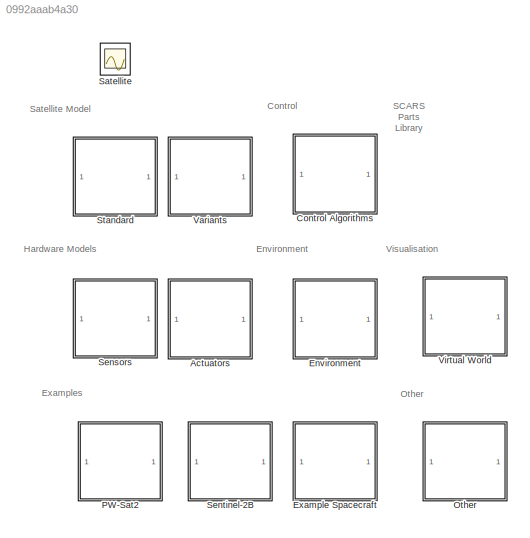
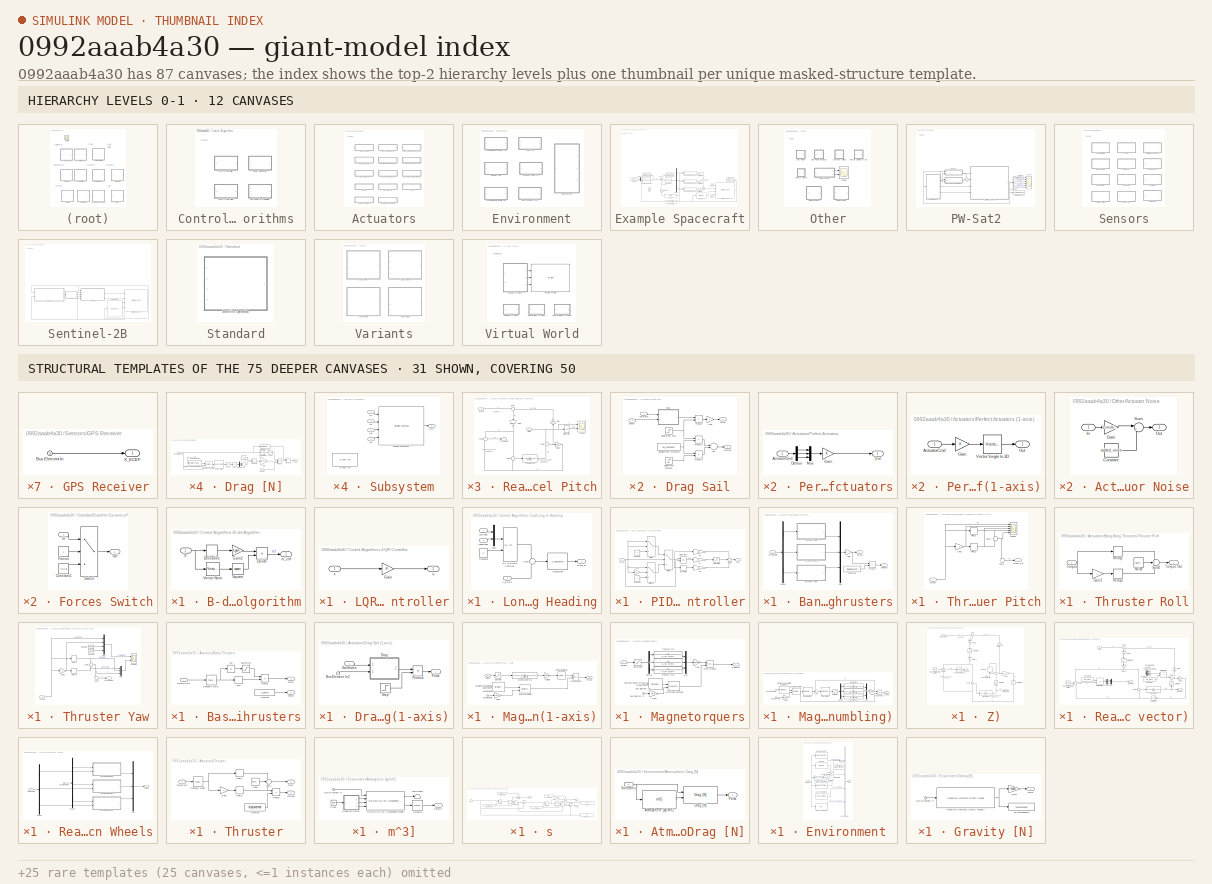
[diagram: thumbnail index - top-2 hierarchy levels (12 canvases) + 31 structural-template representatives of the remaining 75 canvases]
MODEL slx_0992aaab4a30
KIND library
CONFIG AbsTol = auto
CONFIG EnableMultiTasking = off
CONFIG FixedStep = auto
CONFIG MaxStep = auto
CONFIG MinStep = auto
CONFIG RelTol = 1e-3
CONFIG SampleTimeConstraint = Unconstrained
CONFIG Solver = VariableStepAuto
CONFIG SolverName = VariableStepAuto
CONFIG StartTime = 0.0
CONFIG StopTime = 10.0
BLOCK [SubSystem]  Control Algorithms 
  Ports = []
  RequestExecContextInheritance = off
BLOCK [SubSystem]  Control Algorithms /B-dot Algorithm
  Ports = [1, 1]
  RequestExecContextInheritance = off
BLOCK [Inport]  Control Algorithms /B-dot Algorithm/B
  IconDisplay = Port number
BLOCK [Derivative]  Control Algorithms /B-dot Algorithm/Derivative
BLOCK [Product]  Control Algorithms /B-dot Algorithm/Divide
  InputSameDT = off
  Inputs = */
  OutDataTypeStr = Inherit: Inherit via internal rule
  Ports = [2, 1]
  RndMeth = Floor
  SaturateOnIntegerOverflow = off
BLOCK [Gain]  Control Algorithms /B-dot Algorithm/Gain2
  Gain = k_gain
  OutDataTypeStr = Inherit: Inherit via internal rule
  ParamDataTypeStr = Inherit: Inherit via internal rule
  SaturateOnIntegerOverflow = off
BLOCK [Math]  Control Algorithms /B-dot Algorithm/Square
  Operator = square
  Ports = [1, 1]
  SignedPower = off
BLOCK [Reference]  Control Algorithms /B-dot Algorithm/Vector Norm  REF=$bdroot/Other/Vector Norm
  Ports = [1, 1]
  SourceBlock = $bdroot/Other/Vector Norm
  SourceType = SubSystem
BLOCK [Outport]  Control Algorithms /B-dot Algorithm/m_ctrl
  IconDisplay = Port number
BLOCK [SubSystem]  Control Algorithms /LQR Controller
  Ports = [1, 1]
  RequestExecContextInheritance = off
BLOCK [Gain]  Control Algorithms /LQR Controller/Gain
  Gain = -K
  Multiplication = Matrix(K*u)
  OutDataTypeStr = Inherit: Inherit via internal rule
  ParamDataTypeStr = Inherit: Inherit via internal rule
  SaturateOnIntegerOverflow = off
BLOCK [Outport]  Control Algorithms /LQR Controller/u
  IconDisplay = Port number
BLOCK [Inport]  Control Algorithms /LQR Controller/x
  IconDisplay = Port number
BLOCK [SubSystem]  Control Algorithms /Lat//Long to Heading
  Ports = [3, 1]
  RequestExecContextInheritance = off
BLOCK [Constant]  Control Algorithms /Lat//Long to Heading/Constant
  Value = 0
BLOCK [Outport]  Control Algorithms /Lat//Long to Heading/Euler_B
  IconDisplay = Port number
BLOCK [Reference]  Control Algorithms /Lat//Long to Heading/LLA to ECEF Position  REF=aerolibtransform2/LLA to ECEF Position
  Ports = [2, 1]
  SourceBlock = aerolibtransform2/LLA to ECEF Position
  SourceProductBaseCode = AE
  SourceProductName = Aerospace Blockset
  SourceType = LLA to ECEF
BLOCK [Inport]  Control Algorithms /Lat//Long to Heading/Latitude
  IconDisplay = Port number
BLOCK [Inport]  Control Algorithms /Lat//Long to Heading/Longitude
  IconDisplay = Port number
  Port = 2
BLOCK [Mux]  Control Algorithms /Lat//Long to Heading/Mux
  DisplayOption = bar
  Inputs = 2
  Ports = [2, 1]
BLOCK [Reference]  Control Algorithms /Lat//Long to Heading/Subsystem  REF=$bdroot/Other/Subsystem
  Ports = [1, 1]
  SourceBlock = $bdroot/Other/Subsystem
  SourceType = SubSystem
BLOCK [Sum]  Control Algorithms /Lat//Long to Heading/Sum
  IconShape = round
  InputSameDT = off
  Inputs = -|+
  OutDataTypeStr = Inherit: Inherit via internal rule
  Ports = [2, 1]
  SaturateOnIntegerOverflow = off
BLOCK [Inport]  Control Algorithms /Lat//Long to Heading/X_ECEF
  IconDisplay = Port number
  Port = 3
BLOCK [SubSystem]  Control Algorithms /PID Controller
  Ports = [1, 1]
  RequestExecContextInheritance = off
BLOCK [Constant]  Control Algorithms /PID Controller/Constant
  Value = 0
BLOCK [Constant]  Control Algorithms /PID Controller/Constant1
  Value = 0
BLOCK [Derivative]  Control Algorithms /PID Controller/Derivative
BLOCK [Inport]  Control Algorithms /PID Controller/Error
  IconDisplay = Port number
BLOCK [Gain]  Control Algorithms /PID Controller/Gain
  Gain = -1
  OutDataTypeStr = Inherit: Inherit via internal rule
  ParamDataTypeStr = Inherit: Inherit via internal rule
  SaturateOnIntegerOverflow = off
BLOCK [Integrator]  Control Algorithms /PID Controller/Integrator2
  ExternalReset = either
  Ports = [2, 1]
BLOCK [Gain]  Control Algorithms /PID Controller/Kd
  Gain = Kd
  OutDataTypeStr = Inherit: Inherit via internal rule
  ParamDataTypeStr = Inherit: Inherit via internal rule
  SaturateOnIntegerOverflow = off
BLOCK [Gain]  Control Algorithms /PID Controller/Ki
  Gain = Ki
  OutDataTypeStr = Inherit: Inherit via internal rule
  ParamDataTypeStr = Inherit: Inherit via internal rule
  SaturateOnIntegerOverflow = off
BLOCK [Gain]  Control Algorithms /PID Controller/Kp
  Gain = Kp
  OutDataTypeStr = Inherit: Inherit via internal rule
  ParamDataTypeStr = Inherit: Inherit via internal rule
  SaturateOnIntegerOverflow = off
BLOCK [Outport]  Control Algorithms /PID Controller/Out
  IconDisplay = Port number
BLOCK [Saturate]  Control Algorithms /PID Controller/Saturation
  InputPortMap = u0
  LowerLimit = -0.1
  Ports = [1, 1]
  UpperLimit = 0.1
BLOCK [Sum]  Control Algorithms /PID Controller/Sum4
  IconShape = round
  InputSameDT = off
  Inputs = +++
  OutDataTypeStr = Inherit: Inherit via internal rule
  Ports = [3, 1]
  SaturateOnIntegerOverflow = off
BLOCK [Switch]  Control Algorithms /PID Controller/Switch
  Criteria = u2 > Threshold
  InputSameDT = off
  SaturateOnIntegerOverflow = off
  Threshold = pid_dz_max
BLOCK [Switch]  Control Algorithms /PID Controller/Switch1
  InputSameDT = off
  SaturateOnIntegerOverflow = off
  Threshold = pid_dz_max
BLOCK [Switch]  Control Algorithms /PID Controller/Switch2
  Criteria = u2 > Threshold
  InputSameDT = off
  SaturateOnIntegerOverflow = off
  Threshold = -pid_dz_min
BLOCK [SubSystem] Actuators
  Ports = []
  RequestExecContextInheritance = off
BLOCK [SubSystem] Actuators/Bang-Bang Thrusters
  Ports = [1, 2]
  RequestExecContextInheritance = off
BLOCK [Constant] Actuators/Bang-Bang Thrusters/Constant
  Value = displacement
BLOCK [Demux] Actuators/Bang-Bang Thrusters/Demux
  DisplayOption = bar
  Outputs = 3
  Ports = [1, 3]
BLOCK [Gain] Actuators/Bang-Bang Thrusters/Gain
  Gain = -1
  OutDataTypeStr = Inherit: Inherit via internal rule
  ParamDataTypeStr = Inherit: Inherit via internal rule
  SaturateOnIntegerOverflow = off
BLOCK [Outport] Actuators/Bang-Bang Thrusters/Moments
  IconDisplay = Port number
  Port = 2
  VectorParamsAs1DForOutWhenUnconnected = off
BLOCK [Mux] Actuators/Bang-Bang Thrusters/Mux
  DisplayOption = bar
  Inputs = 3
  Ports = [3, 1]
BLOCK [Product] Actuators/Bang-Bang Thrusters/Product
  InputSameDT = off
  OutDataTypeStr = Inherit: Inherit via internal rule
  Ports = [2, 1]
  RndMeth = Floor
  SaturateOnIntegerOverflow = off
BLOCK [SubSystem] Actuators/Bang-Bang Thrusters/Thruster Pitch
  Ports = [1, 1]
  RequestExecContextInheritance = off
BLOCK [Gain] Actuators/Bang-Bang Thrusters/Thruster Pitch/Gain2
  Gain = -1
  OutDataTypeStr = Inherit: Inherit via internal rule
  ParamDataTypeStr = Inherit: Inherit via internal rule
  SaturateOnIntegerOverflow = off
BLOCK [Relay] Actuators/Bang-Bang Thrusters/Thruster Pitch/Relay1
  OffSwitchValue = bb.a0
  OnOutputValue = bb.thrust
  OnSwitchValue = bb.a1
BLOCK [Relay] Actuators/Bang-Bang Thrusters/Thruster Pitch/Relay2
  OffSwitchValue = bb.a0
  OnOutputValue = -bb.thrust
  OnSwitchValue = bb.a1
BLOCK [Scope] Actuators/Bang-Bang Thrusters/Thruster Pitch/Scope1
  Floating = off
  NumInputPorts = 5
  Ports = [5]
  ScopeSpecificationString = Simulink.scopes.TimeScopeBlockCfg('CurrentConfiguration', extmgr.ConfigurationSet(extmgr.Configuration('Core','General UI',true),extmgr.Configuration('Core','Source UI',true),extmgr.Configuration('Sources','WiredSimulink',true,'DataLoggingVariableName','ScopeData2'),extmgr.Configuration('Visuals','Time Domain',true,'SerializedDisplays',{struct('MinYLimReal','-5012.5','MaxYLimReal','5012.5','YLabel...<+1494ch>
BLOCK [Sum] Actuators/Bang-Bang Thrusters/Thruster Pitch/Sum1
  IconShape = round
  InputSameDT = off
  Inputs = -|-
  OutDataTypeStr = Inherit: Inherit via internal rule
  Ports = [2, 1]
  SaturateOnIntegerOverflow = off
BLOCK [Sum] Actuators/Bang-Bang Thrusters/Thruster Pitch/Sum2
  IconShape = round
  InputSameDT = off
  Inputs = +|+
  OutDataTypeStr = Inherit: Inherit via internal rule
  Ports = [2, 1]
  SaturateOnIntegerOverflow = off
BLOCK [Inport] Actuators/Bang-Bang Thrusters/Thruster Pitch/Torque
  IconDisplay = Port number
BLOCK [Outport] Actuators/Bang-Bang Thrusters/Thruster Pitch/Torque Out
  IconDisplay = Port number
BLOCK [SubSystem] Actuators/Bang-Bang Thrusters/Thruster Roll
  Ports = [1, 1]
  RequestExecContextInheritance = off
BLOCK [Gain] Actuators/Bang-Bang Thrusters/Thruster Roll/Gain2
  Gain = -1
  OutDataTypeStr = Inherit: Inherit via internal rule
  ParamDataTypeStr = Inherit: Inherit via internal rule
  SaturateOnIntegerOverflow = off
BLOCK [Reference] Actuators/Bang-Bang Thrusters/Thruster Roll/Noise  REF=simulink/Sources/Band-Limited
White Noise
  Ports = [0, 1]
  SourceBlock = simulink/Sources/Band-Limited\nWhite Noise
  SourceProductBaseCode = SL
  SourceProductName = Simulink
  SourceType = Band-Limited White Noise.
BLOCK [Relay] Actuators/Bang-Bang Thrusters/Thruster Roll/Relay1
  OffSwitchValue = bb.a0
  OnOutputValue = bb.thrust
  OnSwitchValue = bb.a1
BLOCK [Relay] Actuators/Bang-Bang Thrusters/Thruster Roll/Relay2
  OffSwitchValue = bb.a0
  OnOutputValue = -bb.thrust
  OnSwitchValue = bb.a1
BLOCK [Sum] Actuators/Bang-Bang Thrusters/Thruster Roll/Sum2
  IconShape = round
  InputSameDT = off
  Inputs = +++
  OutDataTypeStr = Inherit: Inherit via internal rule
  Ports = [3, 1]
  SaturateOnIntegerOverflow = off
BLOCK [Inport] Actuators/Bang-Bang Thrusters/Thruster Roll/Torque
  IconDisplay = Port number
BLOCK [Outport] Actuators/Bang-Bang Thrusters/Thruster Roll/Torque Out
  IconDisplay = Port number
BLOCK [SubSystem] Actuators/Bang-Bang Thrusters/Thruster Yaw
  Ports = [1, 1]
  RequestExecContextInheritance = off
BLOCK [Constant] Actuators/Bang-Bang Thrusters/Thruster Yaw/Constant
  Value = bb.a0
BLOCK [Constant] Actuators/Bang-Bang Thrusters/Thruster Yaw/Constant1
  Value = bb.a1
BLOCK [Gain] Actuators/Bang-Bang Thrusters/Thruster Yaw/Gain2
  Gain = -1
  OutDataTypeStr = Inherit: Inherit via internal rule
  ParamDataTypeStr = Inherit: Inherit via internal rule
  SaturateOnIntegerOverflow = off
BLOCK [Mux] Actuators/Bang-Bang Thrusters/Thruster Yaw/Mux
  DisplayOption = bar
  Inputs = 3
  Ports = [3, 1]
BLOCK [Mux] Actuators/Bang-Bang Thrusters/Thruster Yaw/Mux1
  DisplayOption = bar
  Ports = [4, 1]
BLOCK [Relay] Actuators/Bang-Bang Thrusters/Thruster Yaw/Relay1
  OffSwitchValue = bb.a0
  OnOutputValue = bb.thrust
  OnSwitchValue = bb.a1
BLOCK [Relay] Actuators/Bang-Bang Thrusters/Thruster Yaw/Relay2
  OffSwitchValue = bb.a0
  OnOutputValue = -bb.thrust
  OnSwitchValue = bb.a1
BLOCK [Scope] Actuators/Bang-Bang Thrusters/Thruster Yaw/Scope1
  Floating = off
  NumInputPorts = 2
  Ports = [2]
  ScopeSpecificationString = Simulink.scopes.TimeScopeBlockCfg('CurrentConfiguration', extmgr.ConfigurationSet(extmgr.Configuration('Core','General UI',true),extmgr.Configuration('Core','Source UI',true),extmgr.Configuration('Sources','WiredSimulink',true,'DataLoggingVariableName','ScopeData2'),extmgr.Configuration('Visuals','Time Domain',true,'SerializedDisplays',{struct('MinYLimReal','-1.21674','MaxYLimReal','1.21674','YLab...<+2355ch>
BLOCK [Sum] Actuators/Bang-Bang Thrusters/Thruster Yaw/Sum1
  IconShape = round
  InputSameDT = off
  Inputs = -|-
  OutDataTypeStr = Inherit: Inherit via internal rule
  Ports = [2, 1]
  SaturateOnIntegerOverflow = off
BLOCK [Sum] Actuators/Bang-Bang Thrusters/Thruster Yaw/Sum2
  IconShape = round
  InputSameDT = off
  Inputs = +|+
  OutDataTypeStr = Inherit: Inherit via internal rule
  Ports = [2, 1]
  SaturateOnIntegerOverflow = off
BLOCK [Inport] Actuators/Bang-Bang Thrusters/Thruster Yaw/Torque
  IconDisplay = Port number
BLOCK [Outport] Actuators/Bang-Bang Thrusters/Thruster Yaw/Torque Out
  IconDisplay = Port number
BLOCK [Outport] Actuators/Bang-Bang Thrusters/Torque
  IconDisplay = Port number
  VectorParamsAs1DForOutWhenUnconnected = off
BLOCK [Inport] Actuators/Bang-Bang Thrusters/TorqueCmd
  IconDisplay = Port number
BLOCK [SubSystem] Actuators/Basic Thrusters
  Ports = [1, 2]
  RequestExecContextInheritance = off
BLOCK [Abs] Actuators/Basic Thrusters/Abs
  SaturateOnIntegerOverflow = off
BLOCK [Inport] Actuators/Basic Thrusters/ActuatorCmd
  IconDisplay = Port number
BLOCK [Constant] Actuators/Basic Thrusters/Constant
  Value = t_power
BLOCK [Outport] Actuators/Basic Thrusters/Force
  IconDisplay = Port number
BLOCK [Outport] Actuators/Basic Thrusters/Power
  IconDisplay = Port number
  Port = 2
BLOCK [Product] Actuators/Basic Thrusters/Product
  InputSameDT = off
  OutDataTypeStr = Inherit: Inherit via internal rule
  Ports = [2, 1]
  RndMeth = Floor
  SaturateOnIntegerOverflow = off
BLOCK [Saturate] Actuators/Basic Thrusters/Saturation
  InputPortMap = u0
  LowerLimit = thrust_min
  Ports = [1, 1]
  UpperLimit = thrust_max
BLOCK [Signum] Actuators/Basic Thrusters/Sign
BLOCK [TransportDelay] Actuators/Basic Thrusters/Transport Delay
  DelayTime = delay
  Ports = [1, 1]
BLOCK [SubSystem] Actuators/Drag Sail
  Ports = [2, 2]
  RequestExecContextInheritance = off
BLOCK [SubSystem] Actuators/Drag Sail (1-axis)
  Ports = [2, 1]
  RequestExecContextInheritance = off
BLOCK [Inport] Actuators/Drag Sail (1-axis)/Bus Element In2
  IconDisplay = Port number
  Port = 2
BLOCK [SubSystem] Actuators/Drag Sail (1-axis)/Drag 
  Ports = [2, 1]
  RequestExecContextInheritance = off
BLOCK [Abs] Actuators/Drag Sail (1-axis)/Drag /Abs
  SaturateOnIntegerOverflow = off
BLOCK [Sum] Actuators/Drag Sail (1-axis)/Drag /Add
  InputSameDT = off
  Inputs = +++
  OutDataTypeStr = Inherit: Inherit via internal rule
  Ports = [3, 1]
  SaturateOnIntegerOverflow = off
BLOCK [Inport] Actuators/Drag Sail (1-axis)/Drag /Bus Element In
  IconDisplay = Port number
BLOCK [Inport] Actuators/Drag Sail (1-axis)/Drag /Bus Element In1
  IconDisplay = Port number
BLOCK [Constant] Actuators/Drag Sail (1-axis)/Drag /Constant1
  Value = [A_x, A_y, A_z]
BLOCK [Trigonometry] Actuators/Drag Sail (1-axis)/Drag /Cos
  Operator = cos
  Ports = [1, 1]
BLOCK [Demux] Actuators/Drag Sail (1-axis)/Drag /Demux
  DisplayOption = bar
  Outputs = 3
  Ports = [1, 3]
BLOCK [Inport] Actuators/Drag Sail (1-axis)/Drag /Density
  IconDisplay = Port number
  Port = 2
BLOCK [Outport] Actuators/Drag Sail (1-axis)/Drag /Force
  IconDisplay = Port number
BLOCK [Gain] Actuators/Drag Sail (1-axis)/Drag /Gain
  Gain = -1/2*C_d
  OutDataTypeStr = Inherit: Inherit via internal rule
  ParamDataTypeStr = Inherit: Inherit via internal rule
  SaturateOnIntegerOverflow = off
BLOCK [Reference] Actuators/Drag Sail (1-axis)/Drag /Normalize Vector  REF=vrlib/Utilities/Normalize Vector
  Ports = [1, 1]
  SourceBlock = vrlib/Utilities/Normalize Vector
  SourceProductBaseCode = SL
  SourceProductName = Simulink
  SourceType = Normalize Vector
BLOCK [Product] Actuators/Drag Sail (1-axis)/Drag /Product
  InputSameDT = off
  Inputs = 3
  OutDataTypeStr = Inherit: Inherit via internal rule
  Ports = [3, 1]
  RndMeth = Floor
  SaturateOnIntegerOverflow = off
BLOCK [Product] Actuators/Drag Sail (1-axis)/Drag /Product1
  InputSameDT = off
  OutDataTypeStr = Inherit: Inherit via internal rule
  Ports = [2, 1]
  RndMeth = Floor
  SaturateOnIntegerOverflow = off
BLOCK [Product] Actuators/Drag Sail (1-axis)/Drag /Product2
  InputSameDT = off
  OutDataTypeStr = Inherit: Inherit via internal rule
  Ports = [2, 1]
  RndMeth = Floor
  SaturateOnIntegerOverflow = off
BLOCK [Reference] Actuators/Drag Sail (1-axis)/Drag /Quaternion Rotation  REF=aerolibutil/Quaternion
Rotation
  Ports = [2, 1]
  SourceBlock = aerolibutil/Quaternion\nRotation
  SourceProductBaseCode = AE
  SourceProductName = Aerospace Blockset
  SourceType = Quaternion Rotation
BLOCK [Reference] Actuators/Drag Sail (1-axis)/Drag /Rotation Angles to Quaternions  REF=sharedtransform/Rotation Angles to Quaternions
  AttributesFormatString = Rotation Order: %<rotationOrder>
  Ports = [1, 1]
  SourceBlock = sharedtransform/Rotation Angles to Quaternions
  SourceProductBaseCode = AE
  SourceProductName = Aerospace Blockset
  SourceType = Ang2Quat
BLOCK [Math] Actuators/Drag Sail (1-axis)/Drag /Square
  Operator = square
  Ports = [1, 1]
  SignedPower = off
BLOCK [Reference] Actuators/Drag Sail (1-axis)/Drag /Subsystem  REF=$bdroot/Subsystem
  Ports = [1, 1]
  SourceBlock = $bdroot/Subsystem
  SourceType = SubSystem
BLOCK [Reference] Actuators/Drag Sail (1-axis)/Drag /Vector Norm  REF=$bdroot/Vector Norm
  Ports = [1, 1]
  SourceBlock = $bdroot/Vector Norm
  SourceType = SubSystem
BLOCK [Outport] Actuators/Drag Sail (1-axis)/Force
  IconDisplay = Port number
BLOCK [Product] Actuators/Drag Sail (1-axis)/Product
  InputSameDT = off
  OutDataTypeStr = Inherit: Inherit via internal rule
  Ports = [2, 1]
  RndMeth = Floor
  SaturateOnIntegerOverflow = off
BLOCK [Inport] Actuators/Drag Sail (1-axis)/SatStates
  IconDisplay = Port number
BLOCK [Step] Actuators/Drag Sail (1-axis)/Step
  SampleTime = 0
  Time = 5*24*60*60
BLOCK [Sum] Actuators/Drag Sail/Add
  InputSameDT = off
  OutDataTypeStr = Inherit: Inherit via internal rule
  Ports = [2, 1]
  SaturateOnIntegerOverflow = off
BLOCK [Inport] Actuators/Drag Sail/Density
  IconDisplay = Port number
  Port = 2
BLOCK [Step] Actuators/Drag Sail/Deployment Duration
  After = -1
  SampleTime = 0
  Time = ds_time+ds_duration
BLOCK [Step] Actuators/Drag Sail/Deployment Time
  SampleTime = 0
  Time = ds_time
BLOCK [Constant] Actuators/Drag Sail/Depoloyment Moments
  Value = ds_moments
BLOCK [SubSystem] Actuators/Drag Sail/Drag 
  Ports = [2, 1]
  RequestExecContextInheritance = off
BLOCK [Abs] Actuators/Drag Sail/Drag /Abs
  SaturateOnIntegerOverflow = off
BLOCK [Sum] Actuators/Drag Sail/Drag /Add
  InputSameDT = off
  Inputs = +++
  OutDataTypeStr = Inherit: Inherit via internal rule
  Ports = [3, 1]
  SaturateOnIntegerOverflow = off
BLOCK [Inport] Actuators/Drag Sail/Drag /Bus Element In
  IconDisplay = Port number
BLOCK [Inport] Actuators/Drag Sail/Drag /Bus Element In1
  IconDisplay = Port number
BLOCK [Constant] Actuators/Drag Sail/Drag /Constant1
  Value = area_vector
BLOCK [Trigonometry] Actuators/Drag Sail/Drag /Cos
  Operator = cos
  Ports = [1, 1]
BLOCK [Demux] Actuators/Drag Sail/Drag /Demux
  DisplayOption = bar
  Outputs = 3
  Ports = [1, 3]
BLOCK [Inport] Actuators/Drag Sail/Drag /Density
  IconDisplay = Port number
  Port = 2
BLOCK [Outport] Actuators/Drag Sail/Drag /Force
  IconDisplay = Port number
BLOCK [Gain] Actuators/Drag Sail/Drag /Gain
  Gain = -1/2*C_d
  OutDataTypeStr = Inherit: Inherit via internal rule
  ParamDataTypeStr = Inherit: Inherit via internal rule
  SaturateOnIntegerOverflow = off
BLOCK [Reference] Actuators/Drag Sail/Drag /Normalize Vector  REF=vrlib/Utilities/Normalize Vector
  Ports = [1, 1]
  SourceBlock = vrlib/Utilities/Normalize Vector
  SourceProductBaseCode = SL
  SourceProductName = Simulink
  SourceType = Normalize Vector
BLOCK [Product] Actuators/Drag Sail/Drag /Product
  InputSameDT = off
  Inputs = 3
  OutDataTypeStr = Inherit: Inherit via internal rule
  Ports = [3, 1]
  RndMeth = Floor
  SaturateOnIntegerOverflow = off
BLOCK [Product] Actuators/Drag Sail/Drag /Product1
  InputSameDT = off
  OutDataTypeStr = Inherit: Inherit via internal rule
  Ports = [2, 1]
  RndMeth = Floor
  SaturateOnIntegerOverflow = off
BLOCK [Product] Actuators/Drag Sail/Drag /Product2
  InputSameDT = off
  OutDataTypeStr = Inherit: Inherit via internal rule
  Ports = [2, 1]
  RndMeth = Floor
  SaturateOnIntegerOverflow = off
BLOCK [Reference] Actuators/Drag Sail/Drag /Quaternion Rotation  REF=aerolibutil/Quaternion
Rotation
  Ports = [2, 1]
  SourceBlock = aerolibutil/Quaternion\nRotation
  SourceProductBaseCode = AE
  SourceProductName = Aerospace Blockset
  SourceType = Quaternion Rotation
BLOCK [Reference] Actuators/Drag Sail/Drag /Rotation Angles to Quaternions  REF=sharedtransform/Rotation Angles to Quaternions
  AttributesFormatString = Rotation Order: %<rotationOrder>
  Ports = [1, 1]
  SourceBlock = sharedtransform/Rotation Angles to Quaternions
  SourceProductBaseCode = AE
  SourceProductName = Aerospace Blockset
  SourceType = Ang2Quat
BLOCK [Math] Actuators/Drag Sail/Drag /Square
  Operator = square
  Ports = [1, 1]
  SignedPower = off
BLOCK [Reference] Actuators/Drag Sail/Drag /Subsystem  REF=$bdroot/Subsystem
  Ports = [1, 1]
  SourceBlock = $bdroot/Subsystem
  SourceType = SubSystem
BLOCK [Reference] Actuators/Drag Sail/Drag /Vector Norm  REF=$bdroot/Vector Norm
  Ports = [1, 1]
  SourceBlock = $bdroot/Vector Norm
  SourceType = SubSystem
BLOCK [Outport] Actuators/Drag Sail/Force
  IconDisplay = Port number
BLOCK [Gain] Actuators/Drag Sail/Gain
  OutDataTypeStr = Inherit: Inherit via internal rule
  ParamDataTypeStr = Inherit: Inherit via internal rule
  SaturateOnIntegerOverflow = off
BLOCK [Outport] Actuators/Drag Sail/Moment
  IconDisplay = Port number
  Port = 2
BLOCK [Product] Actuators/Drag Sail/Product
  InputSameDT = off
  OutDataTypeStr = Inherit: Inherit via internal rule
  Ports = [2, 1]
  RndMeth = Floor
  SaturateOnIntegerOverflow = off
BLOCK [Product] Actuators/Drag Sail/Product1
  InputSameDT = off
  OutDataTypeStr = Inherit: Inherit via internal rule
  Ports = [2, 1]
  RndMeth = Floor
  SaturateOnIntegerOverflow = off
BLOCK [Product] Actuators/Drag Sail/Product3
  InputSameDT = off
  OutDataTypeStr = Inherit: Inherit via internal rule
  Ports = [2, 1]
  RndMeth = Floor
  SaturateOnIntegerOverflow = off
BLOCK [Inport] Actuators/Drag Sail/SatStates
  IconDisplay = Port number
BLOCK [SubSystem] Actuators/Magnetorquer (1-axis)
  Ports = [3, 1]
  RequestExecContextInheritance = off
BLOCK [Gain] Actuators/Magnetorquer (1-axis)/ Coil Gain
  Gain = mt_gain
  OutDataTypeStr = Inherit: Inherit via internal rule
  ParamDataTypeStr = Inherit: Inherit via internal rule
  SaturateOnIntegerOverflow = off
BLOCK [Inport] Actuators/Magnetorquer (1-axis)/Bus Element In
  IconDisplay = Port number
  Port = 2
BLOCK [Inport] Actuators/Magnetorquer (1-axis)/Bus Element In1
  IconDisplay = Port number
  Port = 3
BLOCK [TransferFcn] Actuators/Magnetorquer (1-axis)/Circuit Transfer Fcn
  Denominator = [L_mt R_mt]
BLOCK [Reference] Actuators/Magnetorquer (1-axis)/Cross Product  REF=vrlib/Utilities/Cross Product
  Ports = [2, 1]
  SourceBlock = vrlib/Utilities/Cross Product
  SourceProductBaseCode = SL
  SourceProductName = Simulink
  SourceType = Cross Product
BLOCK [Reference] Actuators/Magnetorquer (1-axis)/Direction Cosine Matrix to Quaternions  REF=sharedtransform/Direction Cosine Matrix 
to Quaternions
  Ports = [1, 1]
  SourceBlock = sharedtransform/Direction Cosine Matrix \nto Quaternions
  SourceProductBaseCode = AE
  SourceProductName = Aerospace Blockset
  SourceType = DCM2Quaternion
BLOCK [Gain] Actuators/Magnetorquer (1-axis)/Gain1
  Gain = 1e-9
  OutDataTypeStr = Inherit: Inherit via internal rule
  ParamDataTypeStr = Inherit: Inherit via internal rule
  SaturateOnIntegerOverflow = off
BLOCK [Reference] Actuators/Magnetorquer (1-axis)/Quaternion Rotation  REF=aerolibutil/Quaternion
Rotation
  Ports = [2, 1]
  SourceBlock = aerolibutil/Quaternion\nRotation
  SourceProductBaseCode = AE
  SourceProductName = Aerospace Blockset
  SourceType = Quaternion Rotation
BLOCK [Saturate] Actuators/Magnetorquer (1-axis)/Saturation
  InputPortMap = u0
  LowerLimit = -mag_sat
  Ports = [1, 1]
  UpperLimit = mag_sat
BLOCK [Outport] Actuators/Magnetorquer (1-axis)/Torque
  IconDisplay = Port number
BLOCK [Reference] Actuators/Magnetorquer (1-axis)/Vector Single to 3D   REF=$bdroot/Actuators/Vector Single to 3D 
  Ports = [1, 1]
  SourceBlock = $bdroot/Actuators/Vector Single to 3D
BLOCK [Inport] Actuators/Magnetorquer (1-axis)/Voltage
  IconDisplay = Port number
BLOCK [SubSystem] Actuators/Magnetorquers
  Ports = [3, 1]
  RequestExecContextInheritance = off
BLOCK [SubSystem] Actuators/Magnetorquers (Detumbling)
  Ports = [2, 1]
  RequestExecContextInheritance = off
BLOCK [Reference] Actuators/Magnetorquers (Detumbling)/B-dot Algorithm  REF=$bdroot/ Control Algorithms /B-dot Algorithm
  Ports = [1, 1]
  SourceBlock = $bdroot/ Control Algorithms /B-dot Algorithm
BLOCK [Inport] Actuators/Magnetorquers (Detumbling)/Bus Element In
  IconDisplay = Port number
BLOCK [Inport] Actuators/Magnetorquers (Detumbling)/Bus Element In1
  IconDisplay = Port number
  Port = 2
BLOCK [Reference] Actuators/Magnetorquers (Detumbling)/Cross Product  REF=vrlib/Utilities/Cross Product
  Ports = [2, 1]
  SourceBlock = vrlib/Utilities/Cross Product
  SourceProductBaseCode = SL
  SourceProductName = Simulink
  SourceType = Cross Product
BLOCK [Demux] Actuators/Magnetorquers (Detumbling)/Demux
  DisplayOption = bar
  Outputs = 3
  Ports = [1, 3]
BLOCK [Reference] Actuators/Magnetorquers (Detumbling)/Direction Cosine Matrix to Quaternions  REF=sharedtransform/Direction Cosine Matrix 
to Quaternions
  Ports = [1, 1]
  SourceBlock = sharedtransform/Direction Cosine Matrix \nto Quaternions
  SourceProductBaseCode = AE
  SourceProductName = Aerospace Blockset
  SourceType = DCM2Quaternion
BLOCK [Gain] Actuators/Magnetorquers (Detumbling)/Gain
  Gain = mt_gain
  OutDataTypeStr = Inherit: Inherit via internal rule
  ParamDataTypeStr = Inherit: Inherit via internal rule
  SaturateOnIntegerOverflow = off
BLOCK [Gain] Actuators/Magnetorquers (Detumbling)/Gain1
  Gain = 1e-9
  OutDataTypeStr = Inherit: Inherit via internal rule
  ParamDataTypeStr = Inherit: Inherit via internal rule
  SaturateOnIntegerOverflow = off
BLOCK [Mux] Actuators/Magnetorquers (Detumbling)/Mux
  DisplayOption = bar
  Inputs = 3
  Ports = [3, 1]
BLOCK [Reference] Actuators/Magnetorquers (Detumbling)/PID Controller  REF=$bdroot/ Control Algorithms /PID Controller
  Ports = [1, 1]
  SourceBlock = $bdroot/ Control Algorithms /PID Controller
BLOCK [Reference] Actuators/Magnetorquers (Detumbling)/Quaternion Rotation  REF=aerolibutil/Quaternion
Rotation
  Ports = [2, 1]
  SourceBlock = aerolibutil/Quaternion\nRotation
  SourceProductBaseCode = AE
  SourceProductName = Aerospace Blockset
  SourceType = Quaternion Rotation
BLOCK [Saturate] Actuators/Magnetorquers (Detumbling)/Saturation
  InputPortMap = u0
  LowerLimit = -mag_sat
  Ports = [1, 1]
  UpperLimit = mag_sat
BLOCK [Sum] Actuators/Magnetorquers (Detumbling)/Sum
  IconShape = round
  InputSameDT = off
  Inputs = -+|
  OutDataTypeStr = Inherit: Inherit via internal rule
  Ports = [2, 1]
  SaturateOnIntegerOverflow = off
BLOCK [Outport] Actuators/Magnetorquers (Detumbling)/Torque
  IconDisplay = Port number
BLOCK [TransferFcn] Actuators/Magnetorquers (Detumbling)/Transfer Fcn
  Denominator = [L_mt R_mt]
BLOCK [TransferFcn] Actuators/Magnetorquers (Detumbling)/Transfer Fcn1
  Denominator = [L_mt R_mt]
BLOCK [TransferFcn] Actuators/Magnetorquers (Detumbling)/Transfer Fcn2
  Denominator = [L_mt R_mt]
BLOCK [Inport] Actuators/Magnetorquers/Bus Element In
  IconDisplay = Port number
  Port = 2
BLOCK [Inport] Actuators/Magnetorquers/Bus Element In1
  IconDisplay = Port number
  Port = 3
BLOCK [Reference] Actuators/Magnetorquers/Cross Product  REF=vrlib/Utilities/Cross Product
  Ports = [2, 1]
  SourceBlock = vrlib/Utilities/Cross Product
  SourceProductBaseCode = SL
  SourceProductName = Simulink
  SourceType = Cross Product
BLOCK [Demux] Actuators/Magnetorquers/Demux
  DisplayOption = bar
  Outputs = 3
  Ports = [1, 3]
BLOCK [Reference] Actuators/Magnetorquers/Direction Cosine Matrix to Quaternions  REF=sharedtransform/Direction Cosine Matrix 
to Quaternions
  Ports = [1, 1]
  SourceBlock = sharedtransform/Direction Cosine Matrix \nto Quaternions
  SourceProductBaseCode = AE
  SourceProductName = Aerospace Blockset
  SourceType = DCM2Quaternion
BLOCK [Gain] Actuators/Magnetorquers/Gain
  Gain = mt_gain
  OutDataTypeStr = Inherit: Inherit via internal rule
  ParamDataTypeStr = Inherit: Inherit via internal rule
  SaturateOnIntegerOverflow = off
BLOCK [Gain] Actuators/Magnetorquers/Gain1
  Gain = 1e-9
  OutDataTypeStr = Inherit: Inherit via internal rule
  ParamDataTypeStr = Inherit: Inherit via internal rule
  SaturateOnIntegerOverflow = off
BLOCK [Outport] Actuators/Magnetorquers/Moment
  IconDisplay = Port number
BLOCK [Mux] Actuators/Magnetorquers/Mux
  DisplayOption = bar
  Inputs = 3
  Ports = [3, 1]
BLOCK [Reference] Actuators/Magnetorquers/Quaternion Rotation  REF=aerolibutil/Quaternion
Rotation
  Ports = [2, 1]
  SourceBlock = aerolibutil/Quaternion\nRotation
  SourceProductBaseCode = AE
  SourceProductName = Aerospace Blockset
  SourceType = Quaternion Rotation
BLOCK [Saturate] Actuators/Magnetorquers/Saturation
  InputPortMap = u0
  LowerLimit = -mag_sat
  Ports = [1, 1]
  UpperLimit = mag_sat
BLOCK [TransferFcn] Actuators/Magnetorquers/Transfer Fcn
  Denominator = [L_mt R_mt]
BLOCK [TransferFcn] Actuators/Magnetorquers/Transfer Fcn1
  Denominator = [L_mt R_mt]
BLOCK [TransferFcn] Actuators/Magnetorquers/Transfer Fcn2
  Denominator = [L_mt R_mt]
BLOCK [Inport] Actuators/Magnetorquers/Voltage
  IconDisplay = Port number
BLOCK [SubSystem] Actuators/Perfect Actuators
  Ports = [1, 1]
  RequestExecContextInheritance = off
BLOCK [SubSystem] Actuators/Perfect Actuators (1-axis)
  Ports = [1, 1]
  RequestExecContextInheritance = off
BLOCK [Inport] Actuators/Perfect Actuators (1-axis)/ActuatorCmd
  IconDisplay = Port number
BLOCK [Gain] Actuators/Perfect Actuators (1-axis)/Gain
  OutDataTypeStr = Inherit: Inherit via internal rule
  ParamDataTypeStr = Inherit: Inherit via internal rule
  SaturateOnIntegerOverflow = off
BLOCK [Outport] Actuators/Perfect Actuators (1-axis)/Out
  IconDisplay = Port number
BLOCK [Reference] Actuators/Perfect Actuators (1-axis)/Vector Single to 3D    REF=$bdroot/Actuators/Vector Single to 3D 
  Ports = [1, 1]
  SourceBlock = $bdroot/Actuators/Vector Single to 3D
BLOCK [SubSystem] Actuators/Perfect Actuators (1-axis, vector)
  Ports = [1, 1]
  RequestExecContextInheritance = off
BLOCK [Inport] Actuators/Perfect Actuators (1-axis, vector)/ActuatorCmd
  IconDisplay = Port number
BLOCK [Gain] Actuators/Perfect Actuators (1-axis, vector)/Gain
  OutDataTypeStr = Inherit: Inherit via internal rule
  ParamDataTypeStr = Inherit: Inherit via internal rule
  SaturateOnIntegerOverflow = off
BLOCK [Outport] Actuators/Perfect Actuators (1-axis, vector)/Out
  IconDisplay = Port number
BLOCK [Reference] Actuators/Perfect Actuators (1-axis, vector)/Vector Single to 3D    REF=$bdroot/Actuators/Vector Single to 3D 
  Ports = [1, 1]
  SourceBlock = $bdroot/Actuators/Vector Single to 3D
BLOCK [Inport] Actuators/Perfect Actuators/ActuatorCmd
  IconDisplay = Port number
BLOCK [Demux] Actuators/Perfect Actuators/Demux
  DisplayOption = bar
  Outputs = 3
  Ports = [1, 3]
BLOCK [Gain] Actuators/Perfect Actuators/Gain
  OutDataTypeStr = Inherit: Inherit via internal rule
  ParamDataTypeStr = Inherit: Inherit via internal rule
  SaturateOnIntegerOverflow = off
BLOCK [Mux] Actuators/Perfect Actuators/Mux
  DisplayOption = bar
  Inputs = 3
  Ports = [3, 1]
BLOCK [Outport] Actuators/Perfect Actuators/Out
  IconDisplay = Port number
BLOCK [SubSystem] Actuators/Reaction Wheel (1-axis, X//Y//Z)
  Ports = [2, 2]
  RequestExecContextInheritance = off
BLOCK [Reference] Actuators/Reaction Wheel (1-axis, X//Y//Z)/Band-Limited White Noise  REF=simulink/Sources/Band-Limited
White Noise
  Ports = [0, 1]
  SourceBlock = simulink/Sources/Band-Limited\nWhite Noise
  SourceProductBaseCode = SL
  SourceProductName = Simulink
  SourceType = Band-Limited White Noise.
BLOCK [Inport] Actuators/Reaction Wheel (1-axis, X//Y//Z)/Bus Element In
  IconDisplay = Port number
  Port = 2
BLOCK [Gain] Actuators/Reaction Wheel (1-axis, X//Y//Z)/Gain
  Gain = N
  OutDataTypeStr = Inherit: Inherit via internal rule
  ParamDataTypeStr = Inherit: Inherit via internal rule
  SaturateOnIntegerOverflow = off
BLOCK [Gain] Actuators/Reaction Wheel (1-axis, X//Y//Z)/Gain1
  Gain = 1/R
  OutDataTypeStr = Inherit: Inherit via internal rule
  ParamDataTypeStr = Inherit: Inherit via internal rule
  SaturateOnIntegerOverflow = off
BLOCK [Gain] Actuators/Reaction Wheel (1-axis, X//Y//Z)/Gain2
  Gain = c
  OutDataTypeStr = Inherit: Inherit via internal rule
  ParamDataTypeStr = Inherit: Inherit via internal rule
  SaturateOnIntegerOverflow = off
BLOCK [Gain] Actuators/Reaction Wheel (1-axis, X//Y//Z)/Gain3
  Gain = N
  OutDataTypeStr = Inherit: Inherit via internal rule
  ParamDataTypeStr = Inherit: Inherit via internal rule
  SaturateOnIntegerOverflow = off
BLOCK [Saturate] Actuators/Reaction Wheel (1-axis, X//Y//Z)/Saturation
  InputPortMap = u0
  LowerLimit = -vel_max
  Ports = [1, 1]
  UpperLimit = vel_max
BLOCK [Saturate] Actuators/Reaction Wheel (1-axis, X//Y//Z)/Saturation1
  InputPortMap = u0
  LowerLimit = -torq_max
  Ports = [1, 1]
  UpperLimit = torq_max
BLOCK [Saturate] Actuators/Reaction Wheel (1-axis, X//Y//Z)/Saturation2
  InputPortMap = u0
  LowerLimit = -i_max
  Ports = [1, 1]
  UpperLimit = i_max
BLOCK [Selector] Actuators/Reaction Wheel (1-axis, X//Y//Z)/Selector
  IndexOptions = Index vector (dialog)
  Indices = axis_switch
  InputPortWidth = 3
  OutputSizes = 1
  Ports = [1, 1]
BLOCK [Sum] Actuators/Reaction Wheel (1-axis, X//Y//Z)/Sum
  IconShape = round
  InputSameDT = off
  Inputs = +|-
  OutDataTypeStr = Inherit: Inherit via internal rule
  Ports = [2, 1]
  SaturateOnIntegerOverflow = off
BLOCK [Sum] Actuators/Reaction Wheel (1-axis, X//Y//Z)/Sum1
  IconShape = round
  InputSameDT = off
  Inputs = +++
  OutDataTypeStr = Inherit: Inherit via internal rule
  Ports = [3, 1]
  SaturateOnIntegerOverflow = off
BLOCK [Sum] Actuators/Reaction Wheel (1-axis, X//Y//Z)/Sum2
  IconShape = round
  InputSameDT = off
  Inputs = +|-
  OutDataTypeStr = Inherit: Inherit via internal rule
  Ports = [2, 1]
  SaturateOnIntegerOverflow = off
BLOCK [Sum] Actuators/Reaction Wheel (1-axis, X//Y//Z)/Sum3
  IconShape = round
  InputSameDT = off
  Inputs = -|-
  OutDataTypeStr = Inherit: Inherit via internal rule
  Ports = [2, 1]
  SaturateOnIntegerOverflow = off
BLOCK [Inport] Actuators/Reaction Wheel (1-axis, X//Y//Z)/TorqueCmd
  IconDisplay = Port number
BLOCK [Outport] Actuators/Reaction Wheel (1-axis, X//Y//Z)/TorqueOut
  IconDisplay = Port number
BLOCK [TransferFcn] Actuators/Reaction Wheel (1-axis, X//Y//Z)/Transfer Fcn
  Denominator = [J 0]
BLOCK [Reference] Actuators/Reaction Wheel (1-axis, X//Y//Z)/Vector Single to 3D   REF=$bdroot/Actuators/Vector Single to 3D 
  Ports = [1, 1]
  SourceBlock = $bdroot/Actuators/Vector Single to 3D
BLOCK [Outport] Actuators/Reaction Wheel (1-axis, X//Y//Z)/WheelVel
  IconDisplay = Port number
  Port = 2
BLOCK [SubSystem] Actuators/Reaction Wheel (1-axis, vector)
  Ports = [2, 2]
  RequestExecContextInheritance = off
BLOCK [Reference] Actuators/Reaction Wheel (1-axis, vector)/Band-Limited White Noise  REF=simulink/Sources/Band-Limited
White Noise
  Ports = [0, 1]
  SourceBlock = simulink/Sources/Band-Limited\nWhite Noise
  SourceProductBaseCode = SL
  SourceProductName = Simulink
  SourceType = Band-Limited White Noise.
BLOCK [Inport] Actuators/Reaction Wheel (1-axis, vector)/Bus Element In
  IconDisplay = Port number
  Port = 2
BLOCK [Inport] Actuators/Reaction Wheel (1-axis, vector)/Cmd
  IconDisplay = Port number
BLOCK [Constant] Actuators/Reaction Wheel (1-axis, vector)/Constant
  Value = op_vect'
  VectorParams1D = off
BLOCK [Constant] Actuators/Reaction Wheel (1-axis, vector)/Constant1
  Value = op_vect'
  VectorParams1D = off
BLOCK [Demux] Actuators/Reaction Wheel (1-axis, vector)/Demux
  DisplayOption = bar
  Outputs = 3
  Ports = [1, 3]
BLOCK [Demux] Actuators/Reaction Wheel (1-axis, vector)/Demux1
  DisplayOption = bar
  Outputs = 3
  Ports = [1, 3]
BLOCK [Gain] Actuators/Reaction Wheel (1-axis, vector)/Gain
  Gain = N
  OutDataTypeStr = Inherit: Inherit via internal rule
  ParamDataTypeStr = Inherit: Inherit via internal rule
  SaturateOnIntegerOverflow = off
BLOCK [Gain] Actuators/Reaction Wheel (1-axis, vector)/Gain1
  Gain = 1/R
  OutDataTypeStr = Inherit: Inherit via internal rule
  ParamDataTypeStr = Inherit: Inherit via internal rule
  SaturateOnIntegerOverflow = off
BLOCK [Gain] Actuators/Reaction Wheel (1-axis, vector)/Gain2
  Gain = c
  OutDataTypeStr = Inherit: Inherit via internal rule
  ParamDataTypeStr = Inherit: Inherit via internal rule
  SaturateOnIntegerOverflow = off
BLOCK [Gain] Actuators/Reaction Wheel (1-axis, vector)/Gain3
  Gain = N
  OutDataTypeStr = Inherit: Inherit via internal rule
  ParamDataTypeStr = Inherit: Inherit via internal rule
  SaturateOnIntegerOverflow = off
BLOCK [Product] Actuators/Reaction Wheel (1-axis, vector)/Matrix Multiply
  InputSameDT = off
  Multiplication = Matrix(*)
  OutDataTypeStr = Inherit: Inherit via internal rule
  Ports = [2, 1]
  RndMeth = Floor
  SaturateOnIntegerOverflow = off
BLOCK [Product] Actuators/Reaction Wheel (1-axis, vector)/Matrix Multiply1
  InputSameDT = off
  OutDataTypeStr = Inherit: Inherit via internal rule
  Ports = [2, 1]
  RndMeth = Floor
  SaturateOnIntegerOverflow = off
BLOCK [Outport] Actuators/Reaction Wheel (1-axis, vector)/Moment
  IconDisplay = Port number
BLOCK [Mux] Actuators/Reaction Wheel (1-axis, vector)/Mux
  DisplayOption = bar
  Inputs = 3
  Ports = [3, 1]
BLOCK [Saturate] Actuators/Reaction Wheel (1-axis, vector)/Saturation
  InputPortMap = u0
  LowerLimit = -vel_max
  Ports = [1, 1]
  UpperLimit = vel_max
BLOCK [Saturate] Actuators/Reaction Wheel (1-axis, vector)/Saturation1
  InputPortMap = u0
  LowerLimit = -torq_max
  Ports = [1, 1]
  UpperLimit = torq_max
BLOCK [Saturate] Actuators/Reaction Wheel (1-axis, vector)/Saturation2
  InputPortMap = u0
  LowerLimit = -i_max
  Ports = [1, 1]
  UpperLimit = i_max
BLOCK [Sum] Actuators/Reaction Wheel (1-axis, vector)/Sum
  IconShape = round
  InputSameDT = off
  Inputs = +|-
  OutDataTypeStr = Inherit: Inherit via internal rule
  Ports = [2, 1]
  SaturateOnIntegerOverflow = off
BLOCK [Sum] Actuators/Reaction Wheel (1-axis, vector)/Sum1
  IconShape = round
  InputSameDT = off
  Inputs = +++
  OutDataTypeStr = Inherit: Inherit via internal rule
  Ports = [3, 1]
  SaturateOnIntegerOverflow = off
BLOCK [Sum] Actuators/Reaction Wheel (1-axis, vector)/Sum2
  IconShape = round
  InputSameDT = off
  Inputs = +|-
  OutDataTypeStr = Inherit: Inherit via internal rule
  Ports = [2, 1]
  SaturateOnIntegerOverflow = off
BLOCK [Sum] Actuators/Reaction Wheel (1-axis, vector)/Sum3
  IconShape = round
  InputSameDT = off
  Inputs = -|-
  OutDataTypeStr = Inherit: Inherit via internal rule
  Ports = [2, 1]
  SaturateOnIntegerOverflow = off
BLOCK [TransferFcn] Actuators/Reaction Wheel (1-axis, vector)/Transfer Fcn
  Denominator = [J 0]
BLOCK [Concatenate] Actuators/Reaction Wheel (1-axis, vector)/Vector Concatenate
  NumInputs = 3
  Ports = [3, 1]
BLOCK [Outport] Actuators/Reaction Wheel (1-axis, vector)/WheelVel
  IconDisplay = Port number
  Port = 2
BLOCK [SubSystem] Actuators/Reaction Wheels
  Ports = [2, 1]
  RequestExecContextInheritance = off
BLOCK [Inport] Actuators/Reaction Wheels/Bus Element In
  IconDisplay = Port number
  Port = 2
BLOCK [Demux] Actuators/Reaction Wheels/Demux
  DisplayOption = bar
  Outputs = 3
  Ports = [1, 3]
BLOCK [Demux] Actuators/Reaction Wheels/Demux2
  DisplayOption = bar
  Outputs = 3
  Ports = [1, 3]
BLOCK [Mux] Actuators/Reaction Wheels/Mux
  DisplayOption = bar
  Inputs = 3
  Ports = [3, 1]
BLOCK [SubSystem] Actuators/Reaction Wheels/Reaction Wheel Pitch
  Ports = [2, 1]
  RequestExecContextInheritance = off
BLOCK [Gain] Actuators/Reaction Wheels/Reaction Wheel Pitch/Gain
  Gain = rw.N
  OutDataTypeStr = Inherit: Inherit via internal rule
  ParamDataTypeStr = Inherit: Inherit via internal rule
  SaturateOnIntegerOverflow = off
BLOCK [Gain] Actuators/Reaction Wheels/Reaction Wheel Pitch/Gain1
  Gain = rw.N/rw.R
  OutDataTypeStr = Inherit: Inherit via internal rule
  ParamDataTypeStr = Inherit: Inherit via internal rule
  SaturateOnIntegerOverflow = off
BLOCK [Gain] Actuators/Reaction Wheels/Reaction Wheel Pitch/Gain2
  Gain = -rw.c
  OutDataTypeStr = Inherit: Inherit via internal rule
  ParamDataTypeStr = Inherit: Inherit via internal rule
  SaturateOnIntegerOverflow = off
BLOCK [Integrator] Actuators/Reaction Wheels/Reaction Wheel Pitch/Integrator
  Ports = [1, 1]
BLOCK [Inport] Actuators/Reaction Wheels/Reaction Wheel Pitch/Rate
  IconDisplay = Port number
BLOCK [Scope] Actuators/Reaction Wheels/Reaction Wheel Pitch/Scope
  Floating = off
  NumInputPorts = 2
  Ports = [2]
  ScopeSpecificationString = Simulink.scopes.TimeScopeBlockCfg('CurrentConfiguration', extmgr.ConfigurationSet(extmgr.Configuration('Core','General UI',true),extmgr.Configuration('Core','Source UI',true),extmgr.Configuration('Sources','WiredSimulink',true,'DataLoggingVariableName','ScopeData2'),extmgr.Configuration('Visuals','Time Domain',true,'SerializedDisplays',{struct('MinYLimReal','-0.04089','MaxYLimReal','0.04884','YLab...<+2028ch>
BLOCK [Sum] Actuators/Reaction Wheels/Reaction Wheel Pitch/Sum
  IconShape = round
  InputSameDT = off
  Inputs = +|-
  OutDataTypeStr = Inherit: Inherit via internal rule
  Ports = [2, 1]
  SaturateOnIntegerOverflow = off
BLOCK [Sum] Actuators/Reaction Wheels/Reaction Wheel Pitch/Sum1
  IconShape = round
  InputSameDT = off
  Inputs = +|+
  OutDataTypeStr = Inherit: Inherit via internal rule
  Ports = [2, 1]
  SaturateOnIntegerOverflow = off
BLOCK [Sum] Actuators/Reaction Wheels/Reaction Wheel Pitch/Sum2
  IconShape = round
  InputSameDT = off
  Inputs = +|-
  OutDataTypeStr = Inherit: Inherit via internal rule
  Ports = [2, 1]
  SaturateOnIntegerOverflow = off
BLOCK [Sum] Actuators/Reaction Wheels/Reaction Wheel Pitch/Sum3
  IconShape = round
  InputSameDT = off
  Inputs = -|-
  OutDataTypeStr = Inherit: Inherit via internal rule
  Ports = [2, 1]
  SaturateOnIntegerOverflow = off
BLOCK [Inport] Actuators/Reaction Wheels/Reaction Wheel Pitch/Torque
  IconDisplay = Port number
  Port = 2
BLOCK [Outport] Actuators/Reaction Wheels/Reaction Wheel Pitch/Torque Out
  IconDisplay = Port number
BLOCK [TransferFcn] Actuators/Reaction Wheels/Reaction Wheel Pitch/Transfer Fcn
  Denominator = [rw.J 0]
BLOCK [SubSystem] Actuators/Reaction Wheels/Reaction Wheel Roll
  Ports = [2, 1]
  RequestExecContextInheritance = off
BLOCK [Gain] Actuators/Reaction Wheels/Reaction Wheel Roll/Gain
  Gain = rw.N
  OutDataTypeStr = Inherit: Inherit via internal rule
  ParamDataTypeStr = Inherit: Inherit via internal rule
  SaturateOnIntegerOverflow = off
BLOCK [Gain] Actuators/Reaction Wheels/Reaction Wheel Roll/Gain1
  Gain = rw.N/rw.R
  OutDataTypeStr = Inherit: Inherit via internal rule
  ParamDataTypeStr = Inherit: Inherit via internal rule
  SaturateOnIntegerOverflow = off
BLOCK [Gain] Actuators/Reaction Wheels/Reaction Wheel Roll/Gain2
  Gain = -rw.c
  OutDataTypeStr = Inherit: Inherit via internal rule
  ParamDataTypeStr = Inherit: Inherit via internal rule
  SaturateOnIntegerOverflow = off
BLOCK [Integrator] Actuators/Reaction Wheels/Reaction Wheel Roll/Integrator
  Ports = [1, 1]
BLOCK [Inport] Actuators/Reaction Wheels/Reaction Wheel Roll/Rate
  IconDisplay = Port number
BLOCK [Scope] Actuators/Reaction Wheels/Reaction Wheel Roll/Scope
  Floating = off
  NumInputPorts = 2
  Ports = [2]
  ScopeSpecificationString = Simulink.scopes.TimeScopeBlockCfg('CurrentConfiguration', extmgr.ConfigurationSet(extmgr.Configuration('Core','General UI',true),extmgr.Configuration('Core','Source UI',true),extmgr.Configuration('Sources','WiredSimulink',true,'DataLoggingVariableName','ScopeData1'),extmgr.Configuration('Visuals','Time Domain',true,'SerializedDisplays',{struct('MinYLimReal','-0.04089','MaxYLimReal','0.04884','YLab...<+2028ch>
BLOCK [Sum] Actuators/Reaction Wheels/Reaction Wheel Roll/Sum
  IconShape = round
  InputSameDT = off
  Inputs = +|-
  OutDataTypeStr = Inherit: Inherit via internal rule
  Ports = [2, 1]
  SaturateOnIntegerOverflow = off
BLOCK [Sum] Actuators/Reaction Wheels/Reaction Wheel Roll/Sum1
  IconShape = round
  InputSameDT = off
  Inputs = +|+
  OutDataTypeStr = Inherit: Inherit via internal rule
  Ports = [2, 1]
  SaturateOnIntegerOverflow = off
BLOCK [Sum] Actuators/Reaction Wheels/Reaction Wheel Roll/Sum2
  IconShape = round
  InputSameDT = off
  Inputs = +|-
  OutDataTypeStr = Inherit: Inherit via internal rule
  Ports = [2, 1]
  SaturateOnIntegerOverflow = off
BLOCK [Sum] Actuators/Reaction Wheels/Reaction Wheel Roll/Sum3
  IconShape = round
  InputSameDT = off
  Inputs = -|-
  OutDataTypeStr = Inherit: Inherit via internal rule
  Ports = [2, 1]
  SaturateOnIntegerOverflow = off
BLOCK [Inport] Actuators/Reaction Wheels/Reaction Wheel Roll/Torque
  IconDisplay = Port number
  Port = 2
BLOCK [Outport] Actuators/Reaction Wheels/Reaction Wheel Roll/Torque Out
  IconDisplay = Port number
BLOCK [TransferFcn] Actuators/Reaction Wheels/Reaction Wheel Roll/Transfer Fcn
  Denominator = [rw.J 0]
BLOCK [SubSystem] Actuators/Reaction Wheels/Reaction Wheel Yaw
  Ports = [2, 1]
  RequestExecContextInheritance = off
BLOCK [Gain] Actuators/Reaction Wheels/Reaction Wheel Yaw/Gain
  Gain = rw.N
  OutDataTypeStr = Inherit: Inherit via internal rule
  ParamDataTypeStr = Inherit: Inherit via internal rule
  SaturateOnIntegerOverflow = off
BLOCK [Gain] Actuators/Reaction Wheels/Reaction Wheel Yaw/Gain1
  Gain = rw.N/rw.R
  OutDataTypeStr = Inherit: Inherit via internal rule
  ParamDataTypeStr = Inherit: Inherit via internal rule
  SaturateOnIntegerOverflow = off
BLOCK [Gain] Actuators/Reaction Wheels/Reaction Wheel Yaw/Gain2
  Gain = -rw.c
  OutDataTypeStr = Inherit: Inherit via internal rule
  ParamDataTypeStr = Inherit: Inherit via internal rule
  SaturateOnIntegerOverflow = off
BLOCK [Integrator] Actuators/Reaction Wheels/Reaction Wheel Yaw/Integrator
  Ports = [1, 1]
BLOCK [Inport] Actuators/Reaction Wheels/Reaction Wheel Yaw/Rate
  IconDisplay = Port number
BLOCK [Scope] Actuators/Reaction Wheels/Reaction Wheel Yaw/Scope
  Floating = off
  NumInputPorts = 2
  Ports = [2]
  ScopeSpecificationString = Simulink.scopes.TimeScopeBlockCfg('CurrentConfiguration', extmgr.ConfigurationSet(extmgr.Configuration('Core','General UI',true),extmgr.Configuration('Core','Source UI',true),extmgr.Configuration('Sources','WiredSimulink',true,'DataLoggingVariableName','ScopeData3'),extmgr.Configuration('Visuals','Time Domain',true,'SerializedDisplays',{struct('MinYLimReal','-0.04089','MaxYLimReal','0.04884','YLab...<+2028ch>
BLOCK [Sum] Actuators/Reaction Wheels/Reaction Wheel Yaw/Sum
  IconShape = round
  InputSameDT = off
  Inputs = +|-
  OutDataTypeStr = Inherit: Inherit via internal rule
  Ports = [2, 1]
  SaturateOnIntegerOverflow = off
BLOCK [Sum] Actuators/Reaction Wheels/Reaction Wheel Yaw/Sum1
  IconShape = round
  InputSameDT = off
  Inputs = +|+
  OutDataTypeStr = Inherit: Inherit via internal rule
  Ports = [2, 1]
  SaturateOnIntegerOverflow = off
BLOCK [Sum] Actuators/Reaction Wheels/Reaction Wheel Yaw/Sum2
  IconShape = round
  InputSameDT = off
  Inputs = +|-
  OutDataTypeStr = Inherit: Inherit via internal rule
  Ports = [2, 1]
  SaturateOnIntegerOverflow = off
BLOCK [Sum] Actuators/Reaction Wheels/Reaction Wheel Yaw/Sum3
  IconShape = round
  InputSameDT = off
  Inputs = -|-
  OutDataTypeStr = Inherit: Inherit via internal rule
  Ports = [2, 1]
  SaturateOnIntegerOverflow = off
BLOCK [Inport] Actuators/Reaction Wheels/Reaction Wheel Yaw/Torque
  IconDisplay = Port number
  Port = 2
BLOCK [Outport] Actuators/Reaction Wheels/Reaction Wheel Yaw/Torque Out
  IconDisplay = Port number
BLOCK [TransferFcn] Actuators/Reaction Wheels/Reaction Wheel Yaw/Transfer Fcn
  Denominator = [rw.J 0]
BLOCK [Outport] Actuators/Reaction Wheels/Torque
  IconDisplay = Port number
  VectorParamsAs1DForOutWhenUnconnected = off
BLOCK [Inport] Actuators/Reaction Wheels/TorqueCmd
  IconDisplay = Port number
BLOCK [SubSystem] Actuators/Thruster
  Ports = [1, 2]
  RequestExecContextInheritance = off
BLOCK [Constant] Actuators/Thruster/Constant
  Value = displacement
BLOCK [Outport] Actuators/Thruster/Force
  IconDisplay = Port number
BLOCK [Inport] Actuators/Thruster/ForceCmd
  IconDisplay = Port number
BLOCK [Gain] Actuators/Thruster/Gain2
  Gain = -1
  OutDataTypeStr = Inherit: Inherit via internal rule
  ParamDataTypeStr = Inherit: Inherit via internal rule
  SaturateOnIntegerOverflow = off
BLOCK [Outport] Actuators/Thruster/Moment
  IconDisplay = Port number
  Port = 2
BLOCK [Reference] Actuators/Thruster/Noise  REF=simulink/Sources/Band-Limited
White Noise
  Ports = [0, 1]
  SourceBlock = simulink/Sources/Band-Limited\nWhite Noise
  SourceProductBaseCode = SL
  SourceProductName = Simulink
  SourceType = Band-Limited White Noise.
BLOCK [Product] Actuators/Thruster/Product
  InputSameDT = off
  OutDataTypeStr = Inherit: Inherit via internal rule
  Ports = [2, 1]
  RndMeth = Floor
  SaturateOnIntegerOverflow = off
BLOCK [Relay] Actuators/Thruster/Relay1
  OffSwitchValue = bb.a0
  OnOutputValue = bb.thrust
  OnSwitchValue = bb.a1
BLOCK [Relay] Actuators/Thruster/Relay2
  OffSwitchValue = bb.a0
  OnOutputValue = -bb.thrust
  OnSwitchValue = bb.a1
BLOCK [Sum] Actuators/Thruster/Sum2
  IconShape = round
  InputSameDT = off
  Inputs = +++
  OutDataTypeStr = Inherit: Inherit via internal rule
  Ports = [3, 1]
  SaturateOnIntegerOverflow = off
BLOCK [TransportDelay] Actuators/Thruster/Transport Delay
  DelayTime = delay
  Ports = [1, 1]
BLOCK [SubSystem] Environment
  Ports = []
  RequestExecContextInheritance = off
BLOCK [SubSystem] Environment/Atmosphere [kg//m^3]
  Ports = [1, 1]
  RequestExecContextInheritance = off
BLOCK [Inport] Environment/Atmosphere [kg//m^3]/Bus Element In
  IconDisplay = Port number
BLOCK [Clock] Environment/Atmosphere [kg//m^3]/Clock
  Decimation = 100
BLOCK [SubSystem] Environment/Atmosphere [kg//m^3]/Clock to Y//D//s
  Ports = [1, 3]
  RequestExecContextInheritance = off
BLOCK [Inport] Environment/Atmosphere [kg//m^3]/Clock to Y//D//s/Clock
  IconDisplay = Port number
BLOCK [Constant] Environment/Atmosphere [kg//m^3]/Clock to Y//D//s/Constant2
  Value = initDay
BLOCK [Constant] Environment/Atmosphere [kg//m^3]/Clock to Y//D//s/Constant6
  Value = initYear
BLOCK [Outport] Environment/Atmosphere [kg//m^3]/Clock to Y//D//s/Day
  IconDisplay = Port number
  Port = 2
BLOCK [Display] Environment/Atmosphere [kg//m^3]/Clock to Y//D//s/Display
  Decimation = 1
  Format = long
  Ports = [1]
BLOCK [Display] Environment/Atmosphere [kg//m^3]/Clock to Y//D//s/Display1
  Decimation = 1
  Format = long
  Ports = [1]
BLOCK [Product] Environment/Atmosphere [kg//m^3]/Clock to Y//D//s/Divide
  InputSameDT = off
  Inputs = */
  OutDataTypeStr = Inherit: Inherit via internal rule
  Ports = [2, 1]
  RndMeth = Floor
  SaturateOnIntegerOverflow = off
BLOCK [Product] Environment/Atmosphere [kg//m^3]/Clock to Y//D//s/Divide1
  InputSameDT = off
  Inputs = */
  OutDataTypeStr = Inherit: Inherit via internal rule
  Ports = [2, 1]
  RndMeth = Floor
  SaturateOnIntegerOverflow = off
BLOCK [Product] Environment/Atmosphere [kg//m^3]/Clock to Y//D//s/Product
  InputSameDT = off
  OutDataTypeStr = Inherit: Inherit via internal rule
  Ports = [2, 1]
  RndMeth = Floor
  SaturateOnIntegerOverflow = off
BLOCK [Product] Environment/Atmosphere [kg//m^3]/Clock to Y//D//s/Product1
  InputSameDT = off
  OutDataTypeStr = Inherit: Inherit via internal rule
  Ports = [2, 1]
  RndMeth = Floor
  SaturateOnIntegerOverflow = off
BLOCK [Rounding] Environment/Atmosphere [kg//m^3]/Clock to Y//D//s/Round
BLOCK [Rounding] Environment/Atmosphere [kg//m^3]/Clock to Y//D//s/Round1
BLOCK [Rounding] Environment/Atmosphere [kg//m^3]/Clock to Y//D//s/Round2
  Operator = ceil
BLOCK [Constant] Environment/Atmosphere [kg//m^3]/Clock to Y//D//s/Sec in Day
  Value = 86400
BLOCK [Constant] Environment/Atmosphere [kg//m^3]/Clock to Y//D//s/Sec in Year
  Value = 31556952
BLOCK [Sum] Environment/Atmosphere [kg//m^3]/Clock to Y//D//s/Sum
  IconShape = round
  InputSameDT = off
  Inputs = |-+
  OutDataTypeStr = Inherit: Inherit via internal rule
  Ports = [2, 1]
  SaturateOnIntegerOverflow = off
BLOCK [Sum] Environment/Atmosphere [kg//m^3]/Clock to Y//D//s/Sum1
  IconShape = round
  InputSameDT = off
  Inputs = ++|
  OutDataTypeStr = Inherit: Inherit via internal rule
  Ports = [2, 1]
  SaturateOnIntegerOverflow = off
BLOCK [Sum] Environment/Atmosphere [kg//m^3]/Clock to Y//D//s/Sum2
  IconShape = round
  InputSameDT = off
  Inputs = |--+
  OutDataTypeStr = Inherit: Inherit via internal rule
  Ports = [3, 1]
  SaturateOnIntegerOverflow = off
BLOCK [Sum] Environment/Atmosphere [kg//m^3]/Clock to Y//D//s/Sum3
  IconShape = round
  InputSameDT = off
  Inputs = ++|
  OutDataTypeStr = Inherit: Inherit via internal rule
  Ports = [2, 1]
  SaturateOnIntegerOverflow = off
BLOCK [Outport] Environment/Atmosphere [kg//m^3]/Clock to Y//D//s/Year
  IconDisplay = Port number
BLOCK [Outport] Environment/Atmosphere [kg//m^3]/Clock to Y//D//s/sec
  IconDisplay = Port number
  Port = 3
BLOCK [Outport] Environment/Atmosphere [kg//m^3]/Density
  IconDisplay = Port number
BLOCK [Reference] Environment/Atmosphere [kg//m^3]/NRLMSISE-00 Atmosphere Model   REF=aerolibatmos2/NRLMSISE-00
Atmosphere Model
  Ports = [4, 2]
  SourceBlock = aerolibatmos2/NRLMSISE-00\nAtmosphere Model
  SourceProductBaseCode = AE
  SourceProductName = Aerospace Blockset
  SourceType = NRLMSISE-00 Model
BLOCK [Selector] Environment/Atmosphere [kg//m^3]/Selector 
  IndexOptions = Index vector (dialog)
  Indices = 6
  InputPortWidth = 9
  OutputSizes = 1
  Ports = [1, 1]
BLOCK [Terminator] Environment/Atmosphere [kg//m^3]/Terminator
BLOCK [SubSystem] Environment/Atmospheric Drag [N]
  Ports = [1, 1]
  RequestExecContextInheritance = off
BLOCK [Reference] Environment/Atmospheric Drag [N]/Atmosphere [kg//m^3]  REF=$bdroot/Environment/Atmosphere [kg//m^3]
  Ports = [1, 1]
  SourceBlock = $bdroot/Environment/Atmosphere [kg//m^3]
BLOCK [Reference] Environment/Atmospheric Drag [N]/Drag [N]  REF=$bdroot/Environment/Drag [N]
  Ports = [2, 1]
  SourceBlock = $bdroot/Environment/Drag [N]
BLOCK [Outport] Environment/Atmospheric Drag [N]/Force
  IconDisplay = Port number
BLOCK [Inport] Environment/Atmospheric Drag [N]/SatStates
  IconDisplay = Port number
BLOCK [SubSystem] Environment/Drag [N]
  Ports = [2, 1]
  RequestExecContextInheritance = off
BLOCK [Abs] Environment/Drag [N]/Abs
  SaturateOnIntegerOverflow = off
BLOCK [Sum] Environment/Drag [N]/Add
  InputSameDT = off
  Inputs = +++
  OutDataTypeStr = Inherit: Inherit via internal rule
  Ports = [3, 1]
  SaturateOnIntegerOverflow = off
BLOCK [Inport] Environment/Drag [N]/Bus Element In
  IconDisplay = Port number
BLOCK [Inport] Environment/Drag [N]/Bus Element In1
  IconDisplay = Port number
BLOCK [Constant] Environment/Drag [N]/Constant1
  Value = [A_x, A_y, A_z]
BLOCK [Trigonometry] Environment/Drag [N]/Cos
  Operator = cos
  Ports = [1, 1]
BLOCK [Demux] Environment/Drag [N]/Demux
  DisplayOption = bar
  Outputs = 3
  Ports = [1, 3]
BLOCK [Inport] Environment/Drag [N]/Density
  IconDisplay = Port number
  Port = 2
BLOCK [Outport] Environment/Drag [N]/Force
  IconDisplay = Port number
BLOCK [Gain] Environment/Drag [N]/Gain
  Gain = -1/2*C_d
  OutDataTypeStr = Inherit: Inherit via internal rule
  ParamDataTypeStr = Inherit: Inherit via internal rule
  SaturateOnIntegerOverflow = off
BLOCK [Reference] Environment/Drag [N]/Normalize Vector  REF=vrlib/Utilities/Normalize Vector
  Ports = [1, 1]
  SourceBlock = vrlib/Utilities/Normalize Vector
  SourceProductBaseCode = SL
  SourceProductName = Simulink
  SourceType = Normalize Vector
BLOCK [Product] Environment/Drag [N]/Product
  InputSameDT = off
  Inputs = 3
  OutDataTypeStr = Inherit: Inherit via internal rule
  Ports = [3, 1]
  RndMeth = Floor
  SaturateOnIntegerOverflow = off
BLOCK [Product] Environment/Drag [N]/Product1
  InputSameDT = off
  OutDataTypeStr = Inherit: Inherit via internal rule
  Ports = [2, 1]
  RndMeth = Floor
  SaturateOnIntegerOverflow = off
BLOCK [Product] Environment/Drag [N]/Product2
  InputSameDT = off
  OutDataTypeStr = Inherit: Inherit via internal rule
  Ports = [2, 1]
  RndMeth = Floor
  SaturateOnIntegerOverflow = off
BLOCK [Reference] Environment/Drag [N]/Quaternion Rotation  REF=aerolibutil/Quaternion
Rotation
  Ports = [2, 1]
  SourceBlock = aerolibutil/Quaternion\nRotation
  SourceProductBaseCode = AE
  SourceProductName = Aerospace Blockset
  SourceType = Quaternion Rotation
BLOCK [Reference] Environment/Drag [N]/Rotation Angles to Quaternions  REF=sharedtransform/Rotation Angles to Quaternions
  AttributesFormatString = Rotation Order: %<rotationOrder>
  Ports = [1, 1]
  SourceBlock = sharedtransform/Rotation Angles to Quaternions
  SourceProductBaseCode = AE
  SourceProductName = Aerospace Blockset
  SourceType = Ang2Quat
BLOCK [Math] Environment/Drag [N]/Square
  Operator = square
  Ports = [1, 1]
  SignedPower = off
BLOCK [Reference] Environment/Drag [N]/Subsystem  REF=$bdroot/Subsystem
  Ports = [1, 1]
  SourceBlock = $bdroot/Subsystem
  SourceType = SubSystem
BLOCK [Reference] Environment/Drag [N]/Vector Norm  REF=$bdroot/Vector Norm
  Ports = [1, 1]
  SourceBlock = $bdroot/Vector Norm
  SourceType = SubSystem
BLOCK [SubSystem] Environment/Environment
  Ports = [1, 3]
  RequestExecContextInheritance = off
BLOCK [Reference] Environment/Environment/Atmosphere [kg//m^3]  REF=$bdroot/Environment/Atmosphere [kg//m^3]
  Ports = [1, 1]
  SourceBlock = $bdroot/Environment/Atmosphere [kg//m^3]
BLOCK [Reference] Environment/Environment/Atmospheric Drag [N]  REF=$bdroot/Environment/Atmospheric Drag [N]
  Ports = [1, 1]
  SourceBlock = $bdroot/Environment/Atmospheric Drag [N]
BLOCK [BusCreator] Environment/Environment/Bus Creator
  DisplayOption = bar
  InheritFromInputs = on
  Inputs = 4
  Ports = [4, 1]
BLOCK [BusSelector] Environment/Environment/Bus Selector
  OutputAsBus = off
  OutputSignals = DCM_ECEF2B
  Ports = [1, 1]
BLOCK [Outport] Environment/Environment/Env
  IconDisplay = Port number
  Port = 3
BLOCK [Outport] Environment/Environment/Forces
  IconDisplay = Port number
BLOCK [Reference] Environment/Environment/Gravity [N]  REF=$bdroot/Environment/Gravity [N]
  Ports = [1, 1]
  SourceBlock = $bdroot/Environment/Gravity [N]
  SourceType = Gravity
BLOCK [Ground] Environment/Environment/Ground
BLOCK [Reference] Environment/Environment/Invert 3x3 Matrix  REF=aerolibutil/Invert 
3x3 Matrix
  Ports = [1, 1]
  SourceBlock = aerolibutil/Invert \n3x3 Matrix
  SourceProductBaseCode = AE
  SourceProductName = Aerospace Blockset
  SourceType = Invert 3x3 Matrix
BLOCK [Reference] Environment/Environment/Magnetic Field [nT]  REF=$bdroot/Environment/Magnetic Field [nT]
  Ports = [1, 1]
  SourceBlock = $bdroot/Environment/Magnetic Field [nT]
BLOCK [Product] Environment/Environment/Matrix Multiply
  InputSameDT = off
  Multiplication = Matrix(*)
  OutDataTypeStr = Inherit: Inherit via internal rule
  Ports = [2, 1]
  RndMeth = Floor
  SaturateOnIntegerOverflow = off
BLOCK [Outport] Environment/Environment/Moments
  IconDisplay = Port number
  Port = 2
BLOCK [Inport] Environment/Environment/SatStates
  IconDisplay = Port number
BLOCK [Sum] Environment/Environment/Sum
  IconShape = round
  InputSameDT = off
  Inputs = +|+
  OutDataTypeStr = Inherit: Inherit via internal rule
  Ports = [2, 1]
  SaturateOnIntegerOverflow = off
BLOCK [Reference] Environment/Environment/Sun's Position [km]  REF=$bdroot/Environment/Sun's Position [km]
  Ports = [0, 1]
  SourceBlock = $bdroot/Environment/Sun's Position [km]
BLOCK [SubSystem] Environment/Gravity [N]
  Ports = [1, 1]
  RequestExecContextInheritance = off
BLOCK [Inport] Environment/Gravity [N]/Bus Element In
  IconDisplay = Port number
BLOCK [Outport] Environment/Gravity [N]/Force
  IconDisplay = Port number
BLOCK [Gain] Environment/Gravity [N]/Gain
  Gain = mass
  OutDataTypeStr = Inherit: Inherit via internal rule
  ParamDataTypeStr = Inherit: Inherit via internal rule
  SaturateOnIntegerOverflow = off
BLOCK [Reference] Environment/Gravity [N]/Spherical Harmonic Gravity Model1  REF=aerolibgravity2/Spherical Harmonic Gravity Model
  Ports = [1, 1]
  SourceBlock = aerolibgravity2/Spherical Harmonic Gravity Model
  SourceProductBaseCode = AE
  SourceProductName = Aerospace Blockset
  SourceType = Spherical Harmonic Gravity Model
BLOCK [ToWorkspace] Environment/Gravity [N]/To Workspace13
  FixptAsFi = on
  MaxDataPoints = inf
  Ports = [1]
  SampleTime = -1
  VariableName = g
BLOCK [SubSystem] Environment/Magnetic Field [nT]
  Ports = [1, 1]
  RequestExecContextInheritance = off
BLOCK [Outport] Environment/Magnetic Field [nT]/B
  IconDisplay = Port number
BLOCK [Clock] Environment/Magnetic Field [nT]/Clock
BLOCK [SubSystem] Environment/Magnetic Field [nT]/Magnetic Model
  Ports = [2, 1]
  RequestExecContextInheritance = off
BLOCK [Inport] Environment/Magnetic Field [nT]/Magnetic Model/Bus Element In
  IconDisplay = Port number
  Port = 2
BLOCK [Inport] Environment/Magnetic Field [nT]/Magnetic Model/DecimalYear
  IconDisplay = Port number
BLOCK [Demux] Environment/Magnetic Field [nT]/Magnetic Model/Demux
  DisplayOption = bar
  Outputs = 3
  Ports = [1, 3]
BLOCK [Outport] Environment/Magnetic Field [nT]/Magnetic Model/MagneticField
  IconDisplay = Port number
BLOCK [Terminator] Environment/Magnetic Field [nT]/Magnetic Model/Terminator
BLOCK [Terminator] Environment/Magnetic Field [nT]/Magnetic Model/Terminator1
BLOCK [Terminator] Environment/Magnetic Field [nT]/Magnetic Model/Terminator2
BLOCK [Terminator] Environment/Magnetic Field [nT]/Magnetic Model/Terminator3
BLOCK [Reference] Environment/Magnetic Field [nT]/Magnetic Model/World Magnetic Model  REF=aerolibgravity2/World Magnetic Model
  AttributesFormatString = %<model>
  Ports = [4, 5]
  SourceBlock = aerolibgravity2/World Magnetic Model
  SourceProductBaseCode = AE
  SourceProductName = Aerospace Blockset
  SourceType = WorldMagneticModel
BLOCK [Inport] Environment/Magnetic Field [nT]/SatStates
  IconDisplay = Port number
BLOCK [SubSystem] Environment/Magnetic Field [nT]/Time2Decyear
  Ports = [1, 1]
  RequestExecContextInheritance = off
BLOCK [Inport] Environment/Magnetic Field [nT]/Time2Decyear/ 
  IconDisplay = Port number
BLOCK [Outport] Environment/Magnetic Field [nT]/Time2Decyear/  
  IconDisplay = Port number
BLOCK [Gain] Environment/Magnetic Field [nT]/Time2Decyear/Decsec
  Gain = decsec
  OutDataTypeStr = Inherit: Inherit via internal rule
  ParamDataTypeStr = Inherit: Inherit via internal rule
  SaturateOnIntegerOverflow = off
BLOCK [Constant] Environment/Magnetic Field [nT]/Time2Decyear/Initial Decyear
  Value = decstart
BLOCK [Sum] Environment/Magnetic Field [nT]/Time2Decyear/Sum
  IconShape = round
  InputSameDT = off
  Inputs = |++
  OutDataTypeStr = Inherit: Inherit via internal rule
  Ports = [2, 1]
  SaturateOnIntegerOverflow = off
BLOCK [SubSystem] Environment/Sun's Position [km]
  Ports = [0, 1]
  RequestExecContextInheritance = off
BLOCK [Lookup_n-D] Environment/Sun's Position [km]/1-D Lookup Table
  BreakpointsForDimension1 = sun_position(:,1)
  InternalRulePriority = Speed
  NumberOfTableDimensions = 1
  Ports = [1, 1]
  RndMeth = Simplest
  Table = sun_position(:,2)
BLOCK [Lookup_n-D] Environment/Sun's Position [km]/1-D Lookup Table1
  BreakpointsForDimension1 = sun_position(:,1)
  InternalRulePriority = Speed
  NumberOfTableDimensions = 1
  Ports = [1, 1]
  RndMeth = Simplest
  Table = sun_position(:,3)
BLOCK [Lookup_n-D] Environment/Sun's Position [km]/1-D Lookup Table2
  BreakpointsForDimension1 = sun_position(:,1)
  InternalRulePriority = Speed
  NumberOfTableDimensions = 1
  Ports = [1, 1]
  RndMeth = Simplest
  Table = sun_position(:,4)
BLOCK [Clock] Environment/Sun's Position [km]/Clock
BLOCK [Mux] Environment/Sun's Position [km]/Mux
  DisplayOption = bar
  Inputs = 3
  Ports = [3, 1]
BLOCK [Outport] Environment/Sun's Position [km]/X_ecef
  IconDisplay = Port number
BLOCK [SubSystem] Example Spacecraft
  Ports = []
  RequestExecContextInheritance = off
BLOCK [Constant] Example Spacecraft/Constant
  Value = [10 42]
BLOCK [Demux] Example Spacecraft/Demux
  DisplayOption = bar
  Outputs = 3
  Ports = [1, 3]
BLOCK [Demux] Example Spacecraft/Demux1
  DisplayOption = bar
  Outputs = 2
  Ports = [1, 2]
BLOCK [Reference] Example Spacecraft/Gravity [N]  REF=$bdroot/Environment/Gravity [N]
  Ports = [1, 1]
  SourceBlock = $bdroot/Environment/Gravity [N]
  SourceType = Gravity
BLOCK [Ground] Example Spacecraft/Ground
BLOCK [Ground] Example Spacecraft/Ground1
BLOCK [Reference] Example Spacecraft/Gyros  REF=$bdroot/Sensors/Gyros
  Ports = [1, 1]
  SourceBlock = $bdroot/Sensors/Gyros
BLOCK [Reference] Example Spacecraft/Ideal Position  REF=$bdroot/Sensors/Ideal Position
  Ports = [1, 1]
  SourceBlock = $bdroot/Sensors/Ideal Position
BLOCK [Integrator] Example Spacecraft/Integrator
  InitialCondition = [0.76 2.32 1.71]
  Ports = [1, 1]
BLOCK [Reference] Example Spacecraft/Lat//Long to Heading  REF=$bdroot/ Control Algorithms /Lat//Long to Heading
  Ports = [3, 1]
  SourceBlock = $bdroot/ Control Algorithms /Lat//Long to Heading
BLOCK [Reference] Example Spacecraft/PID Controller  REF=$bdroot/ Control Algorithms /PID Controller
  Ports = [1, 1]
  SourceBlock = $bdroot/ Control Algorithms /PID Controller
BLOCK [Reference] Example Spacecraft/Reaction Wheel (1-axis, X)  REF=$bdroot/Actuators/Reaction Wheel (1-axis, X//Y//Z)
  Ports = [2, 2]
  SourceBlock = $bdroot/Actuators/Reaction Wheel (1-axis, X//Y//Z)
BLOCK [Reference] Example Spacecraft/Reaction Wheel (1-axis, Y)  REF=$bdroot/Actuators/Reaction Wheel (1-axis, X//Y//Z)
  Ports = [2, 2]
  SourceBlock = $bdroot/Actuators/Reaction Wheel (1-axis, X//Y//Z)
BLOCK [Reference] Example Spacecraft/Reaction Wheel (1-axis, Z)  REF=$bdroot/Actuators/Reaction Wheel (1-axis, X//Y//Z)
  Ports = [2, 2]
  SourceBlock = $bdroot/Actuators/Reaction Wheel (1-axis, X//Y//Z)
BLOCK [Reference] Example Spacecraft/Satellite Dynamics  REF=$bdroot/Standard/Satellite Dynamics
  Ports = [4, 1]
  SourceBlock = $bdroot/Standard/Satellite Dynamics
  SourceType = Sattellite Dynamics
BLOCK [Step] Example Spacecraft/Step
  SampleTime = 0
  Time = 180
BLOCK [Sum] Example Spacecraft/Sum
  IconShape = round
  InputSameDT = off
  Inputs = ++|
  OutDataTypeStr = Inherit: Inherit via internal rule
  Ports = [2, 1]
  SaturateOnIntegerOverflow = off
BLOCK [Sum] Example Spacecraft/Sum1
  IconShape = round
  InputSameDT = off
  Inputs = ++|
  OutDataTypeStr = Inherit: Inherit via internal rule
  Ports = [2, 1]
  SaturateOnIntegerOverflow = off
BLOCK [Sum] Example Spacecraft/Sum2
  IconShape = round
  InputSameDT = off
  Inputs = |+-
  OutDataTypeStr = Inherit: Inherit via internal rule
  Ports = [2, 1]
  SaturateOnIntegerOverflow = off
BLOCK [Terminator] Example Spacecraft/Terminator
BLOCK [Terminator] Example Spacecraft/Terminator1
BLOCK [Terminator] Example Spacecraft/Terminator2
BLOCK [ToWorkspace] Example Spacecraft/To Workspace
  FixptAsFi = on
  MaxDataPoints = inf
  Ports = [1]
  SampleTime = -1
  SaveFormat = Timeseries
  VariableName = SatStates1
BLOCK [ToWorkspace] Example Spacecraft/To Workspace1
  FixptAsFi = on
  MaxDataPoints = inf
  Ports = [1]
  SampleTime = -1
  SaveFormat = Timeseries
  VariableName = ref
BLOCK [ToWorkspace] Example Spacecraft/To Workspace2
  FixptAsFi = on
  MaxDataPoints = inf
  Ports = [1]
  SampleTime = -1
  SaveFormat = Timeseries
  VariableName = error
BLOCK [SubSystem] Other
  Ports = []
  RequestExecContextInheritance = off
BLOCK [SubSystem] Other/Actuator Noise
  Ports = [1, 1]
  RequestExecContextInheritance = off
BLOCK [Constant] Other/Actuator Noise/Constant
  Value = added_noise
BLOCK [Gain] Other/Actuator Noise/Gain
  Gain = 1+multiplied_noise
  OutDataTypeStr = Inherit: Inherit via internal rule
  ParamDataTypeStr = Inherit: Inherit via internal rule
  SaturateOnIntegerOverflow = off
BLOCK [Inport] Other/Actuator Noise/In
  IconDisplay = Port number
BLOCK [Outport] Other/Actuator Noise/Out
  IconDisplay = Port number
BLOCK [Sum] Other/Actuator Noise/Sum
  IconShape = round
  InputSameDT = off
  Inputs = |++
  OutDataTypeStr = Inherit: Inherit via internal rule
  Ports = [2, 1]
  SaturateOnIntegerOverflow = off
BLOCK [Scope] Other/Scope
  Floating = off
  NumInputPorts = 2
  Ports = [2]
  ScopeSpecificationString = Simulink.scopes.TimeScopeBlockCfg('CurrentConfiguration', extmgr.ConfigurationSet(extmgr.Configuration('Core','General UI',true),extmgr.Configuration('Core','Source UI',true),extmgr.Configuration('Sources','WiredSimulink',true,'DataLoggingVariableName','ScopeData1'),extmgr.Configuration('Visuals','Time Domain',true),extmgr.Configuration('Tools','Plot Navigation',true),extmgr.Configuration('Tools',...<+40ch>
BLOCK [SubSystem] Other/Subsystem
  Ports = [1, 1]
  RequestExecContextInheritance = off
BLOCK [Outport] Other/Subsystem/Angles
  IconDisplay = Port number
BLOCK [Trigonometry] Other/Subsystem/Atan1
  Operator = atan2
  Ports = [2, 1]
BLOCK [Trigonometry] Other/Subsystem/Atan2
  Operator = atan2
  Ports = [2, 1]
BLOCK [Trigonometry] Other/Subsystem/Atan3
  Operator = atan2
  Ports = [2, 1]
BLOCK [Mux] Other/Subsystem/Mux
  DisplayOption = bar
  Inputs = 3
  Ports = [3, 1]
BLOCK [Selector] Other/Subsystem/Selector
  IndexOptions = Index vector (dialog)
  Indices = [1 2]
  InputPortWidth = 3
  OutputSizes = 1
  Ports = [1, 1]
BLOCK [Selector] Other/Subsystem/Selector1
  IndexOptions = Index vector (dialog)
  Indices = [2 3]
  InputPortWidth = 3
  OutputSizes = 1
  Ports = [1, 1]
BLOCK [Selector] Other/Subsystem/Selector2
  IndexOptions = Index vector (dialog)
  Indices = [1 3]
  InputPortWidth = 3
  OutputSizes = 1
  Ports = [1, 1]
BLOCK [Selector] Other/Subsystem/Selector3
  IndexOptions = Index vector (dialog)
  Indices = 2
  InputPortWidth = 3
  OutputSizes = 1
  Ports = [1, 1]
BLOCK [Selector] Other/Subsystem/Selector4
  IndexOptions = Index vector (dialog)
  Indices = 1
  InputPortWidth = 3
  OutputSizes = 1
  Ports = [1, 1]
BLOCK [Selector] Other/Subsystem/Selector5
  IndexOptions = Index vector (dialog)
  Indices = 3
  InputPortWidth = 3
  OutputSizes = 1
  Ports = [1, 1]
BLOCK [Inport] Other/Subsystem/Vector
  IconDisplay = Port number
BLOCK [Reference] Other/Subsystem/Vector Norm  REF=$bdroot/Other/Vector Norm
  Ports = [1, 1]
  SourceBlock = $bdroot/Other/Vector Norm
  SourceType = SubSystem
BLOCK [Reference] Other/Subsystem/Vector Norm1  REF=$bdroot/Other/Vector Norm
  Ports = [1, 1]
  SourceBlock = $bdroot/Other/Vector Norm
  SourceType = SubSystem
BLOCK [Reference] Other/Subsystem/Vector Norm2  REF=$bdroot/Other/Vector Norm
  Ports = [1, 1]
  SourceBlock = $bdroot/Other/Vector Norm
  SourceType = SubSystem
BLOCK [SubSystem] Other/Subsystem1
  Ports = [1, 2]
  RequestExecContextInheritance = off
BLOCK [Outport] Other/Subsystem1/<V_ECEF>
  IconDisplay = Port number
BLOCK [Outport] Other/Subsystem1/<X_ECEF>
  IconDisplay = Port number
  Port = 2
BLOCK [BusSelector] Other/Subsystem1/Bus Selector
  OutputAsBus = off
  OutputSignals = V_ECEF,X_ECEF
  Ports = [1, 2]
BLOCK [Inport] Other/Subsystem1/SatStates
  IconDisplay = Port number
BLOCK [SubSystem] Other/Subsystem4
  Ports = [1, 1]
  RequestExecContextInheritance = off
BLOCK [Inport] Other/Subsystem4/Angle
  IconDisplay = Port number
BLOCK [Trigonometry] Other/Subsystem4/Cos2
  Operator = cos
  Ports = [1, 1]
BLOCK [Trigonometry] Other/Subsystem4/Cos3
  Operator = cos
  Ports = [1, 1]
BLOCK [Demux] Other/Subsystem4/Demux
  DisplayOption = bar
  Outputs = 3
  Ports = [1, 3]
BLOCK [Mux] Other/Subsystem4/Mux1
  DisplayOption = bar
  Inputs = 3
  Ports = [3, 1]
BLOCK [Product] Other/Subsystem4/Product
  InputSameDT = off
  OutDataTypeStr = Inherit: Inherit via internal rule
  Ports = [2, 1]
  RndMeth = Floor
  SaturateOnIntegerOverflow = off
BLOCK [Product] Other/Subsystem4/Product1
  InputSameDT = off
  OutDataTypeStr = Inherit: Inherit via internal rule
  Ports = [2, 1]
  RndMeth = Floor
  SaturateOnIntegerOverflow = off
BLOCK [Trigonometry] Other/Subsystem4/Sin
  Ports = [1, 1]
BLOCK [Trigonometry] Other/Subsystem4/Sin1
  Ports = [1, 1]
BLOCK [Terminator] Other/Subsystem4/Terminator
BLOCK [Outport] Other/Subsystem4/Vector
  IconDisplay = Port number
BLOCK [SubSystem] Other/Unit Pulse
  Ports = [0, 1]
  RequestExecContextInheritance = off
BLOCK [SubSystem] Other/Unit Pulse Product
  Ports = [1, 1]
  RequestExecContextInheritance = off
BLOCK [Outport] Other/Unit Pulse Product/ Pulse
  IconDisplay = Port number
BLOCK [Inport] Other/Unit Pulse Product/In
  IconDisplay = Port number
BLOCK [Product] Other/Unit Pulse Product/Product
  InputSameDT = off
  OutDataTypeStr = Inherit: Inherit via internal rule
  Ports = [2, 1]
  RndMeth = Floor
  SaturateOnIntegerOverflow = off
BLOCK [Step] Other/Unit Pulse Product/Step
  SampleTime = 0
  Time = startTime
BLOCK [Step] Other/Unit Pulse Product/Step1
  After = -1
  SampleTime = 0
  Time = startTime+length
BLOCK [Sum] Other/Unit Pulse Product/Sum
  IconShape = round
  InputSameDT = off
  Inputs = |++
  OutDataTypeStr = Inherit: Inherit via internal rule
  Ports = [2, 1]
  SaturateOnIntegerOverflow = off
BLOCK [Outport] Other/Unit Pulse/ Pulse
  IconDisplay = Port number
BLOCK [Step] Other/Unit Pulse/Step
  SampleTime = 0
  Time = startTime
BLOCK [Step] Other/Unit Pulse/Step1
  After = -1
  SampleTime = 0
  Time = startTime+length
BLOCK [Sum] Other/Unit Pulse/Sum
  IconShape = round
  InputSameDT = off
  Inputs = |++
  OutDataTypeStr = Inherit: Inherit via internal rule
  Ports = [2, 1]
  SaturateOnIntegerOverflow = off
BLOCK [SubSystem] Other/Vector Norm
  Ports = [1, 1]
  RequestExecContextInheritance = off
BLOCK [DotProduct] Other/Vector Norm/Dot Product
  OutDataTypeStr = Inherit: Inherit via internal rule
BLOCK [Inport] Other/Vector Norm/In
  IconDisplay = Port number
BLOCK [Outport] Other/Vector Norm/Out
  IconDisplay = Port number
BLOCK [Sqrt] Other/Vector Norm/Sqrt
BLOCK [SubSystem] Other/Vector Single to 3D 
  Ports = [1, 1]
  RequestExecContextInheritance = off
BLOCK [Constant] Other/Vector Single to 3D /Constant
  Value = axis_switch
BLOCK [Ground] Other/Vector Single to 3D /Ground
BLOCK [Ground] Other/Vector Single to 3D /Ground1
BLOCK [Ground] Other/Vector Single to 3D /Ground2
BLOCK [Ground] Other/Vector Single to 3D /Ground3
BLOCK [Ground] Other/Vector Single to 3D /Ground4
BLOCK [Ground] Other/Vector Single to 3D /Ground5
BLOCK [Inport] Other/Vector Single to 3D /In
  IconDisplay = Port number
BLOCK [MultiPortSwitch] Other/Vector Single to 3D /Multiport Switch
  InputSameDT = off
  Ports = [4, 1]
  SaturateOnIntegerOverflow = off
BLOCK [Mux] Other/Vector Single to 3D /Mux
  DisplayOption = bar
  Inputs = 3
  Ports = [3, 1]
BLOCK [Mux] Other/Vector Single to 3D /Mux1
  DisplayOption = bar
  Inputs = 3
  Ports = [3, 1]
BLOCK [Mux] Other/Vector Single to 3D /Mux2
  DisplayOption = bar
  Inputs = 3
  Ports = [3, 1]
BLOCK [Outport] Other/Vector Single to 3D /Out
  IconDisplay = Port number
BLOCK [SubSystem] PW-Sat2
  Ports = []
  RequestExecContextInheritance = off
BLOCK [BusSelector] PW-Sat2/Bus Selector
  OutputAsBus = off
  OutputSignals = lla,X_ECEF,V_B,A_B,Euler_B,Omega_B
  Ports = [1, 6]
BLOCK [SubSystem] PW-Sat2/Drag Sail
  AncestorBlock = scars_library/Actuators/Drag Sail
  Ports = [2, 2]
  RequestExecContextInheritance = off
BLOCK [Sum] PW-Sat2/Drag Sail/Add
  InputSameDT = off
  OutDataTypeStr = Inherit: Inherit via internal rule
  Ports = [2, 1]
  SaturateOnIntegerOverflow = off
BLOCK [Inport] PW-Sat2/Drag Sail/Bus Element In
  IconDisplay = Port number
  Port = 2
BLOCK [Step] PW-Sat2/Drag Sail/Deployment Duration
  After = -1
  SampleTime = 0
  Time = ds_time+ds_duration
BLOCK [Step] PW-Sat2/Drag Sail/Deployment Time
  SampleTime = 0
  Time = ds_time
BLOCK [Constant] PW-Sat2/Drag Sail/Depoloyment Moments
  Value = ds_moments
BLOCK [SubSystem] PW-Sat2/Drag Sail/Drag 
  Ports = [2, 1]
  RequestExecContextInheritance = off
BLOCK [Abs] PW-Sat2/Drag Sail/Drag /Abs
  SaturateOnIntegerOverflow = off
BLOCK [Sum] PW-Sat2/Drag Sail/Drag /Add
  InputSameDT = off
  Inputs = +++
  OutDataTypeStr = Inherit: Inherit via internal rule
  Ports = [3, 1]
  SaturateOnIntegerOverflow = off
BLOCK [Inport] PW-Sat2/Drag Sail/Drag /Bus Element In
  IconDisplay = Port number
BLOCK [Inport] PW-Sat2/Drag Sail/Drag /Bus Element In1
  IconDisplay = Port number
BLOCK [Constant] PW-Sat2/Drag Sail/Drag /Constant1
  Value = area_vector
BLOCK [Trigonometry] PW-Sat2/Drag Sail/Drag /Cos
  Operator = cos
  Ports = [1, 1]
BLOCK [Demux] PW-Sat2/Drag Sail/Drag /Demux
  DisplayOption = bar
  Outputs = 3
  Ports = [1, 3]
BLOCK [Inport] PW-Sat2/Drag Sail/Drag /Density
  IconDisplay = Port number
  Port = 2
BLOCK [Outport] PW-Sat2/Drag Sail/Drag /Force
  IconDisplay = Port number
BLOCK [Gain] PW-Sat2/Drag Sail/Drag /Gain
  Gain = -1/2*C_d
  OutDataTypeStr = Inherit: Inherit via internal rule
  ParamDataTypeStr = Inherit: Inherit via internal rule
  SaturateOnIntegerOverflow = off
BLOCK [Reference] PW-Sat2/Drag Sail/Drag /Normalize Vector  REF=vrlib/Utilities/Normalize Vector
  Ports = [1, 1]
  SourceBlock = vrlib/Utilities/Normalize Vector
  SourceProductBaseCode = SL
  SourceProductName = Simulink
  SourceType = Normalize Vector
BLOCK [Product] PW-Sat2/Drag Sail/Drag /Product
  InputSameDT = off
  Inputs = 3
  OutDataTypeStr = Inherit: Inherit via internal rule
  Ports = [3, 1]
  RndMeth = Floor
  SaturateOnIntegerOverflow = off
BLOCK [Product] PW-Sat2/Drag Sail/Drag /Product1
  InputSameDT = off
  OutDataTypeStr = Inherit: Inherit via internal rule
  Ports = [2, 1]
  RndMeth = Floor
  SaturateOnIntegerOverflow = off
BLOCK [Product] PW-Sat2/Drag Sail/Drag /Product2
  InputSameDT = off
  OutDataTypeStr = Inherit: Inherit via internal rule
  Ports = [2, 1]
  RndMeth = Floor
  SaturateOnIntegerOverflow = off
BLOCK [Reference] PW-Sat2/Drag Sail/Drag /Quaternion Rotation  REF=aerolibutil/Quaternion
Rotation
  Ports = [2, 1]
  SourceBlock = aerolibutil/Quaternion\nRotation
  SourceProductBaseCode = AE
  SourceProductName = Aerospace Blockset
  SourceType = Quaternion Rotation
BLOCK [Reference] PW-Sat2/Drag Sail/Drag /Rotation Angles to Quaternions  REF=sharedtransform/Rotation Angles to Quaternions
  AttributesFormatString = Rotation Order: %<rotationOrder>
  Ports = [1, 1]
  SourceBlock = sharedtransform/Rotation Angles to Quaternions
  SourceProductBaseCode = AE
  SourceProductName = Aerospace Blockset
  SourceType = Ang2Quat
BLOCK [Math] PW-Sat2/Drag Sail/Drag /Square
  Operator = square
  Ports = [1, 1]
  SignedPower = off
BLOCK [Reference] PW-Sat2/Drag Sail/Drag /Subsystem  REF=$bdroot/Subsystem
  Ports = [1, 1]
  SourceBlock = $bdroot/Subsystem
  SourceType = SubSystem
BLOCK [Reference] PW-Sat2/Drag Sail/Drag /Vector Norm  REF=$bdroot/Vector Norm
  Ports = [1, 1]
  SourceBlock = $bdroot/Vector Norm
  SourceType = SubSystem
BLOCK [Outport] PW-Sat2/Drag Sail/Force
  IconDisplay = Port number
BLOCK [Gain] PW-Sat2/Drag Sail/Gain
  OutDataTypeStr = Inherit: Inherit via internal rule
  ParamDataTypeStr = Inherit: Inherit via internal rule
  SaturateOnIntegerOverflow = off
BLOCK [Outport] PW-Sat2/Drag Sail/Moment
  IconDisplay = Port number
  Port = 2
BLOCK [Product] PW-Sat2/Drag Sail/Product
  InputSameDT = off
  OutDataTypeStr = Inherit: Inherit via internal rule
  Ports = [2, 1]
  RndMeth = Floor
  SaturateOnIntegerOverflow = off
BLOCK [Product] PW-Sat2/Drag Sail/Product1
  InputSameDT = off
  OutDataTypeStr = Inherit: Inherit via internal rule
  Ports = [2, 1]
  RndMeth = Floor
  SaturateOnIntegerOverflow = off
BLOCK [Product] PW-Sat2/Drag Sail/Product3
  InputSameDT = off
  OutDataTypeStr = Inherit: Inherit via internal rule
  Ports = [2, 1]
  RndMeth = Floor
  SaturateOnIntegerOverflow = off
BLOCK [Inport] PW-Sat2/Drag Sail/SatStates
  IconDisplay = Port number
BLOCK [SubSystem] PW-Sat2/Environment
  AncestorBlock = scars_library/Environment/Environment
  Ports = [1, 3]
  RequestExecContextInheritance = off
BLOCK [Reference] PW-Sat2/Environment/Atmosphere [kg//m^3]  REF=$bdroot/Environment/Atmosphere [kg//m^3]
  Ports = [1, 1]
  SourceBlock = $bdroot/Environment/Atmosphere [kg//m^3]
BLOCK [Reference] PW-Sat2/Environment/Atmospheric Drag [N]1  REF=$bdroot/Environment/Atmospheric Drag [N]
  Ports = [1, 1]
  SourceBlock = $bdroot/Environment/Atmospheric Drag [N]
BLOCK [BusCreator] PW-Sat2/Environment/Bus Creator
  DisplayOption = bar
  InheritFromInputs = on
  Inputs = 4
  Ports = [4, 1]
BLOCK [Outport] PW-Sat2/Environment/Env
  IconDisplay = Port number
BLOCK [Outport] PW-Sat2/Environment/Forces
  IconDisplay = Port number
  Port = 2
BLOCK [Reference] PW-Sat2/Environment/Gravity [N]1  REF=$bdroot/Environment/Gravity [N]
  Ports = [1, 1]
  SourceBlock = $bdroot/Environment/Gravity [N]
  SourceType = Gravity
BLOCK [Ground] PW-Sat2/Environment/Ground
BLOCK [Reference] PW-Sat2/Environment/Magnetic Field [nT]1  REF=$bdroot/Environment/Magnetic Field [nT]
  Ports = [1, 1]
  SourceBlock = $bdroot/Environment/Magnetic Field [nT]
BLOCK [Outport] PW-Sat2/Environment/Moments
  IconDisplay = Port number
  Port = 3
BLOCK [Inport] PW-Sat2/Environment/SatStates
  IconDisplay = Port number
BLOCK [Scope] PW-Sat2/Environment/Scope
  Floating = off
  NumInputPorts = 1
  Ports = [1]
  ScopeSpecificationString = Simulink.scopes.TimeScopeBlockCfg('CurrentConfiguration', extmgr.ConfigurationSet(extmgr.Configuration('Core','General UI',true),extmgr.Configuration('Core','Source UI',true),extmgr.Configuration('Sources','WiredSimulink',true,'DataLoggingVariableName','ScopeData4'),extmgr.Configuration('Visuals','Time Domain',true,'SerializedDisplays',{struct('MinYLimReal','-1.00000','MaxYLimReal','1.00000','YLab...<+1459ch>
BLOCK [Sum] PW-Sat2/Environment/Sum
  IconShape = round
  InputSameDT = off
  Inputs = +|+
  OutDataTypeStr = Inherit: Inherit via internal rule
  Ports = [2, 1]
  SaturateOnIntegerOverflow = off
BLOCK [Reference] PW-Sat2/Environment/Sun's Position [km]1  REF=$bdroot/Environment/Sun's Position [km]
  Ports = [0, 1]
  SourceBlock = $bdroot/Environment/Sun's Position [km]
BLOCK [SubSystem] PW-Sat2/Magnetorquers (Detumbling)
  AncestorBlock = scars_library/Actuators/Magnetorquers (Detumbling)
  Ports = [2, 1]
  RequestExecContextInheritance = off
BLOCK [Reference] PW-Sat2/Magnetorquers (Detumbling)/B-dot Algorithm  REF=$bdroot/ Control Algorithms /B-dot Algorithm
  Ports = [1, 1]
  SourceBlock = $bdroot/ Control Algorithms /B-dot Algorithm
BLOCK [Inport] PW-Sat2/Magnetorquers (Detumbling)/Bus Element In
  IconDisplay = Port number
BLOCK [Inport] PW-Sat2/Magnetorquers (Detumbling)/Bus Element In1
  IconDisplay = Port number
  Port = 2
BLOCK [Reference] PW-Sat2/Magnetorquers (Detumbling)/Cross Product  REF=vrlib/Utilities/Cross Product
  Ports = [2, 1]
  SourceBlock = vrlib/Utilities/Cross Product
  SourceProductBaseCode = SL
  SourceProductName = Simulink
  SourceType = Cross Product
BLOCK [Demux] PW-Sat2/Magnetorquers (Detumbling)/Demux
  DisplayOption = bar
  Outputs = 3
  Ports = [1, 3]
BLOCK [Reference] PW-Sat2/Magnetorquers (Detumbling)/Direction Cosine Matrix to Quaternions  REF=sharedtransform/Direction Cosine Matrix 
to Quaternions
  Ports = [1, 1]
  SourceBlock = sharedtransform/Direction Cosine Matrix \nto Quaternions
  SourceProductBaseCode = AE
  SourceProductName = Aerospace Blockset
  SourceType = DCM2Quaternion
BLOCK [Gain] PW-Sat2/Magnetorquers (Detumbling)/Gain
  Gain = mt_gain
  OutDataTypeStr = Inherit: Inherit via internal rule
  ParamDataTypeStr = Inherit: Inherit via internal rule
  SaturateOnIntegerOverflow = off
BLOCK [Gain] PW-Sat2/Magnetorquers (Detumbling)/Gain1
  Gain = 1e-9
  OutDataTypeStr = Inherit: Inherit via internal rule
  ParamDataTypeStr = Inherit: Inherit via internal rule
  SaturateOnIntegerOverflow = off
BLOCK [Mux] PW-Sat2/Magnetorquers (Detumbling)/Mux
  DisplayOption = bar
  Inputs = 3
  Ports = [3, 1]
BLOCK [Reference] PW-Sat2/Magnetorquers (Detumbling)/PID Controller  REF=$bdroot/ Control Algorithms /PID Controller
  Ports = [1, 1]
  SourceBlock = $bdroot/ Control Algorithms /PID Controller
BLOCK [Reference] PW-Sat2/Magnetorquers (Detumbling)/Quaternion Rotation  REF=aerolibutil/Quaternion
Rotation
  Ports = [2, 1]
  SourceBlock = aerolibutil/Quaternion\nRotation
  SourceProductBaseCode = AE
  SourceProductName = Aerospace Blockset
  SourceType = Quaternion Rotation
BLOCK [Saturate] PW-Sat2/Magnetorquers (Detumbling)/Saturation
  InputPortMap = u0
  LowerLimit = -mag_sat
  Ports = [1, 1]
  UpperLimit = mag_sat
BLOCK [Scope] PW-Sat2/Magnetorquers (Detumbling)/Scope
  Floating = off
  NumInputPorts = 2
  Ports = [2]
  ScopeSpecificationString = Simulink.scopes.TimeScopeBlockCfg('CurrentConfiguration', extmgr.ConfigurationSet(extmgr.Configuration('Core','General UI',true),extmgr.Configuration('Core','Source UI',true),extmgr.Configuration('Sources','WiredSimulink',true,'DataLoggingVariableName','ScopeData5'),extmgr.Configuration('Visuals','Time Domain',true,'SerializedDisplays',{struct('MinYLimReal','-9158.32545','MaxYLimReal','50220.54529...<+1503ch>
BLOCK [Sum] PW-Sat2/Magnetorquers (Detumbling)/Sum
  IconShape = round
  InputSameDT = off
  Inputs = -+|
  OutDataTypeStr = Inherit: Inherit via internal rule
  Ports = [2, 1]
  SaturateOnIntegerOverflow = off
BLOCK [Outport] PW-Sat2/Magnetorquers (Detumbling)/Torque
  IconDisplay = Port number
BLOCK [TransferFcn] PW-Sat2/Magnetorquers (Detumbling)/Transfer Fcn
  Denominator = [L_mt R_mt]
BLOCK [TransferFcn] PW-Sat2/Magnetorquers (Detumbling)/Transfer Fcn1
  Denominator = [L_mt R_mt]
BLOCK [TransferFcn] PW-Sat2/Magnetorquers (Detumbling)/Transfer Fcn2
  Denominator = [L_mt R_mt]
BLOCK [Reference] PW-Sat2/Magnetorquers (Detumbling)/Vector Norm  REF=$bdroot/Vector Norm
  Ports = [1, 1]
  SourceBlock = $bdroot/Vector Norm
  SourceType = SubSystem
BLOCK [SubSystem] PW-Sat2/Satellite Dynamics
  AncestorBlock = scars_library/Advanced/Satellite Dynamics
  Ports = [4, 1]
  RequestExecContextInheritance = off
BLOCK [Reference] PW-Sat2/Satellite Dynamics/6DOF ECEF (Quaternion)  REF=aerolib6dof2/6DOF ECEF (Quaternion)
  Ports = [2, 12]
  SourceBlock = aerolib6dof2/6DOF ECEF (Quaternion)
  SourceProductBaseCode = AE
  SourceProductName = Aerospace Blockset
  SourceType = 6DOF EoM (ECEF)
BLOCK [Assertion] PW-Sat2/Satellite Dynamics/Assertion
BLOCK [Outport] PW-Sat2/Satellite Dynamics/Bus Element Out
  IconDisplay = Port number
BLOCK [Constant] PW-Sat2/Satellite Dynamics/Constant
  Value = 0
BLOCK [Constant] PW-Sat2/Satellite Dynamics/Constant1
BLOCK [Reference] PW-Sat2/Satellite Dynamics/Direction Cosine Matrix to Quaternions  REF=sharedtransform/Direction Cosine Matrix 
to Quaternions
  Ports = [1, 1]
  SourceBlock = sharedtransform/Direction Cosine Matrix \nto Quaternions
  SourceProductBaseCode = AE
  SourceProductName = Aerospace Blockset
  SourceType = DCM2Quaternion
BLOCK [Inport] PW-Sat2/Satellite Dynamics/F_env
  IconDisplay = Port number
  Port = 3
BLOCK [Inport] PW-Sat2/Satellite Dynamics/F_sat
  IconDisplay = Port number
BLOCK [Constant] PW-Sat2/Satellite Dynamics/Initial Euler
  Value = deg2rad(initEuler)
BLOCK [Integrator] PW-Sat2/Satellite Dynamics/Integrator
  InitialConditionSource = external
  Ports = [2, 1]
  WrapState = on
BLOCK [Inport] PW-Sat2/Satellite Dynamics/M_env
  IconDisplay = Port number
  Port = 4
BLOCK [Inport] PW-Sat2/Satellite Dynamics/M_sat
  IconDisplay = Port number
  Port = 2
BLOCK [Product] PW-Sat2/Satellite Dynamics/Matrix Multiply1
  InputSameDT = off
  Multiplication = Matrix(*)
  OutDataTypeStr = Inherit: Inherit via internal rule
  Ports = [2, 1]
  RndMeth = Floor
  SaturateOnIntegerOverflow = off
BLOCK [Outport] PW-Sat2/Satellite Dynamics/Out Bus Element
  IconDisplay = Port number
BLOCK [Outport] PW-Sat2/Satellite Dynamics/Out Bus Element1
  IconDisplay = Port number
BLOCK [Outport] PW-Sat2/Satellite Dynamics/Out Bus Element10
  IconDisplay = Port number
BLOCK [Outport] PW-Sat2/Satellite Dynamics/Out Bus Element11
  IconDisplay = Port number
BLOCK [Outport] PW-Sat2/Satellite Dynamics/Out Bus Element12
  IconDisplay = Port number
BLOCK [Outport] PW-Sat2/Satellite Dynamics/Out Bus Element2
  IconDisplay = Port number
BLOCK [Outport] PW-Sat2/Satellite Dynamics/Out Bus Element3
  IconDisplay = Port number
BLOCK [Outport] PW-Sat2/Satellite Dynamics/Out Bus Element4
  IconDisplay = Port number
BLOCK [Outport] PW-Sat2/Satellite Dynamics/Out Bus Element5
  IconDisplay = Port number
BLOCK [Outport] PW-Sat2/Satellite Dynamics/Out Bus Element6
  IconDisplay = Port number
BLOCK [Outport] PW-Sat2/Satellite Dynamics/Out Bus Element7
  IconDisplay = Port number
BLOCK [Outport] PW-Sat2/Satellite Dynamics/Out Bus Element8
  IconDisplay = Port number
BLOCK [Outport] PW-Sat2/Satellite Dynamics/Out Bus Element9
  IconDisplay = Port number
BLOCK [Reference] PW-Sat2/Satellite Dynamics/Quaternion Rotation  REF=aerolibutil/Quaternion
Rotation
  Ports = [2, 1]
  SourceBlock = aerolibutil/Quaternion\nRotation
  SourceProductBaseCode = AE
  SourceProductName = Aerospace Blockset
  SourceType = Quaternion Rotation
BLOCK [Reference] PW-Sat2/Satellite Dynamics/Quaternion Rotation1  REF=aerolibutil/Quaternion
Rotation
  Ports = [2, 1]
  SourceBlock = aerolibutil/Quaternion\nRotation
  SourceProductBaseCode = AE
  SourceProductName = Aerospace Blockset
  SourceType = Quaternion Rotation
BLOCK [Scope] PW-Sat2/Satellite Dynamics/Scope
  Floating = off
  NumInputPorts = 1
  Ports = [1]
  ScopeSpecificationString = Simulink.scopes.TimeScopeBlockCfg('CurrentConfiguration', extmgr.ConfigurationSet(extmgr.Configuration('Core','General UI',true),extmgr.Configuration('Core','Source UI',true),extmgr.Configuration('Sources','WiredSimulink',true,'DataLoggingVariableName','ScopeData1'),extmgr.Configuration('Visuals','Time Domain',true,'SerializedDisplays',{struct('MinYLimReal','-1.00000','MaxYLimReal','1.00000','YLab...<+1452ch>
BLOCK [Scope] PW-Sat2/Satellite Dynamics/Scope1
  Floating = off
  NumInputPorts = 1
  Ports = [1]
  ScopeSpecificationString = Simulink.scopes.TimeScopeBlockCfg('CurrentConfiguration', extmgr.ConfigurationSet(extmgr.Configuration('Core','General UI',true),extmgr.Configuration('Core','Source UI',true),extmgr.Configuration('Sources','WiredSimulink',true,'DataLoggingVariableName','ScopeData2'),extmgr.Configuration('Visuals','Time Domain',true,'SerializedDisplays',{struct('MinYLimReal','-0.00001','MaxYLimReal','0.00011','YLab...<+1438ch>
BLOCK [Scope] PW-Sat2/Satellite Dynamics/Scope2
  Floating = off
  NumInputPorts = 1
  Ports = [1]
  ScopeSpecificationString = Simulink.scopes.TimeScopeBlockCfg('CurrentConfiguration', extmgr.ConfigurationSet(extmgr.Configuration('Core','General UI',true),extmgr.Configuration('Core','Source UI',true),extmgr.Configuration('Sources','WiredSimulink',true,'DataLoggingVariableName','ScopeData2'),extmgr.Configuration('Visuals','Time Domain',true,'SerializedDisplays',{struct('MinYLimReal','-9.04748','MaxYLimReal','9.58711','YLab...<+1558ch>
BLOCK [Scope] PW-Sat2/Satellite Dynamics/Scope3
  Floating = off
  NumInputPorts = 1
  Ports = [1]
  ScopeSpecificationString = Simulink.scopes.TimeScopeBlockCfg('CurrentConfiguration', extmgr.ConfigurationSet(extmgr.Configuration('Core','General UI',true),extmgr.Configuration('Core','Source UI',true),extmgr.Configuration('Sources','WiredSimulink',true,'DataLoggingVariableName','ScopeData3'),extmgr.Configuration('Visuals','Time Domain',true,'SerializedDisplays',{struct('MinYLimReal','-0.12938','MaxYLimReal','0.38392','YLab...<+1570ch>
BLOCK [Selector] PW-Sat2/Satellite Dynamics/Selector
  IndexOptions = Index vector (dialog)
  Indices = 3
  InputPortWidth = 3
  OutputSizes = 1
  Ports = [1, 1]
BLOCK [Sum] PW-Sat2/Satellite Dynamics/Sum
  IconShape = round
  InputSameDT = off
  Inputs = ++|
  OutDataTypeStr = Inherit: Inherit via internal rule
  Ports = [2, 1]
  SaturateOnIntegerOverflow = off
BLOCK [Sum] PW-Sat2/Satellite Dynamics/Sum1
  IconShape = round
  InputSameDT = off
  Inputs = ++|
  OutDataTypeStr = Inherit: Inherit via internal rule
  Ports = [2, 1]
  SaturateOnIntegerOverflow = off
BLOCK [Switch] PW-Sat2/Satellite Dynamics/Switch
  Criteria = u2 > Threshold
  InputSameDT = off
  SaturateOnIntegerOverflow = off
  Threshold = 100e3
BLOCK [Scope] PW-Sat2/Scope
  Floating = off
  NumInputPorts = 6
  Ports = [6]
  ScopeSpecificationString = Simulink.scopes.TimeScopeBlockCfg('CurrentConfiguration', extmgr.ConfigurationSet(extmgr.Configuration('Core','General UI',true),extmgr.Configuration('Core','Source UI',true),extmgr.Configuration('Sources','WiredSimulink',true,'DataLoggingVariableName','ScopeData2'),extmgr.Configuration('Visuals','Time Domain',true,'SerializedDisplays',{struct('MinYLimReal','587121.95193','MaxYLimReal','600679.142...<+5118ch>
BLOCK [Selector] PW-Sat2/Selector
  IndexOptions = Index vector (dialog)
  Indices = 3
  InputPortWidth = 3
  OutputSizes = 1
  Ports = [1, 1]
BLOCK [Sum] PW-Sat2/Sum
  IconShape = round
  InputSameDT = off
  Inputs = +|+|
  OutDataTypeStr = Inherit: Inherit via internal rule
  Ports = [2, 1]
  SaturateOnIntegerOverflow = off
BLOCK [ToWorkspace] PW-Sat2/To Workspace
  FixptAsFi = on
  MaxDataPoints = inf
  Ports = [1]
  SampleTime = -1
  SaveFormat = Timeseries
  VariableName = SatStates
BLOCK [Scope] Satellite
  Floating = off
  IOType = viewer
  NumInputPorts = 1
  Ports = []
  ScopeSpecificationString = Simulink.scopes.TimeScopeBlockCfg('CurrentConfiguration', extmgr.ConfigurationSet(extmgr.Configuration('Core','General UI',true),extmgr.Configuration('Core','Source UI',true),extmgr.Configuration('Sources','WiredSimulink',true,'DataLoggingVariableName','ScopeData1'),extmgr.Configuration('Visuals','Time Domain',true,'SerializedDisplays',{struct('MinYLimReal','-10','MaxYLimReal','10','YLabelReal',''...<+4187ch>
BLOCK [SubSystem] Sensors
  Ports = []
  RequestExecContextInheritance = off
BLOCK [SubSystem] Sensors/Accelerometer
  Ports = [2, 1]
  RequestExecContextInheritance = off
BLOCK [Outport] Sensors/Accelerometer/A_B
  IconDisplay = Port number
BLOCK [Inport] Sensors/Accelerometer/Bus Element In
  IconDisplay = Port number
  Port = 2
BLOCK [BusSelector] Sensors/Accelerometer/Bus Selector
  OutputAsBus = off
  OutputSignals = A_B,Omega_B,dOmega_B/dt
  Ports = [1, 3]
BLOCK [Constant] Sensors/Accelerometer/Constant
  Value = [0 0 0]
BLOCK [Inport] Sensors/Accelerometer/SatStates
  IconDisplay = Port number
BLOCK [Reference] Sensors/Accelerometer/Three-axis Accelerometer  REF=aerolibnav/Three-axis Accelerometer
  Ports = [5, 1]
  SourceBlock = aerolibnav/Three-axis Accelerometer
  SourceProductBaseCode = AE
  SourceProductName = Aerospace Blockset
  SourceType = Three-axis Accelerometer
BLOCK [ZeroOrderHold] Sensors/Accelerometer/Zero-Order Hold
  SampleTime = 1/freq
BLOCK [SubSystem] Sensors/Earth- & Sun-sensor
  Ports = [2, 1]
  RequestExecContextInheritance = off
BLOCK [Inport] Sensors/Earth- & Sun-sensor/Bus Element In
  IconDisplay = Port number
  Port = 2
BLOCK [Inport] Sensors/Earth- & Sun-sensor/Bus Element In1
  IconDisplay = Port number
BLOCK [Outport] Sensors/Earth- & Sun-sensor/Euler_B
  IconDisplay = Port number
BLOCK [SubSystem] Sensors/GPS Receiver
  Ports = [1, 1]
  RequestExecContextInheritance = off
BLOCK [Inport] Sensors/GPS Receiver/Bus Element In
  IconDisplay = Port number
BLOCK [Outport] Sensors/GPS Receiver/X_ECEF
  IconDisplay = Port number
BLOCK [SubSystem] Sensors/Gyros
  Ports = [1, 1]
  RequestExecContextInheritance = off
BLOCK [Sum] Sensors/Gyros/Add
  InputSameDT = off
  OutDataTypeStr = Inherit: Inherit via internal rule
  Ports = [2, 1]
  SaturateOnIntegerOverflow = off
BLOCK [Sum] Sensors/Gyros/Add1
  InputSameDT = off
  OutDataTypeStr = Inherit: Inherit via internal rule
  Ports = [2, 1]
  SaturateOnIntegerOverflow = off
BLOCK [Reference] Sensors/Gyros/Band-Limited White Noise  REF=simulink/Sources/Band-Limited
White Noise
  Ports = [0, 1]
  SourceBlock = simulink/Sources/Band-Limited\nWhite Noise
  SourceProductBaseCode = SL
  SourceProductName = Simulink
  SourceType = Band-Limited White Noise.
BLOCK [Inport] Sensors/Gyros/Bus Element In
  IconDisplay = Port number
BLOCK [Constant] Sensors/Gyros/Constant
  Value = g_bias
BLOCK [Demux] Sensors/Gyros/Demux
  DisplayOption = bar
  Outputs = 3
  Ports = [1, 3]
BLOCK [Mux] Sensors/Gyros/Mux
  DisplayOption = bar
  Inputs = 3
  Ports = [3, 1]
BLOCK [Outport] Sensors/Gyros/Omega_B
  IconDisplay = Port number
BLOCK [TransferFcn] Sensors/Gyros/Transfer Fcn
  Denominator = [1 2*g_zeta*(g_wn) (g_wn)^2]
  Numerator = [g_wn^2]
BLOCK [TransferFcn] Sensors/Gyros/Transfer Fcn1
  Denominator = [1 2*g_zeta*(g_wn) (g_wn)^2]
  Numerator = [g_wn^2]
BLOCK [TransferFcn] Sensors/Gyros/Transfer Fcn2
  Denominator = [1 2*g_zeta*(g_wn) (g_wn)^2]
  Numerator = [g_wn^2]
BLOCK [ZeroOrderHold] Sensors/Gyros/Zero-Order Hold
  SampleTime = 1/g_freq
BLOCK [SubSystem] Sensors/Ideal Angle
  Ports = [1, 1]
  RequestExecContextInheritance = off
BLOCK [Inport] Sensors/Ideal Angle/Bus Element In
  IconDisplay = Port number
BLOCK [Outport] Sensors/Ideal Angle/Euler_B
  IconDisplay = Port number
BLOCK [SubSystem] Sensors/Ideal Position
  Ports = [1, 1]
  RequestExecContextInheritance = off
BLOCK [Inport] Sensors/Ideal Position/Bus Element In
  IconDisplay = Port number
BLOCK [Outport] Sensors/Ideal Position/X_ECEF
  IconDisplay = Port number
BLOCK [SubSystem] Sensors/Ideal Rate
  Ports = [1, 1]
  RequestExecContextInheritance = off
BLOCK [Inport] Sensors/Ideal Rate/Bus Element In
  IconDisplay = Port number
BLOCK [Outport] Sensors/Ideal Rate/Omega_B
  IconDisplay = Port number
BLOCK [SubSystem] Sensors/Magnetometer
  Ports = [1, 1]
  RequestExecContextInheritance = off
BLOCK [Outport] Sensors/Magnetometer/B
  IconDisplay = Port number
BLOCK [Constant] Sensors/Magnetometer/Bias
  Value = m_bias
BLOCK [Inport] Sensors/Magnetometer/Bus Element In
  IconDisplay = Port number
BLOCK [Reference] Sensors/Magnetometer/Noise  REF=simulink/Sources/Band-Limited
White Noise
  Ports = [0, 1]
  SourceBlock = simulink/Sources/Band-Limited\nWhite Noise
  SourceProductBaseCode = SL
  SourceProductName = Simulink
  SourceType = Band-Limited White Noise.
BLOCK [Sum] Sensors/Magnetometer/Sum1
  IconShape = round
  InputSameDT = off
  Inputs = +++
  OutDataTypeStr = Inherit: Inherit via internal rule
  Ports = [3, 1]
  SaturateOnIntegerOverflow = off
BLOCK [ZeroOrderHold] Sensors/Magnetometer/Zero-Order Hold 
  SampleTime = 1/m_freq
BLOCK [SubSystem] Sensors/Simple Angle
  Ports = [1, 1]
  RequestExecContextInheritance = off
BLOCK [Inport] Sensors/Simple Angle/Bus Element In
  IconDisplay = Port number
BLOCK [Outport] Sensors/Simple Angle/Euler_B
  IconDisplay = Port number
BLOCK [SubSystem] Sensors/Simple Position
  Ports = [1, 1]
  RequestExecContextInheritance = off
BLOCK [Inport] Sensors/Simple Position/Bus Element In
  IconDisplay = Port number
BLOCK [Outport] Sensors/Simple Position/X_ECEF
  IconDisplay = Port number
BLOCK [SubSystem] Sensors/Simple Rate
  Ports = [1, 1]
  RequestExecContextInheritance = off
BLOCK [Inport] Sensors/Simple Rate/Bus Element In
  IconDisplay = Port number
BLOCK [Outport] Sensors/Simple Rate/Omega_B
  IconDisplay = Port number
BLOCK [SubSystem] Sensors/Star Tracker
  Ports = [2, 1]
  RequestExecContextInheritance = off
BLOCK [Trigonometry] Sensors/Star Tracker/Acos
  Operator = acos
  Ports = [1, 1]
BLOCK [Trigonometry] Sensors/Star Tracker/Acos1
  Operator = acos
  Ports = [1, 1]
BLOCK [Trigonometry] Sensors/Star Tracker/Asin
  Operator = asin
  Ports = [1, 1]
BLOCK [Inport] Sensors/Star Tracker/Bus Element In
  IconDisplay = Port number
BLOCK [Inport] Sensors/Star Tracker/Bus Element In1
  IconDisplay = Port number
  Port = 2
BLOCK [Inport] Sensors/Star Tracker/Bus Element In2
  IconDisplay = Port number
BLOCK [Inport] Sensors/Star Tracker/Bus Element In3
  IconDisplay = Port number
BLOCK [DataTypeConversion] Sensors/Star Tracker/Cast To Double
  OutDataTypeStr = double
  RndMeth = Floor
  SaturateOnIntegerOverflow = off
BLOCK [DataTypeConversion] Sensors/Star Tracker/Cast To Double1
  OutDataTypeStr = double
  RndMeth = Floor
  SaturateOnIntegerOverflow = off
BLOCK [Constant] Sensors/Star Tracker/Constant11
  Value = st_vector
BLOCK [Constant] Sensors/Star Tracker/Constant12
  Value = st_ex_sun/2
BLOCK [Constant] Sensors/Star Tracker/Constant13
  Value = Re
BLOCK [Constant] Sensors/Star Tracker/Constant14
  Value = 0
BLOCK [Constant] Sensors/Star Tracker/Constant15
  Value = st_ex_earth/2
BLOCK [Reference] Sensors/Star Tracker/Degrees to Radians2  REF=simulink_extras/Transformations/Degrees to
Radians
  Ports = [1, 1]
  SourceBlock = simulink_extras/Transformations/Degrees to\nRadians
  SourceProductBaseCode = SL
  SourceProductName = Simulink
  SourceType = DegreesToRadians
BLOCK [Reference] Sensors/Star Tracker/Degrees to Radians3  REF=simulink_extras/Transformations/Degrees to
Radians
  Ports = [1, 1]
  SourceBlock = simulink_extras/Transformations/Degrees to\nRadians
  SourceProductBaseCode = SL
  SourceProductName = Simulink
  SourceType = DegreesToRadians
BLOCK [Product] Sensors/Star Tracker/Divide
  InputSameDT = off
  Inputs = */
  OutDataTypeStr = Inherit: Inherit via internal rule
  Ports = [2, 1]
  RndMeth = Floor
  SaturateOnIntegerOverflow = off
BLOCK [Product] Sensors/Star Tracker/Divide1
  InputSameDT = off
  Inputs = */
  OutDataTypeStr = Inherit: Inherit via internal rule
  Ports = [2, 1]
  RndMeth = Floor
  SaturateOnIntegerOverflow = off
BLOCK [Product] Sensors/Star Tracker/Divide2
  InputSameDT = off
  Inputs = */
  OutDataTypeStr = Inherit: Inherit via internal rule
  Ports = [2, 1]
  RndMeth = Floor
  SaturateOnIntegerOverflow = off
BLOCK [DotProduct] Sensors/Star Tracker/Dot Product
  OutDataTypeStr = Inherit: Inherit via internal rule
BLOCK [DotProduct] Sensors/Star Tracker/Dot Product1
  OutDataTypeStr = Inherit: Inherit via internal rule
BLOCK [Outport] Sensors/Star Tracker/Euler_B
  IconDisplay = Port number
BLOCK [Gain] Sensors/Star Tracker/Gain
  Gain = -1
  OutDataTypeStr = Inherit: Inherit via internal rule
  ParamDataTypeStr = Inherit: Inherit via internal rule
  SaturateOnIntegerOverflow = off
BLOCK [RelationalOperator] Sensors/Star Tracker/GreaterThan
  InputSameDT = off
  Operator = >
  OutDataTypeStr = boolean
  Ports = [2, 1]
  RndMeth = Simplest
BLOCK [RelationalOperator] Sensors/Star Tracker/GreaterThan1
  InputSameDT = off
  Operator = >
  OutDataTypeStr = boolean
  Ports = [2, 1]
  RndMeth = Simplest
BLOCK [Product] Sensors/Star Tracker/Product
  InputSameDT = off
  OutDataTypeStr = Inherit: Inherit via internal rule
  Ports = [2, 1]
  RndMeth = Floor
  SaturateOnIntegerOverflow = off
BLOCK [Product] Sensors/Star Tracker/Product1
  InputSameDT = off
  OutDataTypeStr = Inherit: Inherit via internal rule
  Ports = [2, 1]
  RndMeth = Floor
  SaturateOnIntegerOverflow = off
BLOCK [Product] Sensors/Star Tracker/Product2
  InputSameDT = off
  OutDataTypeStr = Inherit: Inherit via internal rule
  Ports = [2, 1]
  RndMeth = Floor
  SaturateOnIntegerOverflow = off
BLOCK [Product] Sensors/Star Tracker/Product3
  InputSameDT = off
  OutDataTypeStr = Inherit: Inherit via internal rule
  Ports = [2, 1]
  RndMeth = Floor
  SaturateOnIntegerOverflow = off
BLOCK [Reference] Sensors/Star Tracker/Quaternion Rotation1  REF=aerolibutil/Quaternion
Rotation
  Ports = [2, 1]
  SourceBlock = aerolibutil/Quaternion\nRotation
  SourceProductBaseCode = AE
  SourceProductName = Aerospace Blockset
  SourceType = Quaternion Rotation
BLOCK [Reference] Sensors/Star Tracker/Rotation Angles to Quaternions1  REF=sharedtransform/Rotation Angles to Quaternions
  AttributesFormatString = Rotation Order: %<rotationOrder>
  Ports = [1, 1]
  SourceBlock = sharedtransform/Rotation Angles to Quaternions
  SourceProductBaseCode = AE
  SourceProductName = Aerospace Blockset
  SourceType = Ang2Quat
BLOCK [Sum] Sensors/Star Tracker/Sum
  IconShape = round
  InputSameDT = off
  Inputs = -+|
  OutDataTypeStr = Inherit: Inherit via internal rule
  Ports = [2, 1]
  SaturateOnIntegerOverflow = off
BLOCK [Sum] Sensors/Star Tracker/Sum1
  IconShape = round
  InputSameDT = off
  Inputs = -+|
  OutDataTypeStr = Inherit: Inherit via internal rule
  Ports = [2, 1]
  SaturateOnIntegerOverflow = off
BLOCK [Switch] Sensors/Star Tracker/Switch2
  InputSameDT = off
  SaturateOnIntegerOverflow = off
  Threshold = 1
BLOCK [TransportDelay] Sensors/Star Tracker/Time to solve Lost in Space
  DelayTime = st_lost
  InitialOutput = 1
  Ports = [1, 1]
BLOCK [Reference] Sensors/Star Tracker/Vector Norm1  REF=$bdroot/Vector Norm
  Ports = [1, 1]
  SourceBlock = $bdroot/Vector Norm
  SourceType = SubSystem
BLOCK [Reference] Sensors/Star Tracker/Vector Norm2  REF=$bdroot/Vector Norm
  Ports = [1, 1]
  SourceBlock = $bdroot/Vector Norm
  SourceType = SubSystem
BLOCK [Reference] Sensors/Star Tracker/Vector Norm3  REF=$bdroot/Vector Norm
  Ports = [1, 1]
  SourceBlock = $bdroot/Vector Norm
  SourceType = SubSystem
BLOCK [ZeroOrderHold] Sensors/Star Tracker/Zero-Order Hold
  SampleTime = 1/st_freq
BLOCK [Gain] Sensors/Star Tracker/[m] to [km]
  Gain = 1000
  OutDataTypeStr = Inherit: Inherit via internal rule
  ParamDataTypeStr = Inherit: Inherit via internal rule
  SaturateOnIntegerOverflow = off
BLOCK [SubSystem] Sentinel-2B
  Ports = []
  RequestExecContextInheritance = off
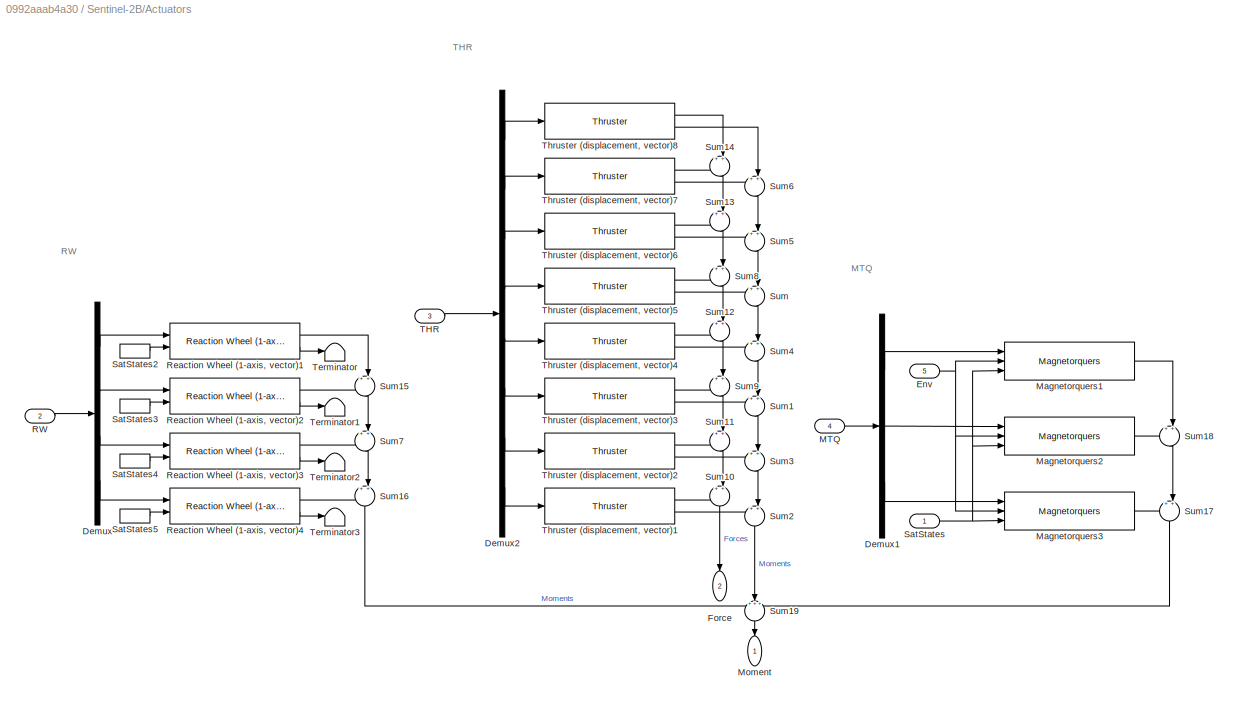
BLOCK [SubSystem] Sentinel-2B/Actuators
  Ports = [5, 2]
  RequestExecContextInheritance = off
BLOCK [Demux] Sentinel-2B/Actuators/Demux
  DisplayOption = bar
  Ports = [1, 4]
BLOCK [Demux] Sentinel-2B/Actuators/Demux1
  DisplayOption = bar
  Outputs = 3
  Ports = [1, 3]
BLOCK [Demux] Sentinel-2B/Actuators/Demux2
  DisplayOption = bar
  Outputs = 8
  Ports = [1, 8]
BLOCK [Inport] Sentinel-2B/Actuators/Env
  IconDisplay = Port number
  Port = 5
BLOCK [Outport] Sentinel-2B/Actuators/Force
  IconDisplay = Port number
  Port = 2
BLOCK [Inport] Sentinel-2B/Actuators/MTQ
  IconDisplay = Port number
  Port = 4
BLOCK [Reference] Sentinel-2B/Actuators/Magnetorquers1  REF=$bdroot/Actuators/Magnetorquers
  Ports = [3, 1]
  SourceBlock = $bdroot/Actuators/Magnetorquers
BLOCK [Reference] Sentinel-2B/Actuators/Magnetorquers2  REF=$bdroot/Actuators/Magnetorquers
  Ports = [3, 1]
  SourceBlock = $bdroot/Actuators/Magnetorquers
BLOCK [Reference] Sentinel-2B/Actuators/Magnetorquers3  REF=$bdroot/Actuators/Magnetorquers
  Ports = [3, 1]
  SourceBlock = $bdroot/Actuators/Magnetorquers
BLOCK [Outport] Sentinel-2B/Actuators/Moment
  IconDisplay = Port number
BLOCK [Inport] Sentinel-2B/Actuators/RW
  IconDisplay = Port number
  Port = 2
BLOCK [Reference] Sentinel-2B/Actuators/Reaction Wheel (1-axis, vector)1  REF=$bdroot/Actuators/Reaction Wheel (1-axis, vector)
  Ports = [2, 2]
  SourceBlock = $bdroot/Actuators/Reaction Wheel (1-axis, vector)
  SourceType = Reaction Wheel
BLOCK [Reference] Sentinel-2B/Actuators/Reaction Wheel (1-axis, vector)2  REF=$bdroot/Actuators/Reaction Wheel (1-axis, vector)
  Ports = [2, 2]
  SourceBlock = $bdroot/Actuators/Reaction Wheel (1-axis, vector)
  SourceType = Reaction Wheel
BLOCK [Reference] Sentinel-2B/Actuators/Reaction Wheel (1-axis, vector)3  REF=$bdroot/Actuators/Reaction Wheel (1-axis, vector)
  Ports = [2, 2]
  SourceBlock = $bdroot/Actuators/Reaction Wheel (1-axis, vector)
  SourceType = Reaction Wheel
BLOCK [Reference] Sentinel-2B/Actuators/Reaction Wheel (1-axis, vector)4  REF=$bdroot/Actuators/Reaction Wheel (1-axis, vector)
  Ports = [2, 2]
  SourceBlock = $bdroot/Actuators/Reaction Wheel (1-axis, vector)
  SourceType = Reaction Wheel
BLOCK [Inport] Sentinel-2B/Actuators/SatStates
  IconDisplay = Port number
BLOCK [InportShadow] Sentinel-2B/Actuators/SatStates2
  IconDisplay = Port number
BLOCK [InportShadow] Sentinel-2B/Actuators/SatStates3
  IconDisplay = Port number
BLOCK [InportShadow] Sentinel-2B/Actuators/SatStates4
  IconDisplay = Port number
BLOCK [InportShadow] Sentinel-2B/Actuators/SatStates5
  IconDisplay = Port number
BLOCK [Sum] Sentinel-2B/Actuators/Sum
  IconShape = round
  InputSameDT = off
  Inputs = ++|
  OutDataTypeStr = Inherit: Inherit via internal rule
  Ports = [2, 1]
  SaturateOnIntegerOverflow = off
BLOCK [Sum] Sentinel-2B/Actuators/Sum1
  IconShape = round
  InputSameDT = off
  Inputs = ++|
  OutDataTypeStr = Inherit: Inherit via internal rule
  Ports = [2, 1]
  SaturateOnIntegerOverflow = off
BLOCK [Sum] Sentinel-2B/Actuators/Sum10
  IconShape = round
  InputSameDT = off
  Inputs = ++|
  OutDataTypeStr = Inherit: Inherit via internal rule
  Ports = [2, 1]
  SaturateOnIntegerOverflow = off
BLOCK [Sum] Sentinel-2B/Actuators/Sum11
  IconShape = round
  InputSameDT = off
  Inputs = ++|
  OutDataTypeStr = Inherit: Inherit via internal rule
  Ports = [2, 1]
  SaturateOnIntegerOverflow = off
BLOCK [Sum] Sentinel-2B/Actuators/Sum12
  IconShape = round
  InputSameDT = off
  Inputs = ++|
  OutDataTypeStr = Inherit: Inherit via internal rule
  Ports = [2, 1]
  SaturateOnIntegerOverflow = off
BLOCK [Sum] Sentinel-2B/Actuators/Sum13
  IconShape = round
  InputSameDT = off
  Inputs = ++|
  OutDataTypeStr = Inherit: Inherit via internal rule
  Ports = [2, 1]
  SaturateOnIntegerOverflow = off
BLOCK [Sum] Sentinel-2B/Actuators/Sum14
  IconShape = round
  InputSameDT = off
  Inputs = ++|
  OutDataTypeStr = Inherit: Inherit via internal rule
  Ports = [2, 1]
  SaturateOnIntegerOverflow = off
BLOCK [Sum] Sentinel-2B/Actuators/Sum15
  IconShape = round
  InputSameDT = off
  Inputs = ++|
  OutDataTypeStr = Inherit: Inherit via internal rule
  Ports = [2, 1]
  SaturateOnIntegerOverflow = off
BLOCK [Sum] Sentinel-2B/Actuators/Sum16
  IconShape = round
  InputSameDT = off
  Inputs = ++|
  OutDataTypeStr = Inherit: Inherit via internal rule
  Ports = [2, 1]
  SaturateOnIntegerOverflow = off
BLOCK [Sum] Sentinel-2B/Actuators/Sum17
  IconShape = round
  InputSameDT = off
  Inputs = ++|
  OutDataTypeStr = Inherit: Inherit via internal rule
  Ports = [2, 1]
  SaturateOnIntegerOverflow = off
BLOCK [Sum] Sentinel-2B/Actuators/Sum18
  IconShape = round
  InputSameDT = off
  Inputs = ++|
  OutDataTypeStr = Inherit: Inherit via internal rule
  Ports = [2, 1]
  SaturateOnIntegerOverflow = off
BLOCK [Sum] Sentinel-2B/Actuators/Sum19
  IconShape = round
  InputSameDT = off
  Inputs = +++
  OutDataTypeStr = Inherit: Inherit via internal rule
  Ports = [3, 1]
  SaturateOnIntegerOverflow = off
BLOCK [Sum] Sentinel-2B/Actuators/Sum2
  IconShape = round
  InputSameDT = off
  Inputs = ++|
  OutDataTypeStr = Inherit: Inherit via internal rule
  Ports = [2, 1]
  SaturateOnIntegerOverflow = off
BLOCK [Sum] Sentinel-2B/Actuators/Sum3
  IconShape = round
  InputSameDT = off
  Inputs = ++|
  OutDataTypeStr = Inherit: Inherit via internal rule
  Ports = [2, 1]
  SaturateOnIntegerOverflow = off
BLOCK [Sum] Sentinel-2B/Actuators/Sum4
  IconShape = round
  InputSameDT = off
  Inputs = ++|
  OutDataTypeStr = Inherit: Inherit via internal rule
  Ports = [2, 1]
  SaturateOnIntegerOverflow = off
BLOCK [Sum] Sentinel-2B/Actuators/Sum5
  IconShape = round
  InputSameDT = off
  Inputs = ++|
  OutDataTypeStr = Inherit: Inherit via internal rule
  Ports = [2, 1]
  SaturateOnIntegerOverflow = off
BLOCK [Sum] Sentinel-2B/Actuators/Sum6
  IconShape = round
  InputSameDT = off
  Inputs = ++|
  OutDataTypeStr = Inherit: Inherit via internal rule
  Ports = [2, 1]
  SaturateOnIntegerOverflow = off
BLOCK [Sum] Sentinel-2B/Actuators/Sum7
  IconShape = round
  InputSameDT = off
  Inputs = ++|
  OutDataTypeStr = Inherit: Inherit via internal rule
  Ports = [2, 1]
  SaturateOnIntegerOverflow = off
BLOCK [Sum] Sentinel-2B/Actuators/Sum8
  IconShape = round
  InputSameDT = off
  Inputs = ++|
  OutDataTypeStr = Inherit: Inherit via internal rule
  Ports = [2, 1]
  SaturateOnIntegerOverflow = off
BLOCK [Sum] Sentinel-2B/Actuators/Sum9
  IconShape = round
  InputSameDT = off
  Inputs = ++|
  OutDataTypeStr = Inherit: Inherit via internal rule
  Ports = [2, 1]
  SaturateOnIntegerOverflow = off
BLOCK [Inport] Sentinel-2B/Actuators/THR
  IconDisplay = Port number
  Port = 3
BLOCK [Terminator] Sentinel-2B/Actuators/Terminator
BLOCK [Terminator] Sentinel-2B/Actuators/Terminator1
BLOCK [Terminator] Sentinel-2B/Actuators/Terminator2
BLOCK [Terminator] Sentinel-2B/Actuators/Terminator3
BLOCK [Reference] Sentinel-2B/Actuators/Thruster (displacement, vector)1  REF=$bdroot/Actuators/Thruster
  Ports = [1, 2]
  SourceBlock = $bdroot/Actuators/Thruster
BLOCK [Reference] Sentinel-2B/Actuators/Thruster (displacement, vector)2  REF=$bdroot/Actuators/Thruster
  Ports = [1, 2]
  SourceBlock = $bdroot/Actuators/Thruster
BLOCK [Reference] Sentinel-2B/Actuators/Thruster (displacement, vector)3  REF=$bdroot/Actuators/Thruster
  Ports = [1, 2]
  SourceBlock = $bdroot/Actuators/Thruster
BLOCK [Reference] Sentinel-2B/Actuators/Thruster (displacement, vector)4  REF=$bdroot/Actuators/Thruster
  Ports = [1, 2]
  SourceBlock = $bdroot/Actuators/Thruster
BLOCK [Reference] Sentinel-2B/Actuators/Thruster (displacement, vector)5  REF=$bdroot/Actuators/Thruster
  Ports = [1, 2]
  SourceBlock = $bdroot/Actuators/Thruster
BLOCK [Reference] Sentinel-2B/Actuators/Thruster (displacement, vector)6  REF=$bdroot/Actuators/Thruster
  Ports = [1, 2]
  SourceBlock = $bdroot/Actuators/Thruster
BLOCK [Reference] Sentinel-2B/Actuators/Thruster (displacement, vector)7  REF=$bdroot/Actuators/Thruster
  Ports = [1, 2]
  SourceBlock = $bdroot/Actuators/Thruster
BLOCK [Reference] Sentinel-2B/Actuators/Thruster (displacement, vector)8  REF=$bdroot/Actuators/Thruster
  Ports = [1, 2]
  SourceBlock = $bdroot/Actuators/Thruster
BLOCK [Reference] Sentinel-2B/Environment  REF=$bdroot/Environment/Environment
  Ports = [1, 3]
  SourceBlock = $bdroot/Environment/Environment
BLOCK [SubSystem] Sentinel-2B/OBC
  Ports = [1, 3]
  RequestExecContextInheritance = off
BLOCK [Ground] Sentinel-2B/OBC/Ground
BLOCK [Ground] Sentinel-2B/OBC/Ground1
BLOCK [Ground] Sentinel-2B/OBC/Ground2
BLOCK [Outport] Sentinel-2B/OBC/MTQ
  IconDisplay = Port number
  Port = 3
BLOCK [Outport] Sentinel-2B/OBC/RW
  IconDisplay = Port number
BLOCK [Inport] Sentinel-2B/OBC/Sensors
  IconDisplay = Port number
BLOCK [Outport] Sentinel-2B/OBC/THR
  IconDisplay = Port number
  Port = 2
BLOCK [Terminator] Sentinel-2B/OBC/Terminator
BLOCK [Reference] Sentinel-2B/Satellite Dynamics  REF=$bdroot/Standard/Satellite Dynamics
  Ports = [4, 1]
  SourceBlock = $bdroot/Standard/Satellite Dynamics
  SourceType = Sattellite Dynamics
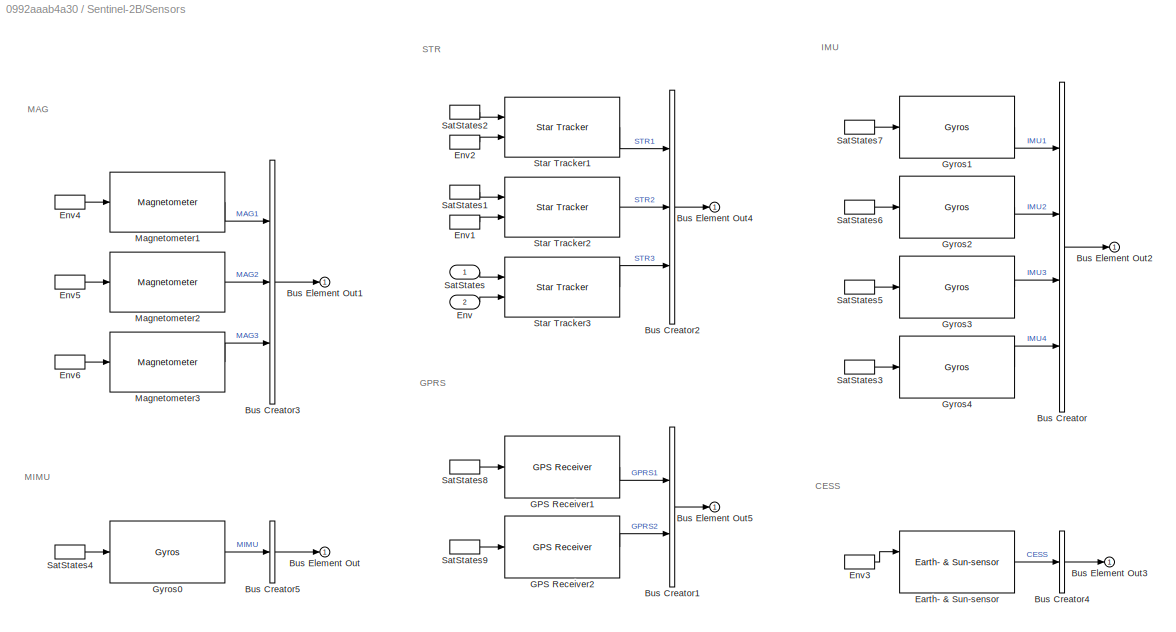
BLOCK [SubSystem] Sentinel-2B/Sensors
  Ports = [2, 1]
  RequestExecContextInheritance = off
BLOCK [BusCreator] Sentinel-2B/Sensors/Bus Creator
  DisplayOption = bar
  InheritFromInputs = on
  Inputs = 4
  Ports = [4, 1]
BLOCK [BusCreator] Sentinel-2B/Sensors/Bus Creator1
  DisplayOption = bar
  InheritFromInputs = on
  Inputs = 2
  Ports = [2, 1]
BLOCK [BusCreator] Sentinel-2B/Sensors/Bus Creator2
  DisplayOption = bar
  InheritFromInputs = on
  Inputs = 3
  Ports = [3, 1]
BLOCK [BusCreator] Sentinel-2B/Sensors/Bus Creator3
  DisplayOption = bar
  InheritFromInputs = on
  Inputs = 3
  Ports = [3, 1]
BLOCK [BusCreator] Sentinel-2B/Sensors/Bus Creator4
  DisplayOption = bar
  InheritFromInputs = on
  Inputs = 1
  Ports = [1, 1]
BLOCK [BusCreator] Sentinel-2B/Sensors/Bus Creator5
  DisplayOption = bar
  InheritFromInputs = on
  Inputs = 1
  Ports = [1, 1]
BLOCK [Outport] Sentinel-2B/Sensors/Bus Element Out
  IconDisplay = Port number
BLOCK [Outport] Sentinel-2B/Sensors/Bus Element Out1
  IconDisplay = Port number
BLOCK [Outport] Sentinel-2B/Sensors/Bus Element Out2
  IconDisplay = Port number
BLOCK [Outport] Sentinel-2B/Sensors/Bus Element Out3
  IconDisplay = Port number
BLOCK [Outport] Sentinel-2B/Sensors/Bus Element Out4
  IconDisplay = Port number
BLOCK [Outport] Sentinel-2B/Sensors/Bus Element Out5
  IconDisplay = Port number
BLOCK [Reference] Sentinel-2B/Sensors/Earth- & Sun-sensor  REF=$bdroot/Sensors/Earth- & Sun-sensor
  Ports = [2, 1]
  SourceBlock = $bdroot/Sensors/Earth- & Sun-sensor
BLOCK [Inport] Sentinel-2B/Sensors/Env 
  IconDisplay = Port number
  Port = 2
BLOCK [InportShadow] Sentinel-2B/Sensors/Env1
  IconDisplay = Port number
  Port = 2
BLOCK [InportShadow] Sentinel-2B/Sensors/Env2
  IconDisplay = Port number
  Port = 2
BLOCK [InportShadow] Sentinel-2B/Sensors/Env3
  IconDisplay = Port number
  Port = 2
BLOCK [InportShadow] Sentinel-2B/Sensors/Env4
  IconDisplay = Port number
  Port = 2
BLOCK [InportShadow] Sentinel-2B/Sensors/Env5
  IconDisplay = Port number
  Port = 2
BLOCK [InportShadow] Sentinel-2B/Sensors/Env6
  IconDisplay = Port number
  Port = 2
BLOCK [Reference] Sentinel-2B/Sensors/GPS Receiver1  REF=$bdroot/Sensors/GPS Receiver
  Ports = [1, 1]
  SourceBlock = $bdroot/Sensors/GPS Receiver
BLOCK [Reference] Sentinel-2B/Sensors/GPS Receiver2  REF=$bdroot/Sensors/GPS Receiver
  Ports = [1, 1]
  SourceBlock = $bdroot/Sensors/GPS Receiver
BLOCK [Reference] Sentinel-2B/Sensors/Gyros0  REF=$bdroot/Sensors/Gyros
  Ports = [1, 1]
  SourceBlock = $bdroot/Sensors/Gyros
BLOCK [Reference] Sentinel-2B/Sensors/Gyros1  REF=$bdroot/Sensors/Gyros
  Ports = [1, 1]
  SourceBlock = $bdroot/Sensors/Gyros
BLOCK [Reference] Sentinel-2B/Sensors/Gyros2  REF=$bdroot/Sensors/Gyros
  Ports = [1, 1]
  SourceBlock = $bdroot/Sensors/Gyros
BLOCK [Reference] Sentinel-2B/Sensors/Gyros3  REF=$bdroot/Sensors/Gyros
  Ports = [1, 1]
  SourceBlock = $bdroot/Sensors/Gyros
BLOCK [Reference] Sentinel-2B/Sensors/Gyros4  REF=$bdroot/Sensors/Gyros
  Ports = [1, 1]
  SourceBlock = $bdroot/Sensors/Gyros
BLOCK [Reference] Sentinel-2B/Sensors/Magnetometer1  REF=$bdroot/Sensors/Magnetometer
  Ports = [1, 1]
  SourceBlock = $bdroot/Sensors/Magnetometer
BLOCK [Reference] Sentinel-2B/Sensors/Magnetometer2  REF=$bdroot/Sensors/Magnetometer
  Ports = [1, 1]
  SourceBlock = $bdroot/Sensors/Magnetometer
BLOCK [Reference] Sentinel-2B/Sensors/Magnetometer3  REF=$bdroot/Sensors/Magnetometer
  Ports = [1, 1]
  SourceBlock = $bdroot/Sensors/Magnetometer
BLOCK [Inport] Sentinel-2B/Sensors/SatStates 
  IconDisplay = Port number
BLOCK [InportShadow] Sentinel-2B/Sensors/SatStates1
  IconDisplay = Port number
BLOCK [InportShadow] Sentinel-2B/Sensors/SatStates2
  IconDisplay = Port number
BLOCK [InportShadow] Sentinel-2B/Sensors/SatStates3
  IconDisplay = Port number
BLOCK [InportShadow] Sentinel-2B/Sensors/SatStates4
  IconDisplay = Port number
BLOCK [InportShadow] Sentinel-2B/Sensors/SatStates5
  IconDisplay = Port number
BLOCK [InportShadow] Sentinel-2B/Sensors/SatStates6
  IconDisplay = Port number
BLOCK [InportShadow] Sentinel-2B/Sensors/SatStates7
  IconDisplay = Port number
BLOCK [InportShadow] Sentinel-2B/Sensors/SatStates8
  IconDisplay = Port number
BLOCK [InportShadow] Sentinel-2B/Sensors/SatStates9
  IconDisplay = Port number
BLOCK [Reference] Sentinel-2B/Sensors/Star Tracker1  REF=$bdroot/Sensors/Star Tracker
  Ports = [2, 1]
  SourceBlock = $bdroot/Sensors/Star Tracker
BLOCK [Reference] Sentinel-2B/Sensors/Star Tracker2  REF=$bdroot/Sensors/Star Tracker
  Ports = [2, 1]
  SourceBlock = $bdroot/Sensors/Star Tracker
BLOCK [Reference] Sentinel-2B/Sensors/Star Tracker3  REF=$bdroot/Sensors/Star Tracker
  Ports = [2, 1]
  SourceBlock = $bdroot/Sensors/Star Tracker
BLOCK [SubSystem] Standard
  Ports = []
  RequestExecContextInheritance = off
BLOCK [SubSystem] Standard/Satellite Dynamics
  Ports = [4, 1]
  RequestExecContextInheritance = off
BLOCK [Reference] Standard/Satellite Dynamics/6DOF ECEF (Quaternion)  REF=aerolib6dof2/6DOF ECEF (Quaternion)
  Ports = [2, 12]
  SourceBlock = aerolib6dof2/6DOF ECEF (Quaternion)
  SourceProductBaseCode = AE
  SourceProductName = Aerospace Blockset
  SourceType = 6DOF EoM (ECEF)
BLOCK [Assertion] Standard/Satellite Dynamics/Altitude Assertion
BLOCK [Outport] Standard/Satellite Dynamics/Bus Element Out
  IconDisplay = Port number
BLOCK [Constant] Standard/Satellite Dynamics/Constant
  Value = 0
BLOCK [Constant] Standard/Satellite Dynamics/Constant1
BLOCK [Reference] Standard/Satellite Dynamics/Direction Cosine Matrix to Quaternions  REF=sharedtransform/Direction Cosine Matrix 
to Quaternions
  Ports = [1, 1]
  SourceBlock = sharedtransform/Direction Cosine Matrix \nto Quaternions
  SourceProductBaseCode = AE
  SourceProductName = Aerospace Blockset
  SourceType = DCM2Quaternion
BLOCK [Integrator] Standard/Satellite Dynamics/Euler_B
  InitialConditionSource = external
  Ports = [2, 1]
  WrapState = on
BLOCK [Inport] Standard/Satellite Dynamics/F_env
  IconDisplay = Port number
  Port = 3
BLOCK [Inport] Standard/Satellite Dynamics/F_sat
  IconDisplay = Port number
BLOCK [SubSystem] Standard/Satellite Dynamics/Forces Switch
  Ports = [1, 1]
  RequestExecContextInheritance = off
BLOCK [Constant] Standard/Satellite Dynamics/Forces Switch/Constant1
  Value = [0 0 0]
BLOCK [Constant] Standard/Satellite Dynamics/Forces Switch/Forces
BLOCK [Inport] Standard/Satellite Dynamics/Forces Switch/In
  IconDisplay = Port number
BLOCK [Outport] Standard/Satellite Dynamics/Forces Switch/Out
  IconDisplay = Port number
BLOCK [Switch] Standard/Satellite Dynamics/Forces Switch/Switch
  Criteria = u2 > Threshold
  InputSameDT = off
  SaturateOnIntegerOverflow = off
BLOCK [Constant] Standard/Satellite Dynamics/Initial Euler
  Value = deg2rad(initEuler)
BLOCK [Inport] Standard/Satellite Dynamics/M_env
  IconDisplay = Port number
  Port = 4
BLOCK [Inport] Standard/Satellite Dynamics/M_sat
  IconDisplay = Port number
  Port = 2
BLOCK [Product] Standard/Satellite Dynamics/Matrix Multiply1
  InputSameDT = off
  Multiplication = Matrix(*)
  OutDataTypeStr = Inherit: Inherit via internal rule
  Ports = [2, 1]
  RndMeth = Floor
  SaturateOnIntegerOverflow = off
BLOCK [SubSystem] Standard/Satellite Dynamics/Moments Switch
  Ports = [1, 1]
  RequestExecContextInheritance = off
BLOCK [Constant] Standard/Satellite Dynamics/Moments Switch/Constant1
  Value = [0 0 0]
BLOCK [Inport] Standard/Satellite Dynamics/Moments Switch/In
  IconDisplay = Port number
BLOCK [Constant] Standard/Satellite Dynamics/Moments Switch/Moments
BLOCK [Outport] Standard/Satellite Dynamics/Moments Switch/Out
  IconDisplay = Port number
BLOCK [Switch] Standard/Satellite Dynamics/Moments Switch/Switch
  Criteria = u2 > Threshold
  InputSameDT = off
  SaturateOnIntegerOverflow = off
BLOCK [Outport] Standard/Satellite Dynamics/Out Bus Element
  IconDisplay = Port number
BLOCK [Outport] Standard/Satellite Dynamics/Out Bus Element1
  IconDisplay = Port number
BLOCK [Outport] Standard/Satellite Dynamics/Out Bus Element10
  IconDisplay = Port number
BLOCK [Outport] Standard/Satellite Dynamics/Out Bus Element11
  IconDisplay = Port number
BLOCK [Outport] Standard/Satellite Dynamics/Out Bus Element12
  IconDisplay = Port number
BLOCK [Outport] Standard/Satellite Dynamics/Out Bus Element2
  IconDisplay = Port number
BLOCK [Outport] Standard/Satellite Dynamics/Out Bus Element3
  IconDisplay = Port number
BLOCK [Outport] Standard/Satellite Dynamics/Out Bus Element4
  IconDisplay = Port number
BLOCK [Outport] Standard/Satellite Dynamics/Out Bus Element5
  IconDisplay = Port number
BLOCK [Outport] Standard/Satellite Dynamics/Out Bus Element6
  IconDisplay = Port number
BLOCK [Outport] Standard/Satellite Dynamics/Out Bus Element7
  IconDisplay = Port number
BLOCK [Outport] Standard/Satellite Dynamics/Out Bus Element8
  IconDisplay = Port number
BLOCK [Outport] Standard/Satellite Dynamics/Out Bus Element9
  IconDisplay = Port number
BLOCK [Reference] Standard/Satellite Dynamics/Quaternion Rotation  REF=aerolibutil/Quaternion
Rotation
  Ports = [2, 1]
  SourceBlock = aerolibutil/Quaternion\nRotation
  SourceProductBaseCode = AE
  SourceProductName = Aerospace Blockset
  SourceType = Quaternion Rotation
BLOCK [Reference] Standard/Satellite Dynamics/Quaternion Rotation1  REF=aerolibutil/Quaternion
Rotation
  Ports = [2, 1]
  SourceBlock = aerolibutil/Quaternion\nRotation
  SourceProductBaseCode = AE
  SourceProductName = Aerospace Blockset
  SourceType = Quaternion Rotation
BLOCK [Selector] Standard/Satellite Dynamics/Selector
  IndexOptions = Index vector (dialog)
  Indices = 3
  InputPortWidth = 3
  OutputSizes = 1
  Ports = [1, 1]
BLOCK [Sum] Standard/Satellite Dynamics/Sum
  IconShape = round
  InputSameDT = off
  Inputs = ++|
  OutDataTypeStr = Inherit: Inherit via internal rule
  Ports = [2, 1]
  SaturateOnIntegerOverflow = off
BLOCK [Sum] Standard/Satellite Dynamics/Sum1
  IconShape = round
  InputSameDT = off
  Inputs = ++|
  OutDataTypeStr = Inherit: Inherit via internal rule
  Ports = [2, 1]
  SaturateOnIntegerOverflow = off
BLOCK [Switch] Standard/Satellite Dynamics/Switch
  Criteria = u2 > Threshold
  InputSameDT = off
  SaturateOnIntegerOverflow = off
  Threshold = 100e3
BLOCK [SubSystem] Variants
  Ports = []
  RequestExecContextInheritance = off
BLOCK [SubSystem] Variants/Subsystem
  Ports = [4, 1]
  RequestExecContextInheritance = off
BLOCK [Reference] Variants/Subsystem/Gravity [N]  REF=$bdroot/Environment/Gravity [N]
  Ports = [1, 1]
  SourceBlock = $bdroot/Environment/Gravity [N]
  SourceType = Gravity
BLOCK [Inport] Variants/Subsystem/In1
  IconDisplay = Port number
BLOCK [Inport] Variants/Subsystem/In2
  IconDisplay = Port number
  Port = 2
BLOCK [Inport] Variants/Subsystem/In3
  IconDisplay = Port number
  Port = 3
BLOCK [Inport] Variants/Subsystem/In4
  IconDisplay = Port number
  Port = 4
BLOCK [Outport] Variants/Subsystem/Out1
  IconDisplay = Port number
BLOCK [Reference] Variants/Subsystem/Satellite Dynamics1  REF=$bdroot/Advanced/Satellite Dynamics
  Ports = [4, 1]
  SourceBlock = $bdroot/Advanced/Satellite Dynamics
  SourceType = Sattellite Dynamics
BLOCK [SubSystem] Variants/Subsystem1
  Ports = [4, 1]
  RequestExecContextInheritance = off
BLOCK [Reference] Variants/Subsystem1/Gravity [N]  REF=$bdroot/Environment/Gravity [N]
  Ports = [1, 1]
  SourceBlock = $bdroot/Environment/Gravity [N]
  SourceType = Gravity
BLOCK [Inport] Variants/Subsystem1/In1
  IconDisplay = Port number
BLOCK [Inport] Variants/Subsystem1/In2
  IconDisplay = Port number
  Port = 2
BLOCK [Inport] Variants/Subsystem1/In3
  IconDisplay = Port number
  Port = 3
BLOCK [Inport] Variants/Subsystem1/In4
  IconDisplay = Port number
  Port = 4
BLOCK [Outport] Variants/Subsystem1/Out1
  IconDisplay = Port number
BLOCK [Reference] Variants/Subsystem1/Satellite Dynamics1  REF=$bdroot/Advanced/Satellite Dynamics
  Ports = [4, 1]
  SourceBlock = $bdroot/Advanced/Satellite Dynamics
  SourceType = Sattellite Dynamics
BLOCK [SubSystem] Variants/Subsystem2
  Ports = [4, 1]
  RequestExecContextInheritance = off
BLOCK [Reference] Variants/Subsystem2/Gravity [N]  REF=$bdroot/Environment/Gravity [N]
  Ports = [1, 1]
  SourceBlock = $bdroot/Environment/Gravity [N]
  SourceType = Gravity
BLOCK [Inport] Variants/Subsystem2/In1
  IconDisplay = Port number
BLOCK [Inport] Variants/Subsystem2/In2
  IconDisplay = Port number
  Port = 2
BLOCK [Inport] Variants/Subsystem2/In3
  IconDisplay = Port number
  Port = 3
BLOCK [Inport] Variants/Subsystem2/In4
  IconDisplay = Port number
  Port = 4
BLOCK [Outport] Variants/Subsystem2/Out1
  IconDisplay = Port number
BLOCK [Reference] Variants/Subsystem2/Satellite Dynamics1  REF=$bdroot/Advanced/Satellite Dynamics
  Ports = [4, 1]
  SourceBlock = $bdroot/Advanced/Satellite Dynamics
  SourceType = Sattellite Dynamics
BLOCK [SubSystem] Variants/Subsystem3
  Ports = [4, 1]
  RequestExecContextInheritance = off
BLOCK [Reference] Variants/Subsystem3/Gravity [N]  REF=$bdroot/Environment/Gravity [N]
  Ports = [1, 1]
  SourceBlock = $bdroot/Environment/Gravity [N]
  SourceType = Gravity
BLOCK [Inport] Variants/Subsystem3/In1
  IconDisplay = Port number
BLOCK [Inport] Variants/Subsystem3/In2
  IconDisplay = Port number
  Port = 2
BLOCK [Inport] Variants/Subsystem3/In3
  IconDisplay = Port number
  Port = 3
BLOCK [Inport] Variants/Subsystem3/In4
  IconDisplay = Port number
  Port = 4
BLOCK [Outport] Variants/Subsystem3/Out1
  IconDisplay = Port number
BLOCK [Reference] Variants/Subsystem3/Satellite Dynamics1  REF=$bdroot/Advanced/Satellite Dynamics
  Ports = [4, 1]
  SourceBlock = $bdroot/Advanced/Satellite Dynamics
  SourceType = Sattellite Dynamics
BLOCK [SubSystem] Virtual World
  Ports = []
  RequestExecContextInheritance = off
BLOCK [SubSystem] Virtual World/Position to VRML
  Ports = [1, 1]
  RequestExecContextInheritance = off
BLOCK [Demux] Virtual World/Position to VRML/Demux1
  DisplayOption = bar
  Outputs = 3
  Ports = [1, 3]
BLOCK [Gain] Virtual World/Position to VRML/Gain3
  Gain = -1
  OutDataTypeStr = Inherit: Inherit via internal rule
  ParamDataTypeStr = Inherit: Inherit via internal rule
  SaturateOnIntegerOverflow = off
BLOCK [Mux] Virtual World/Position to VRML/Mux1
  DisplayOption = bar
  Inputs = 3
  Ports = [3, 1]
BLOCK [Inport] Virtual World/Position to VRML/X_ECEF
  IconDisplay = Port number
BLOCK [Outport] Virtual World/Position to VRML/pos
  IconDisplay = Port number
BLOCK [SubSystem] Virtual World/Quaternion to VRML
  Ports = [1, 1]
  RequestExecContextInheritance = off
BLOCK [Trigonometry] Virtual World/Quaternion to VRML/Acos
  Operator = acos
  Ports = [1, 1]
BLOCK [Demux] Virtual World/Quaternion to VRML/Demux
  DisplayOption = bar
  Ports = [1, 4]
BLOCK [Gain] Virtual World/Quaternion to VRML/Gain1
  Gain = 2
  OutDataTypeStr = Inherit: Inherit via internal rule
  ParamDataTypeStr = Inherit: Inherit via internal rule
  SaturateOnIntegerOverflow = off
BLOCK [Gain] Virtual World/Quaternion to VRML/Gain2
  Gain = -1
  OutDataTypeStr = Inherit: Inherit via internal rule
  ParamDataTypeStr = Inherit: Inherit via internal rule
  SaturateOnIntegerOverflow = off
BLOCK [Mux] Virtual World/Quaternion to VRML/Mux
  DisplayOption = bar
  Ports = [4, 1]
BLOCK [Inport] Virtual World/Quaternion to VRML/q
  IconDisplay = Port number
BLOCK [Outport] Virtual World/Quaternion to VRML/rot
  IconDisplay = Port number
BLOCK [Reference] Virtual World/SCARS VR Sink  REF=vrlib/VR Sink
  InstantiateOnLoad = on
  Ports = [3]
  SourceBlock = vrlib/VR Sink
  SourceProductBaseCode = SL
  SourceProductName = Simulink
  SourceType = Virtual Reality Sink
BLOCK [SubSystem] Virtual World/SCARS to VRML
  Ports = [2, 3]
  RequestExecContextInheritance = off
BLOCK [BusSelector] Virtual World/SCARS to VRML/Bus Selector
  OutputAsBus = off
  OutputSignals = q_ECEF2Body,X_ecef
  Ports = [1, 2]
BLOCK [Inport] Virtual World/SCARS to VRML/Env
  IconDisplay = Port number
  Port = 2
BLOCK [Gain] Virtual World/SCARS to VRML/Gain
  Gain = 1.14*10e-7
  OutDataTypeStr = Inherit: Inherit via internal rule
  ParamDataTypeStr = Inherit: Inherit via internal rule
  SaturateOnIntegerOverflow = off
BLOCK [Gain] Virtual World/SCARS to VRML/Gain1
  Gain = 4*10e-7
  OutDataTypeStr = Inherit: Inherit via internal rule
  ParamDataTypeStr = Inherit: Inherit via internal rule
  SaturateOnIntegerOverflow = off
BLOCK [Reference] Virtual World/SCARS to VRML/Position to VRML  REF=$bdroot/Virtual World/Position to VRML
  Ports = [1, 1]
  SourceBlock = $bdroot/Virtual World/Position to VRML
  SourceType = SubSystem
BLOCK [Reference] Virtual World/SCARS to VRML/Position to VRML1  REF=$bdroot/Virtual World/Position to VRML
  Ports = [1, 1]
  SourceBlock = $bdroot/Virtual World/Position to VRML
  SourceType = SubSystem
BLOCK [Reference] Virtual World/SCARS to VRML/Quaternion to VRML  REF=$bdroot/Virtual World/Quaternion to VRML
  Ports = [1, 1]
  SourceBlock = $bdroot/Virtual World/Quaternion to VRML
  SourceType = SubSystem
BLOCK [Outport] Virtual World/SCARS to VRML/Sat Pos
  IconDisplay = Port number
  Port = 2
BLOCK [Outport] Virtual World/SCARS to VRML/Sat Rot
  IconDisplay = Port number
BLOCK [Inport] Virtual World/SCARS to VRML/SatStates
  IconDisplay = Port number
BLOCK [Outport] Virtual World/SCARS to VRML/Sun Pos
  IconDisplay = Port number
  Port = 3
BLOCK [Reference] Virtual World/SCARS to VRML/Sun's Position to ECEF  REF=$bdroot/Virtual World/Sun's Position to ECEF
  Ports = [1, 1]
  SourceBlock = $bdroot/Virtual World/Sun's Position to ECEF
  SourceType = SubSystem
BLOCK [SubSystem] Virtual World/Sun's Position to ECEF
  Ports = [1, 1]
  RequestExecContextInheritance = off
BLOCK [Inport] Virtual World/Sun's Position to ECEF/Bus Element In
  IconDisplay = Port number
BLOCK [Clock] Virtual World/Sun's Position to ECEF/Clock
  DisplayTime = on
BLOCK [Reference] Virtual World/Sun's Position to ECEF/Direction Cosine Matrix ECI to ECEF  REF=aerolibtransform2/Direction Cosine Matrix
ECI to ECEF
  AttributesFormatString = %<red>
  Ports = [1, 1]
  SourceBlock = aerolibtransform2/Direction Cosine Matrix\nECI to ECEF
  SourceProductBaseCode = AE
  SourceProductName = Aerospace Blockset
  SourceType = DCMECItoECEF
BLOCK [Reference] Virtual World/Sun's Position to ECEF/Direction Cosine Matrix to Quaternions  REF=sharedtransform/Direction Cosine Matrix 
to Quaternions
  Ports = [1, 1]
  SourceBlock = sharedtransform/Direction Cosine Matrix \nto Quaternions
  SourceProductBaseCode = AE
  SourceProductName = Aerospace Blockset
  SourceType = DCM2Quaternion
BLOCK [Reference] Virtual World/Sun's Position to ECEF/Quaternion Rotation  REF=aerolibutil/Quaternion
Rotation
  Ports = [2, 1]
  SourceBlock = aerolibutil/Quaternion\nRotation
  SourceProductBaseCode = AE
  SourceProductName = Aerospace Blockset
  SourceType = Quaternion Rotation
BLOCK [Outport] Virtual World/Sun's Position to ECEF/pos
  IconDisplay = Port number
ANNOTATION (root): SCARS Parts Library
ANNOTATION (root): Control
ANNOTATION (root): Environment
ANNOTATION (root): Examples
ANNOTATION (root): Hardware Models
ANNOTATION (root): Other
ANNOTATION (root): Satellite Model
ANNOTATION (root): Visualisation
ANNOTATION  Control Algorithms : Control
ANNOTATION Actuators: Actuators
ANNOTATION Actuators/Reaction Wheel (1-axis, X//Y//Z): Disturbances can be put here
ANNOTATION Actuators/Reaction Wheel (1-axis, X//Y//Z): input here
ANNOTATION Actuators/Reaction Wheel (1-axis, X//Y//Z): qw - anqular velocity of the wheel
ANNOTATION Actuators/Reaction Wheels/Reaction Wheel Pitch: Disturbances can be put here
ANNOTATION Actuators/Reaction Wheels/Reaction Wheel Pitch: input here
ANNOTATION Actuators/Reaction Wheels/Reaction Wheel Pitch: qw - anqular velocity of the wheel
ANNOTATION Actuators/Reaction Wheels/Reaction Wheel Roll: Disturbances can be put here
ANNOTATION Actuators/Reaction Wheels/Reaction Wheel Roll: input here
ANNOTATION Actuators/Reaction Wheels/Reaction Wheel Roll: qw - anqular velocity of the wheel
ANNOTATION Actuators/Reaction Wheels/Reaction Wheel Yaw: Disturbances can be put here
ANNOTATION Actuators/Reaction Wheels/Reaction Wheel Yaw: input here
ANNOTATION Actuators/Reaction Wheels/Reaction Wheel Yaw: qw - anqular velocity of the wheel
ANNOTATION Example Spacecraft: Example Spacecraft
ANNOTATION Other: Other
ANNOTATION PW-Sat2: PW-Sat2
ANNOTATION PW-Sat2/Satellite Dynamics: ECEF to Body
ANNOTATION Sensors: Sensors
ANNOTATION Sensors/Gyros: noise_power = [0.1] sample_time = 0.1
ANNOTATION Sensors/Gyros: wn = 1000*2*pi; % natural frequency [not in Hz, but can be transferred] dynamics rad/s w = 12.5*2*pi; % cutoff frequency [Hz*2pi = deg/s] LPF rad/s zeta = sqrt(2)/2; % damping ratio z = zeta; %?
ANNOTATION Sentinel-2B: Sentinel-2B
ANNOTATION Sentinel-2B/Actuators: MTQ
ANNOTATION Sentinel-2B/Actuators: RW
ANNOTATION Sentinel-2B/Actuators: THR
ANNOTATION Sentinel-2B/Sensors: CESS
ANNOTATION Sentinel-2B/Sensors: GPRS
ANNOTATION Sentinel-2B/Sensors: IMU
ANNOTATION Sentinel-2B/Sensors: MAG
ANNOTATION Sentinel-2B/Sensors: MIMU
ANNOTATION Sentinel-2B/Sensors: STR
ANNOTATION Standard/Satellite Dynamics: ECEF to Body
ANNOTATION Virtual World: Visualisation
ANNOTATION Virtual World/Sun's Position to ECEF: Parametrise DCM
NET  Control Algorithms /B-dot Algorithm/B:1 ->  Control Algorithms /B-dot Algorithm/Derivative:1,  Control Algorithms /B-dot Algorithm/Vector Norm:1
LINE  Control Algorithms /B-dot Algorithm/Derivative:1 ->  Control Algorithms /B-dot Algorithm/Gain2:1
LINE  Control Algorithms /B-dot Algorithm/Divide:1 ->  Control Algorithms /B-dot Algorithm/m_ctrl:1
LINE  Control Algorithms /B-dot Algorithm/Gain2:1 ->  Control Algorithms /B-dot Algorithm/Divide:1
LINE  Control Algorithms /B-dot Algorithm/Square:1 ->  Control Algorithms /B-dot Algorithm/Divide:2
LINE  Control Algorithms /B-dot Algorithm/Vector Norm:1 ->  Control Algorithms /B-dot Algorithm/Square:1
LINE  Control Algorithms /LQR Controller/Gain:1 ->  Control Algorithms /LQR Controller/u:1
LINE  Control Algorithms /LQR Controller/x:1 ->  Control Algorithms /LQR Controller/Gain:1
LINE  Control Algorithms /Lat//Long to Heading/Constant:1 ->  Control Algorithms /Lat//Long to Heading/LLA to ECEF Position:2
LINE  Control Algorithms /Lat//Long to Heading/LLA to ECEF Position:1 ->  Control Algorithms /Lat//Long to Heading/Sum:1
LINE  Control Algorithms /Lat//Long to Heading/Latitude:1 ->  Control Algorithms /Lat//Long to Heading/Mux:1
LINE  Control Algorithms /Lat//Long to Heading/Longitude:1 ->  Control Algorithms /Lat//Long to Heading/Mux:2
LINE  Control Algorithms /Lat//Long to Heading/Mux:1 ->  Control Algorithms /Lat//Long to Heading/LLA to ECEF Position:1
LINE  Control Algorithms /Lat//Long to Heading/Subsystem:1 ->  Control Algorithms /Lat//Long to Heading/Euler_B:1
LINE  Control Algorithms /Lat//Long to Heading/Sum:1 ->  Control Algorithms /Lat//Long to Heading/Subsystem:1
LINE  Control Algorithms /Lat//Long to Heading/X_ECEF:1 ->  Control Algorithms /Lat//Long to Heading/Sum:2
LINE  Control Algorithms /PID Controller/Constant1:1 ->  Control Algorithms /PID Controller/Switch2:3
LINE  Control Algorithms /PID Controller/Constant:1 ->  Control Algorithms /PID Controller/Switch:3
LINE  Control Algorithms /PID Controller/Derivative:1 ->  Control Algorithms /PID Controller/Kd:1
NET  Control Algorithms /PID Controller/Error:1 ->  Control Algorithms /PID Controller/Gain:1,  Control Algorithms /PID Controller/Integrator2:2,  Control Algorithms /PID Controller/Switch1:2,  Control Algorithms /PID Controller/Switch2:1,  Control Algorithms /PID Controller/Switch:1,  Control Algorithms /PID Controller/Switch:2
LINE  Control Algorithms /PID Controller/Gain:1 ->  Control Algorithms /PID Controller/Switch2:2
LINE  Control Algorithms /PID Controller/Integrator2:1 ->  Control Algorithms /PID Controller/Ki:1
LINE  Control Algorithms /PID Controller/Kd:1 ->  Control Algorithms /PID Controller/Sum4:3
LINE  Control Algorithms /PID Controller/Ki:1 ->  Control Algorithms /PID Controller/Saturation:1
LINE  Control Algorithms /PID Controller/Kp:1 ->  Control Algorithms /PID Controller/Sum4:1
LINE  Control Algorithms /PID Controller/Saturation:1 ->  Control Algorithms /PID Controller/Sum4:2
LINE  Control Algorithms /PID Controller/Sum4:1 ->  Control Algorithms /PID Controller/Out:1
NET  Control Algorithms /PID Controller/Switch1:1 ->  Control Algorithms /PID Controller/Derivative:1,  Control Algorithms /PID Controller/Integrator2:1,  Control Algorithms /PID Controller/Kp:1
LINE  Control Algorithms /PID Controller/Switch2:1 ->  Control Algorithms /PID Controller/Switch1:3
LINE  Control Algorithms /PID Controller/Switch:1 ->  Control Algorithms /PID Controller/Switch1:1
LINE Actuators/Bang-Bang Thrusters/Constant:1 -> Actuators/Bang-Bang Thrusters/Product:2
LINE Actuators/Bang-Bang Thrusters/Demux:1 -> Actuators/Bang-Bang Thrusters/Thruster Roll:1
LINE Actuators/Bang-Bang Thrusters/Demux:2 -> Actuators/Bang-Bang Thrusters/Thruster Pitch:1
LINE Actuators/Bang-Bang Thrusters/Demux:3 -> Actuators/Bang-Bang Thrusters/Thruster Yaw:1
NET Actuators/Bang-Bang Thrusters/Gain:1 -> Actuators/Bang-Bang Thrusters/Product:1, Actuators/Bang-Bang Thrusters/Torque:1
LINE Actuators/Bang-Bang Thrusters/Mux:1 -> Actuators/Bang-Bang Thrusters/Gain:1
LINE Actuators/Bang-Bang Thrusters/Product:1 -> Actuators/Bang-Bang Thrusters/Moments:1
NET Actuators/Bang-Bang Thrusters/Thruster Pitch/Gain2:1 -> Actuators/Bang-Bang Thrusters/Thruster Pitch/Relay2:1, Actuators/Bang-Bang Thrusters/Thruster Pitch/Scope1:2
NET Actuators/Bang-Bang Thrusters/Thruster Pitch/Relay1:1 -> Actuators/Bang-Bang Thrusters/Thruster Pitch/Scope1:4, Actuators/Bang-Bang Thrusters/Thruster Pitch/Sum2:1
NET Actuators/Bang-Bang Thrusters/Thruster Pitch/Relay2:1 -> Actuators/Bang-Bang Thrusters/Thruster Pitch/Scope1:3, Actuators/Bang-Bang Thrusters/Thruster Pitch/Sum2:2
LINE Actuators/Bang-Bang Thrusters/Thruster Pitch/Sum1:1 -> Actuators/Bang-Bang Thrusters/Thruster Pitch/Torque Out:1
NET Actuators/Bang-Bang Thrusters/Thruster Pitch/Sum2:1 -> Actuators/Bang-Bang Thrusters/Thruster Pitch/Scope1:5, Actuators/Bang-Bang Thrusters/Thruster Pitch/Sum1:1
NET Actuators/Bang-Bang Thrusters/Thruster Pitch/Torque:1 -> Actuators/Bang-Bang Thrusters/Thruster Pitch/Gain2:1, Actuators/Bang-Bang Thrusters/Thruster Pitch/Relay1:1, Actuators/Bang-Bang Thrusters/Thruster Pitch/Scope1:1
LINE Actuators/Bang-Bang Thrusters/Thruster Pitch:1 -> Actuators/Bang-Bang Thrusters/Mux:2
LINE Actuators/Bang-Bang Thrusters/Thruster Roll/Gain2:1 -> Actuators/Bang-Bang Thrusters/Thruster Roll/Relay2:1
LINE Actuators/Bang-Bang Thrusters/Thruster Roll/Noise:1 -> Actuators/Bang-Bang Thrusters/Thruster Roll/Sum2:2
LINE Actuators/Bang-Bang Thrusters/Thruster Roll/Relay1:1 -> Actuators/Bang-Bang Thrusters/Thruster Roll/Sum2:1
LINE Actuators/Bang-Bang Thrusters/Thruster Roll/Relay2:1 -> Actuators/Bang-Bang Thrusters/Thruster Roll/Sum2:3
LINE Actuators/Bang-Bang Thrusters/Thruster Roll/Sum2:1 -> Actuators/Bang-Bang Thrusters/Thruster Roll/Torque Out:1
NET Actuators/Bang-Bang Thrusters/Thruster Roll/Torque:1 -> Actuators/Bang-Bang Thrusters/Thruster Roll/Gain2:1, Actuators/Bang-Bang Thrusters/Thruster Roll/Relay1:1
LINE Actuators/Bang-Bang Thrusters/Thruster Roll:1 -> Actuators/Bang-Bang Thrusters/Mux:1
LINE Actuators/Bang-Bang Thrusters/Thruster Yaw/Constant1:1 -> Actuators/Bang-Bang Thrusters/Thruster Yaw/Mux1:4
LINE Actuators/Bang-Bang Thrusters/Thruster Yaw/Constant:1 -> Actuators/Bang-Bang Thrusters/Thruster Yaw/Mux1:3
NET Actuators/Bang-Bang Thrusters/Thruster Yaw/Gain2:1 -> Actuators/Bang-Bang Thrusters/Thruster Yaw/Mux1:2, Actuators/Bang-Bang Thrusters/Thruster Yaw/Relay2:1
LINE Actuators/Bang-Bang Thrusters/Thruster Yaw/Mux1:1 -> Actuators/Bang-Bang Thrusters/Thruster Yaw/Scope1:1
LINE Actuators/Bang-Bang Thrusters/Thruster Yaw/Mux:1 -> Actuators/Bang-Bang Thrusters/Thruster Yaw/Scope1:2
NET Actuators/Bang-Bang Thrusters/Thruster Yaw/Relay1:1 -> Actuators/Bang-Bang Thrusters/Thruster Yaw/Mux:2, Actuators/Bang-Bang Thrusters/Thruster Yaw/Sum2:1
NET Actuators/Bang-Bang Thrusters/Thruster Yaw/Relay2:1 -> Actuators/Bang-Bang Thrusters/Thruster Yaw/Mux:1, Actuators/Bang-Bang Thrusters/Thruster Yaw/Sum2:2
LINE Actuators/Bang-Bang Thrusters/Thruster Yaw/Sum1:1 -> Actuators/Bang-Bang Thrusters/Thruster Yaw/Torque Out:1
NET Actuators/Bang-Bang Thrusters/Thruster Yaw/Sum2:1 -> Actuators/Bang-Bang Thrusters/Thruster Yaw/Mux:3, Actuators/Bang-Bang Thrusters/Thruster Yaw/Sum1:1
NET Actuators/Bang-Bang Thrusters/Thruster Yaw/Torque:1 -> Actuators/Bang-Bang Thrusters/Thruster Yaw/Gain2:1, Actuators/Bang-Bang Thrusters/Thruster Yaw/Mux1:1, Actuators/Bang-Bang Thrusters/Thruster Yaw/Relay1:1
LINE Actuators/Bang-Bang Thrusters/Thruster Yaw:1 -> Actuators/Bang-Bang Thrusters/Mux:3
LINE Actuators/Bang-Bang Thrusters/TorqueCmd:1 -> Actuators/Bang-Bang Thrusters/Demux:1
LINE Actuators/Basic Thrusters/Abs:1 -> Actuators/Basic Thrusters/Saturation:1
LINE Actuators/Basic Thrusters/ActuatorCmd:1 -> Actuators/Basic Thrusters/Transport Delay:1
LINE Actuators/Basic Thrusters/Constant:1 -> Actuators/Basic Thrusters/Power:1
LINE Actuators/Basic Thrusters/Product:1 -> Actuators/Basic Thrusters/Force:1
LINE Actuators/Basic Thrusters/Saturation:1 -> Actuators/Basic Thrusters/Product:1
LINE Actuators/Basic Thrusters/Sign:1 -> Actuators/Basic Thrusters/Product:2
NET Actuators/Basic Thrusters/Transport Delay:1 -> Actuators/Basic Thrusters/Abs:1, Actuators/Basic Thrusters/Sign:1
LINE Actuators/Drag Sail (1-axis)/Bus Element In2:1 -> Actuators/Drag Sail (1-axis)/Drag :2
LINE Actuators/Drag Sail (1-axis)/Drag /Abs:1 -> Actuators/Drag Sail (1-axis)/Drag /Demux:1
LINE Actuators/Drag Sail (1-axis)/Drag /Add:1 -> Actuators/Drag Sail (1-axis)/Drag /Product2:2
LINE Actuators/Drag Sail (1-axis)/Drag /Bus Element In1:1 -> Actuators/Drag Sail (1-axis)/Drag /Rotation Angles to Quaternions:1
NET Actuators/Drag Sail (1-axis)/Drag /Bus Element In:1 -> Actuators/Drag Sail (1-axis)/Drag /Normalize Vector:1, Actuators/Drag Sail (1-axis)/Drag /Quaternion Rotation:2, Actuators/Drag Sail (1-axis)/Drag /Vector Norm:1
LINE Actuators/Drag Sail (1-axis)/Drag /Constant1:1 -> Actuators/Drag Sail (1-axis)/Drag /Product2:1
LINE Actuators/Drag Sail (1-axis)/Drag /Cos:1 -> Actuators/Drag Sail (1-axis)/Drag /Abs:1
LINE Actuators/Drag Sail (1-axis)/Drag /Demux:1 -> Actuators/Drag Sail (1-axis)/Drag /Add:1
LINE Actuators/Drag Sail (1-axis)/Drag /Demux:2 -> Actuators/Drag Sail (1-axis)/Drag /Add:2
LINE Actuators/Drag Sail (1-axis)/Drag /Demux:3 -> Actuators/Drag Sail (1-axis)/Drag /Add:3
LINE Actuators/Drag Sail (1-axis)/Drag /Density:1 -> Actuators/Drag Sail (1-axis)/Drag /Product:3
LINE Actuators/Drag Sail (1-axis)/Drag /Gain:1 -> Actuators/Drag Sail (1-axis)/Drag /Product:2
LINE Actuators/Drag Sail (1-axis)/Drag /Normalize Vector:1 -> Actuators/Drag Sail (1-axis)/Drag /Product1:1
LINE Actuators/Drag Sail (1-axis)/Drag /Product1:1 -> Actuators/Drag Sail (1-axis)/Drag /Force:1
LINE Actuators/Drag Sail (1-axis)/Drag /Product2:1 -> Actuators/Drag Sail (1-axis)/Drag /Gain:1
LINE Actuators/Drag Sail (1-axis)/Drag /Product:1 -> Actuators/Drag Sail (1-axis)/Drag /Product1:2
LINE Actuators/Drag Sail (1-axis)/Drag /Quaternion Rotation:1 -> Actuators/Drag Sail (1-axis)/Drag /Subsystem:1
LINE Actuators/Drag Sail (1-axis)/Drag /Rotation Angles to Quaternions:1 -> Actuators/Drag Sail (1-axis)/Drag /Quaternion Rotation:1
LINE Actuators/Drag Sail (1-axis)/Drag /Square:1 -> Actuators/Drag Sail (1-axis)/Drag /Product:1
LINE Actuators/Drag Sail (1-axis)/Drag /Subsystem:1 -> Actuators/Drag Sail (1-axis)/Drag /Cos:1
LINE Actuators/Drag Sail (1-axis)/Drag /Vector Norm:1 -> Actuators/Drag Sail (1-axis)/Drag /Square:1
LINE Actuators/Drag Sail (1-axis)/Drag :1 -> Actuators/Drag Sail (1-axis)/Product:1
LINE Actuators/Drag Sail (1-axis)/Product:1 -> Actuators/Drag Sail (1-axis)/Force:1
LINE Actuators/Drag Sail (1-axis)/SatStates:1 -> Actuators/Drag Sail (1-axis)/Drag :1
LINE Actuators/Drag Sail (1-axis)/Step:1 -> Actuators/Drag Sail (1-axis)/Product:2
LINE Actuators/Drag Sail/Add:1 -> Actuators/Drag Sail/Moment:1
LINE Actuators/Drag Sail/Density:1 -> Actuators/Drag Sail/Drag :2
LINE Actuators/Drag Sail/Deployment Duration:1 -> Actuators/Drag Sail/Product3:2
NET Actuators/Drag Sail/Deployment Time:1 -> Actuators/Drag Sail/Product1:1, Actuators/Drag Sail/Product:2
NET Actuators/Drag Sail/Depoloyment Moments:1 -> Actuators/Drag Sail/Product1:2, Actuators/Drag Sail/Product3:1
LINE Actuators/Drag Sail/Drag /Abs:1 -> Actuators/Drag Sail/Drag /Demux:1
LINE Actuators/Drag Sail/Drag /Add:1 -> Actuators/Drag Sail/Drag /Product2:2
LINE Actuators/Drag Sail/Drag /Bus Element In1:1 -> Actuators/Drag Sail/Drag /Rotation Angles to Quaternions:1
NET Actuators/Drag Sail/Drag /Bus Element In:1 -> Actuators/Drag Sail/Drag /Normalize Vector:1, Actuators/Drag Sail/Drag /Quaternion Rotation:2, Actuators/Drag Sail/Drag /Vector Norm:1
LINE Actuators/Drag Sail/Drag /Constant1:1 -> Actuators/Drag Sail/Drag /Product2:1
LINE Actuators/Drag Sail/Drag /Cos:1 -> Actuators/Drag Sail/Drag /Abs:1
LINE Actuators/Drag Sail/Drag /Demux:1 -> Actuators/Drag Sail/Drag /Add:1
LINE Actuators/Drag Sail/Drag /Demux:2 -> Actuators/Drag Sail/Drag /Add:2
LINE Actuators/Drag Sail/Drag /Demux:3 -> Actuators/Drag Sail/Drag /Add:3
LINE Actuators/Drag Sail/Drag /Density:1 -> Actuators/Drag Sail/Drag /Product:3
LINE Actuators/Drag Sail/Drag /Gain:1 -> Actuators/Drag Sail/Drag /Product:2
LINE Actuators/Drag Sail/Drag /Normalize Vector:1 -> Actuators/Drag Sail/Drag /Product1:1
LINE Actuators/Drag Sail/Drag /Product1:1 -> Actuators/Drag Sail/Drag /Force:1
LINE Actuators/Drag Sail/Drag /Product2:1 -> Actuators/Drag Sail/Drag /Gain:1
LINE Actuators/Drag Sail/Drag /Product:1 -> Actuators/Drag Sail/Drag /Product1:2
LINE Actuators/Drag Sail/Drag /Quaternion Rotation:1 -> Actuators/Drag Sail/Drag /Subsystem:1
LINE Actuators/Drag Sail/Drag /Rotation Angles to Quaternions:1 -> Actuators/Drag Sail/Drag /Quaternion Rotation:1
LINE Actuators/Drag Sail/Drag /Square:1 -> Actuators/Drag Sail/Drag /Product:1
LINE Actuators/Drag Sail/Drag /Subsystem:1 -> Actuators/Drag Sail/Drag /Cos:1
LINE Actuators/Drag Sail/Drag /Vector Norm:1 -> Actuators/Drag Sail/Drag /Square:1
LINE Actuators/Drag Sail/Drag :1 -> Actuators/Drag Sail/Product:1
LINE Actuators/Drag Sail/Gain:1 -> Actuators/Drag Sail/Force:1
LINE Actuators/Drag Sail/Product1:1 -> Actuators/Drag Sail/Add:1
LINE Actuators/Drag Sail/Product3:1 -> Actuators/Drag Sail/Add:2
LINE Actuators/Drag Sail/Product:1 -> Actuators/Drag Sail/Gain:1
LINE Actuators/Drag Sail/SatStates:1 -> Actuators/Drag Sail/Drag :1
LINE Actuators/Magnetorquer (1-axis)/ Coil Gain:1 -> Actuators/Magnetorquer (1-axis)/Vector Single to 3D :1
LINE Actuators/Magnetorquer (1-axis)/Bus Element In1:1 -> Actuators/Magnetorquer (1-axis)/Direction Cosine Matrix to Quaternions:1
LINE Actuators/Magnetorquer (1-axis)/Bus Element In:1 -> Actuators/Magnetorquer (1-axis)/Gain1:1
LINE Actuators/Magnetorquer (1-axis)/Circuit Transfer Fcn:1 -> Actuators/Magnetorquer (1-axis)/ Coil Gain:1
LINE Actuators/Magnetorquer (1-axis)/Cross Product:1 -> Actuators/Magnetorquer (1-axis)/Torque:1
LINE Actuators/Magnetorquer (1-axis)/Direction Cosine Matrix to Quaternions:1 -> Actuators/Magnetorquer (1-axis)/Quaternion Rotation:1
LINE Actuators/Magnetorquer (1-axis)/Gain1:1 -> Actuators/Magnetorquer (1-axis)/Quaternion Rotation:2
LINE Actuators/Magnetorquer (1-axis)/Quaternion Rotation:1 -> Actuators/Magnetorquer (1-axis)/Cross Product:2
LINE Actuators/Magnetorquer (1-axis)/Saturation:1 -> Actuators/Magnetorquer (1-axis)/Circuit Transfer Fcn:1
LINE Actuators/Magnetorquer (1-axis)/Vector Single to 3D :1 -> Actuators/Magnetorquer (1-axis)/Cross Product:1
LINE Actuators/Magnetorquer (1-axis)/Voltage:1 -> Actuators/Magnetorquer (1-axis)/Saturation:1
LINE Actuators/Magnetorquers (Detumbling)/B-dot Algorithm:1 -> Actuators/Magnetorquers (Detumbling)/Sum:2
LINE Actuators/Magnetorquers (Detumbling)/Bus Element In1:1 -> Actuators/Magnetorquers (Detumbling)/Direction Cosine Matrix to Quaternions:1
LINE Actuators/Magnetorquers (Detumbling)/Bus Element In:1 -> Actuators/Magnetorquers (Detumbling)/Gain1:1
LINE Actuators/Magnetorquers (Detumbling)/Cross Product:1 -> Actuators/Magnetorquers (Detumbling)/Torque:1
LINE Actuators/Magnetorquers (Detumbling)/Demux:1 -> Actuators/Magnetorquers (Detumbling)/Transfer Fcn:1
LINE Actuators/Magnetorquers (Detumbling)/Demux:2 -> Actuators/Magnetorquers (Detumbling)/Transfer Fcn2:1
LINE Actuators/Magnetorquers (Detumbling)/Demux:3 -> Actuators/Magnetorquers (Detumbling)/Transfer Fcn1:1
LINE Actuators/Magnetorquers (Detumbling)/Direction Cosine Matrix to Quaternions:1 -> Actuators/Magnetorquers (Detumbling)/Quaternion Rotation:1
LINE Actuators/Magnetorquers (Detumbling)/Gain1:1 -> Actuators/Magnetorquers (Detumbling)/Quaternion Rotation:2
NET Actuators/Magnetorquers (Detumbling)/Gain:1 -> Actuators/Magnetorquers (Detumbling)/Cross Product:1, Actuators/Magnetorquers (Detumbling)/Sum:1
LINE Actuators/Magnetorquers (Detumbling)/Mux:1 -> Actuators/Magnetorquers (Detumbling)/Gain:1
LINE Actuators/Magnetorquers (Detumbling)/PID Controller:1 -> Actuators/Magnetorquers (Detumbling)/Saturation:1
NET Actuators/Magnetorquers (Detumbling)/Quaternion Rotation:1 -> Actuators/Magnetorquers (Detumbling)/B-dot Algorithm:1, Actuators/Magnetorquers (Detumbling)/Cross Product:2
LINE Actuators/Magnetorquers (Detumbling)/Saturation:1 -> Actuators/Magnetorquers (Detumbling)/Demux:1
LINE Actuators/Magnetorquers (Detumbling)/Sum:1 -> Actuators/Magnetorquers (Detumbling)/PID Controller:1
LINE Actuators/Magnetorquers (Detumbling)/Transfer Fcn1:1 -> Actuators/Magnetorquers (Detumbling)/Mux:3
LINE Actuators/Magnetorquers (Detumbling)/Transfer Fcn2:1 -> Actuators/Magnetorquers (Detumbling)/Mux:2
LINE Actuators/Magnetorquers (Detumbling)/Transfer Fcn:1 -> Actuators/Magnetorquers (Detumbling)/Mux:1
LINE Actuators/Magnetorquers/Bus Element In1:1 -> Actuators/Magnetorquers/Direction Cosine Matrix to Quaternions:1
LINE Actuators/Magnetorquers/Bus Element In:1 -> Actuators/Magnetorquers/Gain1:1
LINE Actuators/Magnetorquers/Cross Product:1 -> Actuators/Magnetorquers/Moment:1
LINE Actuators/Magnetorquers/Demux:1 -> Actuators/Magnetorquers/Transfer Fcn:1
LINE Actuators/Magnetorquers/Demux:2 -> Actuators/Magnetorquers/Transfer Fcn2:1
LINE Actuators/Magnetorquers/Demux:3 -> Actuators/Magnetorquers/Transfer Fcn1:1
LINE Actuators/Magnetorquers/Direction Cosine Matrix to Quaternions:1 -> Actuators/Magnetorquers/Quaternion Rotation:1
LINE Actuators/Magnetorquers/Gain1:1 -> Actuators/Magnetorquers/Quaternion Rotation:2
LINE Actuators/Magnetorquers/Gain:1 -> Actuators/Magnetorquers/Cross Product:1
LINE Actuators/Magnetorquers/Mux:1 -> Actuators/Magnetorquers/Gain:1
LINE Actuators/Magnetorquers/Quaternion Rotation:1 -> Actuators/Magnetorquers/Cross Product:2
LINE Actuators/Magnetorquers/Saturation:1 -> Actuators/Magnetorquers/Demux:1
LINE Actuators/Magnetorquers/Transfer Fcn1:1 -> Actuators/Magnetorquers/Mux:3
LINE Actuators/Magnetorquers/Transfer Fcn2:1 -> Actuators/Magnetorquers/Mux:2
LINE Actuators/Magnetorquers/Transfer Fcn:1 -> Actuators/Magnetorquers/Mux:1
LINE Actuators/Magnetorquers/Voltage:1 -> Actuators/Magnetorquers/Saturation:1
LINE Actuators/Perfect Actuators (1-axis)/ActuatorCmd:1 -> Actuators/Perfect Actuators (1-axis)/Gain:1
LINE Actuators/Perfect Actuators (1-axis)/Gain:1 -> Actuators/Perfect Actuators (1-axis)/Vector Single to 3D  :1
LINE Actuators/Perfect Actuators (1-axis)/Vector Single to 3D  :1 -> Actuators/Perfect Actuators (1-axis)/Out:1
LINE Actuators/Perfect Actuators (1-axis, vector)/ActuatorCmd:1 -> Actuators/Perfect Actuators (1-axis, vector)/Gain:1
LINE Actuators/Perfect Actuators (1-axis, vector)/Gain:1 -> Actuators/Perfect Actuators (1-axis, vector)/Vector Single to 3D  :1
LINE Actuators/Perfect Actuators (1-axis, vector)/Vector Single to 3D  :1 -> Actuators/Perfect Actuators (1-axis, vector)/Out:1
LINE Actuators/Perfect Actuators/ActuatorCmd:1 -> Actuators/Perfect Actuators/Demux:1
LINE Actuators/Perfect Actuators/Demux:1 -> Actuators/Perfect Actuators/Mux:1
LINE Actuators/Perfect Actuators/Demux:2 -> Actuators/Perfect Actuators/Mux:2
LINE Actuators/Perfect Actuators/Demux:3 -> Actuators/Perfect Actuators/Mux:3
LINE Actuators/Perfect Actuators/Gain:1 -> Actuators/Perfect Actuators/Out:1
LINE Actuators/Perfect Actuators/Mux:1 -> Actuators/Perfect Actuators/Gain:1
LINE Actuators/Reaction Wheel (1-axis, X//Y//Z)/Band-Limited White Noise:1 -> Actuators/Reaction Wheel (1-axis, X//Y//Z)/Sum1:2
LINE Actuators/Reaction Wheel (1-axis, X//Y//Z)/Bus Element In:1 -> Actuators/Reaction Wheel (1-axis, X//Y//Z)/Selector:1
LINE Actuators/Reaction Wheel (1-axis, X//Y//Z)/Gain1:1 -> Actuators/Reaction Wheel (1-axis, X//Y//Z)/Saturation2:1
LINE Actuators/Reaction Wheel (1-axis, X//Y//Z)/Gain2:1 -> Actuators/Reaction Wheel (1-axis, X//Y//Z)/Saturation1:1
NET Actuators/Reaction Wheel (1-axis, X//Y//Z)/Gain3:1 -> Actuators/Reaction Wheel (1-axis, X//Y//Z)/Sum1:1, Actuators/Reaction Wheel (1-axis, X//Y//Z)/Sum3:1
LINE Actuators/Reaction Wheel (1-axis, X//Y//Z)/Gain:1 -> Actuators/Reaction Wheel (1-axis, X//Y//Z)/Sum:2
NET Actuators/Reaction Wheel (1-axis, X//Y//Z)/Saturation1:1 -> Actuators/Reaction Wheel (1-axis, X//Y//Z)/Sum1:3, Actuators/Reaction Wheel (1-axis, X//Y//Z)/Sum3:2
LINE Actuators/Reaction Wheel (1-axis, X//Y//Z)/Saturation2:1 -> Actuators/Reaction Wheel (1-axis, X//Y//Z)/Gain3:1
LINE Actuators/Reaction Wheel (1-axis, X//Y//Z)/Saturation:1 -> Actuators/Reaction Wheel (1-axis, X//Y//Z)/Sum2:2
LINE Actuators/Reaction Wheel (1-axis, X//Y//Z)/Selector:1 -> Actuators/Reaction Wheel (1-axis, X//Y//Z)/Sum2:1
LINE Actuators/Reaction Wheel (1-axis, X//Y//Z)/Sum1:1 -> Actuators/Reaction Wheel (1-axis, X//Y//Z)/Vector Single to 3D :1
NET Actuators/Reaction Wheel (1-axis, X//Y//Z)/Sum2:1 -> Actuators/Reaction Wheel (1-axis, X//Y//Z)/Gain2:1, Actuators/Reaction Wheel (1-axis, X//Y//Z)/Gain:1
LINE Actuators/Reaction Wheel (1-axis, X//Y//Z)/Sum3:1 -> Actuators/Reaction Wheel (1-axis, X//Y//Z)/Transfer Fcn:1
LINE Actuators/Reaction Wheel (1-axis, X//Y//Z)/Sum:1 -> Actuators/Reaction Wheel (1-axis, X//Y//Z)/Gain1:1
LINE Actuators/Reaction Wheel (1-axis, X//Y//Z)/TorqueCmd:1 -> Actuators/Reaction Wheel (1-axis, X//Y//Z)/Sum:1
NET Actuators/Reaction Wheel (1-axis, X//Y//Z)/Transfer Fcn:1 -> Actuators/Reaction Wheel (1-axis, X//Y//Z)/Saturation:1, Actuators/Reaction Wheel (1-axis, X//Y//Z)/WheelVel:1
LINE Actuators/Reaction Wheel (1-axis, X//Y//Z)/Vector Single to 3D :1 -> Actuators/Reaction Wheel (1-axis, X//Y//Z)/TorqueOut:1
LINE Actuators/Reaction Wheel (1-axis, vector)/Band-Limited White Noise:1 -> Actuators/Reaction Wheel (1-axis, vector)/Sum1:2
LINE Actuators/Reaction Wheel (1-axis, vector)/Bus Element In:1 -> Actuators/Reaction Wheel (1-axis, vector)/Demux1:1
LINE Actuators/Reaction Wheel (1-axis, vector)/Cmd:1 -> Actuators/Reaction Wheel (1-axis, vector)/Sum:1
LINE Actuators/Reaction Wheel (1-axis, vector)/Constant1:1 -> Actuators/Reaction Wheel (1-axis, vector)/Matrix Multiply1:1
LINE Actuators/Reaction Wheel (1-axis, vector)/Constant:1 -> Actuators/Reaction Wheel (1-axis, vector)/Matrix Multiply:2
LINE Actuators/Reaction Wheel (1-axis, vector)/Demux1:1 -> Actuators/Reaction Wheel (1-axis, vector)/Vector Concatenate:1
LINE Actuators/Reaction Wheel (1-axis, vector)/Demux1:2 -> Actuators/Reaction Wheel (1-axis, vector)/Vector Concatenate:2
LINE Actuators/Reaction Wheel (1-axis, vector)/Demux1:3 -> Actuators/Reaction Wheel (1-axis, vector)/Vector Concatenate:3
LINE Actuators/Reaction Wheel (1-axis, vector)/Demux:1 -> Actuators/Reaction Wheel (1-axis, vector)/Mux:1
LINE Actuators/Reaction Wheel (1-axis, vector)/Demux:2 -> Actuators/Reaction Wheel (1-axis, vector)/Mux:2
LINE Actuators/Reaction Wheel (1-axis, vector)/Demux:3 -> Actuators/Reaction Wheel (1-axis, vector)/Mux:3
LINE Actuators/Reaction Wheel (1-axis, vector)/Gain1:1 -> Actuators/Reaction Wheel (1-axis, vector)/Saturation2:1
LINE Actuators/Reaction Wheel (1-axis, vector)/Gain2:1 -> Actuators/Reaction Wheel (1-axis, vector)/Saturation1:1
NET Actuators/Reaction Wheel (1-axis, vector)/Gain3:1 -> Actuators/Reaction Wheel (1-axis, vector)/Sum1:1, Actuators/Reaction Wheel (1-axis, vector)/Sum3:1
LINE Actuators/Reaction Wheel (1-axis, vector)/Gain:1 -> Actuators/Reaction Wheel (1-axis, vector)/Sum:2
LINE Actuators/Reaction Wheel (1-axis, vector)/Matrix Multiply1:1 -> Actuators/Reaction Wheel (1-axis, vector)/Demux:1
LINE Actuators/Reaction Wheel (1-axis, vector)/Matrix Multiply:1 -> Actuators/Reaction Wheel (1-axis, vector)/Sum2:1
LINE Actuators/Reaction Wheel (1-axis, vector)/Mux:1 -> Actuators/Reaction Wheel (1-axis, vector)/Moment:1
NET Actuators/Reaction Wheel (1-axis, vector)/Saturation1:1 -> Actuators/Reaction Wheel (1-axis, vector)/Sum1:3, Actuators/Reaction Wheel (1-axis, vector)/Sum3:2
LINE Actuators/Reaction Wheel (1-axis, vector)/Saturation2:1 -> Actuators/Reaction Wheel (1-axis, vector)/Gain3:1
LINE Actuators/Reaction Wheel (1-axis, vector)/Saturation:1 -> Actuators/Reaction Wheel (1-axis, vector)/Sum2:2
LINE Actuators/Reaction Wheel (1-axis, vector)/Sum1:1 -> Actuators/Reaction Wheel (1-axis, vector)/Matrix Multiply1:2
NET Actuators/Reaction Wheel (1-axis, vector)/Sum2:1 -> Actuators/Reaction Wheel (1-axis, vector)/Gain2:1, Actuators/Reaction Wheel (1-axis, vector)/Gain:1
LINE Actuators/Reaction Wheel (1-axis, vector)/Sum3:1 -> Actuators/Reaction Wheel (1-axis, vector)/Transfer Fcn:1
LINE Actuators/Reaction Wheel (1-axis, vector)/Sum:1 -> Actuators/Reaction Wheel (1-axis, vector)/Gain1:1
NET Actuators/Reaction Wheel (1-axis, vector)/Transfer Fcn:1 -> Actuators/Reaction Wheel (1-axis, vector)/Saturation:1, Actuators/Reaction Wheel (1-axis, vector)/WheelVel:1
LINE Actuators/Reaction Wheel (1-axis, vector)/Vector Concatenate:1 -> Actuators/Reaction Wheel (1-axis, vector)/Matrix Multiply:1
LINE Actuators/Reaction Wheels/Bus Element In:1 -> Actuators/Reaction Wheels/Demux2:1
LINE Actuators/Reaction Wheels/Demux2:1 -> Actuators/Reaction Wheels/Reaction Wheel Roll:1
LINE Actuators/Reaction Wheels/Demux2:2 -> Actuators/Reaction Wheels/Reaction Wheel Pitch:1
LINE Actuators/Reaction Wheels/Demux2:3 -> Actuators/Reaction Wheels/Reaction Wheel Yaw:1
LINE Actuators/Reaction Wheels/Demux:1 -> Actuators/Reaction Wheels/Reaction Wheel Roll:2
LINE Actuators/Reaction Wheels/Demux:2 -> Actuators/Reaction Wheels/Reaction Wheel Pitch:2
LINE Actuators/Reaction Wheels/Demux:3 -> Actuators/Reaction Wheels/Reaction Wheel Yaw:2
LINE Actuators/Reaction Wheels/Mux:1 -> Actuators/Reaction Wheels/Torque:1
NET Actuators/Reaction Wheels/Reaction Wheel Pitch/Gain1:1 -> Actuators/Reaction Wheels/Reaction Wheel Pitch/Sum1:1, Actuators/Reaction Wheels/Reaction Wheel Pitch/Sum3:1
NET Actuators/Reaction Wheels/Reaction Wheel Pitch/Gain2:1 -> Actuators/Reaction Wheels/Reaction Wheel Pitch/Sum1:2, Actuators/Reaction Wheels/Reaction Wheel Pitch/Sum3:2
LINE Actuators/Reaction Wheels/Reaction Wheel Pitch/Gain:1 -> Actuators/Reaction Wheels/Reaction Wheel Pitch/Sum:2
LINE Actuators/Reaction Wheels/Reaction Wheel Pitch/Integrator:1 -> Actuators/Reaction Wheels/Reaction Wheel Pitch/Scope:2
NET Actuators/Reaction Wheels/Reaction Wheel Pitch/Rate:1 -> Actuators/Reaction Wheels/Reaction Wheel Pitch/Integrator:1, Actuators/Reaction Wheels/Reaction Wheel Pitch/Scope:1, Actuators/Reaction Wheels/Reaction Wheel Pitch/Sum2:1
LINE Actuators/Reaction Wheels/Reaction Wheel Pitch/Sum1:1 -> Actuators/Reaction Wheels/Reaction Wheel Pitch/Torque Out:1
NET Actuators/Reaction Wheels/Reaction Wheel Pitch/Sum2:1 -> Actuators/Reaction Wheels/Reaction Wheel Pitch/Gain2:1, Actuators/Reaction Wheels/Reaction Wheel Pitch/Gain:1
LINE Actuators/Reaction Wheels/Reaction Wheel Pitch/Sum3:1 -> Actuators/Reaction Wheels/Reaction Wheel Pitch/Transfer Fcn:1
LINE Actuators/Reaction Wheels/Reaction Wheel Pitch/Sum:1 -> Actuators/Reaction Wheels/Reaction Wheel Pitch/Gain1:1
LINE Actuators/Reaction Wheels/Reaction Wheel Pitch/Torque:1 -> Actuators/Reaction Wheels/Reaction Wheel Pitch/Sum:1
LINE Actuators/Reaction Wheels/Reaction Wheel Pitch/Transfer Fcn:1 -> Actuators/Reaction Wheels/Reaction Wheel Pitch/Sum2:2
LINE Actuators/Reaction Wheels/Reaction Wheel Pitch:1 -> Actuators/Reaction Wheels/Mux:2
NET Actuators/Reaction Wheels/Reaction Wheel Roll/Gain1:1 -> Actuators/Reaction Wheels/Reaction Wheel Roll/Sum1:1, Actuators/Reaction Wheels/Reaction Wheel Roll/Sum3:1
NET Actuators/Reaction Wheels/Reaction Wheel Roll/Gain2:1 -> Actuators/Reaction Wheels/Reaction Wheel Roll/Sum1:2, Actuators/Reaction Wheels/Reaction Wheel Roll/Sum3:2
LINE Actuators/Reaction Wheels/Reaction Wheel Roll/Gain:1 -> Actuators/Reaction Wheels/Reaction Wheel Roll/Sum:2
LINE Actuators/Reaction Wheels/Reaction Wheel Roll/Integrator:1 -> Actuators/Reaction Wheels/Reaction Wheel Roll/Scope:2
NET Actuators/Reaction Wheels/Reaction Wheel Roll/Rate:1 -> Actuators/Reaction Wheels/Reaction Wheel Roll/Integrator:1, Actuators/Reaction Wheels/Reaction Wheel Roll/Scope:1, Actuators/Reaction Wheels/Reaction Wheel Roll/Sum2:1
LINE Actuators/Reaction Wheels/Reaction Wheel Roll/Sum1:1 -> Actuators/Reaction Wheels/Reaction Wheel Roll/Torque Out:1
NET Actuators/Reaction Wheels/Reaction Wheel Roll/Sum2:1 -> Actuators/Reaction Wheels/Reaction Wheel Roll/Gain2:1, Actuators/Reaction Wheels/Reaction Wheel Roll/Gain:1
LINE Actuators/Reaction Wheels/Reaction Wheel Roll/Sum3:1 -> Actuators/Reaction Wheels/Reaction Wheel Roll/Transfer Fcn:1
LINE Actuators/Reaction Wheels/Reaction Wheel Roll/Sum:1 -> Actuators/Reaction Wheels/Reaction Wheel Roll/Gain1:1
LINE Actuators/Reaction Wheels/Reaction Wheel Roll/Torque:1 -> Actuators/Reaction Wheels/Reaction Wheel Roll/Sum:1
LINE Actuators/Reaction Wheels/Reaction Wheel Roll/Transfer Fcn:1 -> Actuators/Reaction Wheels/Reaction Wheel Roll/Sum2:2
LINE Actuators/Reaction Wheels/Reaction Wheel Roll:1 -> Actuators/Reaction Wheels/Mux:1
NET Actuators/Reaction Wheels/Reaction Wheel Yaw/Gain1:1 -> Actuators/Reaction Wheels/Reaction Wheel Yaw/Sum1:1, Actuators/Reaction Wheels/Reaction Wheel Yaw/Sum3:1
NET Actuators/Reaction Wheels/Reaction Wheel Yaw/Gain2:1 -> Actuators/Reaction Wheels/Reaction Wheel Yaw/Sum1:2, Actuators/Reaction Wheels/Reaction Wheel Yaw/Sum3:2
LINE Actuators/Reaction Wheels/Reaction Wheel Yaw/Gain:1 -> Actuators/Reaction Wheels/Reaction Wheel Yaw/Sum:2
LINE Actuators/Reaction Wheels/Reaction Wheel Yaw/Integrator:1 -> Actuators/Reaction Wheels/Reaction Wheel Yaw/Scope:2
NET Actuators/Reaction Wheels/Reaction Wheel Yaw/Rate:1 -> Actuators/Reaction Wheels/Reaction Wheel Yaw/Integrator:1, Actuators/Reaction Wheels/Reaction Wheel Yaw/Scope:1, Actuators/Reaction Wheels/Reaction Wheel Yaw/Sum2:1
LINE Actuators/Reaction Wheels/Reaction Wheel Yaw/Sum1:1 -> Actuators/Reaction Wheels/Reaction Wheel Yaw/Torque Out:1
NET Actuators/Reaction Wheels/Reaction Wheel Yaw/Sum2:1 -> Actuators/Reaction Wheels/Reaction Wheel Yaw/Gain2:1, Actuators/Reaction Wheels/Reaction Wheel Yaw/Gain:1
LINE Actuators/Reaction Wheels/Reaction Wheel Yaw/Sum3:1 -> Actuators/Reaction Wheels/Reaction Wheel Yaw/Transfer Fcn:1
LINE Actuators/Reaction Wheels/Reaction Wheel Yaw/Sum:1 -> Actuators/Reaction Wheels/Reaction Wheel Yaw/Gain1:1
LINE Actuators/Reaction Wheels/Reaction Wheel Yaw/Torque:1 -> Actuators/Reaction Wheels/Reaction Wheel Yaw/Sum:1
LINE Actuators/Reaction Wheels/Reaction Wheel Yaw/Transfer Fcn:1 -> Actuators/Reaction Wheels/Reaction Wheel Yaw/Sum2:2
LINE Actuators/Reaction Wheels/Reaction Wheel Yaw:1 -> Actuators/Reaction Wheels/Mux:3
LINE Actuators/Reaction Wheels/TorqueCmd:1 -> Actuators/Reaction Wheels/Demux:1
LINE Actuators/Thruster/Constant:1 -> Actuators/Thruster/Product:2
LINE Actuators/Thruster/ForceCmd:1 -> Actuators/Thruster/Transport Delay:1
LINE Actuators/Thruster/Gain2:1 -> Actuators/Thruster/Relay2:1
LINE Actuators/Thruster/Noise:1 -> Actuators/Thruster/Sum2:2
LINE Actuators/Thruster/Product:1 -> Actuators/Thruster/Moment:1
LINE Actuators/Thruster/Relay1:1 -> Actuators/Thruster/Sum2:1
NET Actuators/Thruster/Relay2:1 -> Actuators/Thruster/Product:1, Actuators/Thruster/Sum2:3
LINE Actuators/Thruster/Sum2:1 -> Actuators/Thruster/Force:1
NET Actuators/Thruster/Transport Delay:1 -> Actuators/Thruster/Gain2:1, Actuators/Thruster/Relay1:1
LINE Environment/Atmosphere [kg//m^3]/Bus Element In:1 -> Environment/Atmosphere [kg//m^3]/NRLMSISE-00 Atmosphere Model :1
NET Environment/Atmosphere [kg//m^3]/Clock to Y//D//s/Clock:1 -> Environment/Atmosphere [kg//m^3]/Clock to Y//D//s/Display1:1, Environment/Atmosphere [kg//m^3]/Clock to Y//D//s/Divide:1, Environment/Atmosphere [kg//m^3]/Clock to Y//D//s/Sum2:3, Environment/Atmosphere [kg//m^3]/Clock to Y//D//s/Sum:2
LINE Environment/Atmosphere [kg//m^3]/Clock to Y//D//s/Constant2:1 -> Environment/Atmosphere [kg//m^3]/Clock to Y//D//s/Sum3:1
LINE Environment/Atmosphere [kg//m^3]/Clock to Y//D//s/Constant6:1 -> Environment/Atmosphere [kg//m^3]/Clock to Y//D//s/Sum1:1
NET Environment/Atmosphere [kg//m^3]/Clock to Y//D//s/Divide1:1 -> Environment/Atmosphere [kg//m^3]/Clock to Y//D//s/Round1:1, Environment/Atmosphere [kg//m^3]/Clock to Y//D//s/Round2:1
LINE Environment/Atmosphere [kg//m^3]/Clock to Y//D//s/Divide:1 -> Environment/Atmosphere [kg//m^3]/Clock to Y//D//s/Round:1
NET Environment/Atmosphere [kg//m^3]/Clock to Y//D//s/Product1:1 -> Environment/Atmosphere [kg//m^3]/Clock to Y//D//s/Display:1, Environment/Atmosphere [kg//m^3]/Clock to Y//D//s/Sum2:1
NET Environment/Atmosphere [kg//m^3]/Clock to Y//D//s/Product:1 -> Environment/Atmosphere [kg//m^3]/Clock to Y//D//s/Sum2:2, Environment/Atmosphere [kg//m^3]/Clock to Y//D//s/Sum:1
LINE Environment/Atmosphere [kg//m^3]/Clock to Y//D//s/Round1:1 -> Environment/Atmosphere [kg//m^3]/Clock to Y//D//s/Product1:1
LINE Environment/Atmosphere [kg//m^3]/Clock to Y//D//s/Round2:1 -> Environment/Atmosphere [kg//m^3]/Clock to Y//D//s/Sum3:2
NET Environment/Atmosphere [kg//m^3]/Clock to Y//D//s/Round:1 -> Environment/Atmosphere [kg//m^3]/Clock to Y//D//s/Product:1, Environment/Atmosphere [kg//m^3]/Clock to Y//D//s/Sum1:2
NET Environment/Atmosphere [kg//m^3]/Clock to Y//D//s/Sec in Day:1 -> Environment/Atmosphere [kg//m^3]/Clock to Y//D//s/Divide1:2, Environment/Atmosphere [kg//m^3]/Clock to Y//D//s/Product1:2
NET Environment/Atmosphere [kg//m^3]/Clock to Y//D//s/Sec in Year:1 -> Environment/Atmosphere [kg//m^3]/Clock to Y//D//s/Divide:2, Environment/Atmosphere [kg//m^3]/Clock to Y//D//s/Product:2
LINE Environment/Atmosphere [kg//m^3]/Clock to Y//D//s/Sum1:1 -> Environment/Atmosphere [kg//m^3]/Clock to Y//D//s/Year:1
LINE Environment/Atmosphere [kg//m^3]/Clock to Y//D//s/Sum2:1 -> Environment/Atmosphere [kg//m^3]/Clock to Y//D//s/sec:1
LINE Environment/Atmosphere [kg//m^3]/Clock to Y//D//s/Sum3:1 -> Environment/Atmosphere [kg//m^3]/Clock to Y//D//s/Day:1
LINE Environment/Atmosphere [kg//m^3]/Clock to Y//D//s/Sum:1 -> Environment/Atmosphere [kg//m^3]/Clock to Y//D//s/Divide1:1
LINE Environment/Atmosphere [kg//m^3]/Clock to Y//D//s:1 -> Environment/Atmosphere [kg//m^3]/NRLMSISE-00 Atmosphere Model :2
LINE Environment/Atmosphere [kg//m^3]/Clock to Y//D//s:2 -> Environment/Atmosphere [kg//m^3]/NRLMSISE-00 Atmosphere Model :3
LINE Environment/Atmosphere [kg//m^3]/Clock to Y//D//s:3 -> Environment/Atmosphere [kg//m^3]/NRLMSISE-00 Atmosphere Model :4
LINE Environment/Atmosphere [kg//m^3]/Clock:1 -> Environment/Atmosphere [kg//m^3]/Clock to Y//D//s:1
LINE Environment/Atmosphere [kg//m^3]/NRLMSISE-00 Atmosphere Model :1 -> Environment/Atmosphere [kg//m^3]/Terminator:1
LINE Environment/Atmosphere [kg//m^3]/NRLMSISE-00 Atmosphere Model :2 -> Environment/Atmosphere [kg//m^3]/Selector :1
LINE Environment/Atmosphere [kg//m^3]/Selector :1 -> Environment/Atmosphere [kg//m^3]/Density:1
LINE Environment/Atmospheric Drag [N]/Atmosphere [kg//m^3]:1 -> Environment/Atmospheric Drag [N]/Drag [N]:2
LINE Environment/Atmospheric Drag [N]/Drag [N]:1 -> Environment/Atmospheric Drag [N]/Force:1
NET Environment/Atmospheric Drag [N]/SatStates:1 -> Environment/Atmospheric Drag [N]/Atmosphere [kg//m^3]:1, Environment/Atmospheric Drag [N]/Drag [N]:1
LINE Environment/Drag [N]/Abs:1 -> Environment/Drag [N]/Demux:1
LINE Environment/Drag [N]/Add:1 -> Environment/Drag [N]/Product2:2
LINE Environment/Drag [N]/Bus Element In1:1 -> Environment/Drag [N]/Rotation Angles to Quaternions:1
NET Environment/Drag [N]/Bus Element In:1 -> Environment/Drag [N]/Normalize Vector:1, Environment/Drag [N]/Quaternion Rotation:2, Environment/Drag [N]/Vector Norm:1
LINE Environment/Drag [N]/Constant1:1 -> Environment/Drag [N]/Product2:1
LINE Environment/Drag [N]/Cos:1 -> Environment/Drag [N]/Abs:1
LINE Environment/Drag [N]/Demux:1 -> Environment/Drag [N]/Add:1
LINE Environment/Drag [N]/Demux:2 -> Environment/Drag [N]/Add:2
LINE Environment/Drag [N]/Demux:3 -> Environment/Drag [N]/Add:3
LINE Environment/Drag [N]/Density:1 -> Environment/Drag [N]/Product:3
LINE Environment/Drag [N]/Gain:1 -> Environment/Drag [N]/Product:2
LINE Environment/Drag [N]/Normalize Vector:1 -> Environment/Drag [N]/Product1:1
LINE Environment/Drag [N]/Product1:1 -> Environment/Drag [N]/Force:1
LINE Environment/Drag [N]/Product2:1 -> Environment/Drag [N]/Gain:1
LINE Environment/Drag [N]/Product:1 -> Environment/Drag [N]/Product1:2
LINE Environment/Drag [N]/Quaternion Rotation:1 -> Environment/Drag [N]/Subsystem:1
LINE Environment/Drag [N]/Rotation Angles to Quaternions:1 -> Environment/Drag [N]/Quaternion Rotation:1
LINE Environment/Drag [N]/Square:1 -> Environment/Drag [N]/Product:1
LINE Environment/Drag [N]/Subsystem:1 -> Environment/Drag [N]/Cos:1
LINE Environment/Drag [N]/Vector Norm:1 -> Environment/Drag [N]/Square:1
LINE Environment/Environment/Atmosphere [kg//m^3]:1 -> Environment/Environment/Bus Creator:4
LINE Environment/Environment/Atmospheric Drag [N]:1 -> Environment/Environment/Matrix Multiply:2
LINE Environment/Environment/Bus Creator:1 -> Environment/Environment/Env:1
LINE Environment/Environment/Bus Selector:1 -> Environment/Environment/Invert 3x3 Matrix:1
LINE Environment/Environment/Gravity [N]:1 -> Environment/Environment/Sum:1
LINE Environment/Environment/Ground:1 -> Environment/Environment/Moments:1
LINE Environment/Environment/Invert 3x3 Matrix:1 -> Environment/Environment/Matrix Multiply:1
LINE Environment/Environment/Magnetic Field [nT]:1 -> Environment/Environment/Bus Creator:1
LINE Environment/Environment/Matrix Multiply:1 -> Environment/Environment/Sum:2
NET Environment/Environment/SatStates:1 -> Environment/Environment/Atmosphere [kg//m^3]:1, Environment/Environment/Atmospheric Drag [N]:1, Environment/Environment/Bus Selector:1, Environment/Environment/Gravity [N]:1, Environment/Environment/Magnetic Field [nT]:1
NET Environment/Environment/Sum:1 -> Environment/Environment/Bus Creator:2, Environment/Environment/Forces:1
LINE Environment/Environment/Sun's Position [km]:1 -> Environment/Environment/Bus Creator:3
LINE Environment/Gravity [N]/Bus Element In:1 -> Environment/Gravity [N]/Spherical Harmonic Gravity Model1:1
LINE Environment/Gravity [N]/Gain:1 -> Environment/Gravity [N]/Force:1
NET Environment/Gravity [N]/Spherical Harmonic Gravity Model1:1 -> Environment/Gravity [N]/Gain:1, Environment/Gravity [N]/To Workspace13:1
LINE Environment/Magnetic Field [nT]/Clock:1 -> Environment/Magnetic Field [nT]/Time2Decyear:1
LINE Environment/Magnetic Field [nT]/Magnetic Model/Bus Element In:1 -> Environment/Magnetic Field [nT]/Magnetic Model/Demux:1
LINE Environment/Magnetic Field [nT]/Magnetic Model/DecimalYear:1 -> Environment/Magnetic Field [nT]/Magnetic Model/World Magnetic Model:4
LINE Environment/Magnetic Field [nT]/Magnetic Model/Demux:1 -> Environment/Magnetic Field [nT]/Magnetic Model/World Magnetic Model:2
LINE Environment/Magnetic Field [nT]/Magnetic Model/Demux:2 -> Environment/Magnetic Field [nT]/Magnetic Model/World Magnetic Model:3
LINE Environment/Magnetic Field [nT]/Magnetic Model/Demux:3 -> Environment/Magnetic Field [nT]/Magnetic Model/World Magnetic Model:1
LINE Environment/Magnetic Field [nT]/Magnetic Model/World Magnetic Model:1 -> Environment/Magnetic Field [nT]/Magnetic Model/MagneticField:1
LINE Environment/Magnetic Field [nT]/Magnetic Model/World Magnetic Model:2 -> Environment/Magnetic Field [nT]/Magnetic Model/Terminator:1
LINE Environment/Magnetic Field [nT]/Magnetic Model/World Magnetic Model:3 -> Environment/Magnetic Field [nT]/Magnetic Model/Terminator1:1
LINE Environment/Magnetic Field [nT]/Magnetic Model/World Magnetic Model:4 -> Environment/Magnetic Field [nT]/Magnetic Model/Terminator2:1
LINE Environment/Magnetic Field [nT]/Magnetic Model/World Magnetic Model:5 -> Environment/Magnetic Field [nT]/Magnetic Model/Terminator3:1
LINE Environment/Magnetic Field [nT]/Magnetic Model:1 -> Environment/Magnetic Field [nT]/B:1
LINE Environment/Magnetic Field [nT]/SatStates:1 -> Environment/Magnetic Field [nT]/Magnetic Model:2
LINE Environment/Magnetic Field [nT]/Time2Decyear/ :1 -> Environment/Magnetic Field [nT]/Time2Decyear/Decsec:1
LINE Environment/Magnetic Field [nT]/Time2Decyear/Decsec:1 -> Environment/Magnetic Field [nT]/Time2Decyear/Sum:2
LINE Environment/Magnetic Field [nT]/Time2Decyear/Initial Decyear:1 -> Environment/Magnetic Field [nT]/Time2Decyear/Sum:1
LINE Environment/Magnetic Field [nT]/Time2Decyear/Sum:1 -> Environment/Magnetic Field [nT]/Time2Decyear/  :1
LINE Environment/Magnetic Field [nT]/Time2Decyear:1 -> Environment/Magnetic Field [nT]/Magnetic Model:1
LINE Environment/Sun's Position [km]/1-D Lookup Table1:1 -> Environment/Sun's Position [km]/Mux:2
LINE Environment/Sun's Position [km]/1-D Lookup Table2:1 -> Environment/Sun's Position [km]/Mux:3
LINE Environment/Sun's Position [km]/1-D Lookup Table:1 -> Environment/Sun's Position [km]/Mux:1
NET Environment/Sun's Position [km]/Clock:1 -> Environment/Sun's Position [km]/1-D Lookup Table1:1, Environment/Sun's Position [km]/1-D Lookup Table2:1, Environment/Sun's Position [km]/1-D Lookup Table:1
LINE Environment/Sun's Position [km]/Mux:1 -> Environment/Sun's Position [km]/X_ecef:1
LINE Example Spacecraft/Constant:1 -> Example Spacecraft/Demux1:1
LINE Example Spacecraft/Demux1:1 -> Example Spacecraft/Lat//Long to Heading:1
LINE Example Spacecraft/Demux1:2 -> Example Spacecraft/Lat//Long to Heading:2
LINE Example Spacecraft/Demux:1 -> Example Spacecraft/Reaction Wheel (1-axis, X):1
LINE Example Spacecraft/Demux:2 -> Example Spacecraft/Reaction Wheel (1-axis, Y):1
LINE Example Spacecraft/Demux:3 -> Example Spacecraft/Reaction Wheel (1-axis, Z):1
LINE Example Spacecraft/Gravity [N]:1 -> Example Spacecraft/Satellite Dynamics:3
LINE Example Spacecraft/Ground1:1 -> Example Spacecraft/Satellite Dynamics:1
LINE Example Spacecraft/Ground:1 -> Example Spacecraft/Satellite Dynamics:4
LINE Example Spacecraft/Gyros:1 -> Example Spacecraft/Integrator:1
LINE Example Spacecraft/Ideal Position:1 -> Example Spacecraft/Lat//Long to Heading:3
LINE Example Spacecraft/Integrator:1 -> Example Spacecraft/Sum2:2
NET Example Spacecraft/Lat//Long to Heading:1 -> Example Spacecraft/Sum2:1, Example Spacecraft/To Workspace1:1
LINE Example Spacecraft/PID Controller:1 -> Example Spacecraft/Demux:1
LINE Example Spacecraft/Reaction Wheel (1-axis, X):1 -> Example Spacecraft/Sum1:2
LINE Example Spacecraft/Reaction Wheel (1-axis, X):2 -> Example Spacecraft/Terminator2:1
LINE Example Spacecraft/Reaction Wheel (1-axis, Y):1 -> Example Spacecraft/Sum1:1
LINE Example Spacecraft/Reaction Wheel (1-axis, Y):2 -> Example Spacecraft/Terminator1:1
LINE Example Spacecraft/Reaction Wheel (1-axis, Z):1 -> Example Spacecraft/Sum:2
LINE Example Spacecraft/Reaction Wheel (1-axis, Z):2 -> Example Spacecraft/Terminator:1
NET Example Spacecraft/Satellite Dynamics:1 -> Example Spacecraft/Gravity [N]:1, Example Spacecraft/Gyros:1, Example Spacecraft/Ideal Position:1, Example Spacecraft/Reaction Wheel (1-axis, X):2, Example Spacecraft/Reaction Wheel (1-axis, Y):2, Example Spacecraft/Reaction Wheel (1-axis, Z):2, Example Spacecraft/To Workspace:1
LINE Example Spacecraft/Sum1:1 -> Example Spacecraft/Sum:1
NET Example Spacecraft/Sum2:1 -> Example Spacecraft/PID Controller:1, Example Spacecraft/To Workspace2:1
LINE Example Spacecraft/Sum:1 -> Example Spacecraft/Satellite Dynamics:2
LINE Other/Actuator Noise/Constant:1 -> Other/Actuator Noise/Sum:2
LINE Other/Actuator Noise/Gain:1 -> Other/Actuator Noise/Sum:1
LINE Other/Actuator Noise/In:1 -> Other/Actuator Noise/Gain:1
LINE Other/Actuator Noise/Sum:1 -> Other/Actuator Noise/Out:1
LINE Other/Subsystem/Atan1:1 -> Other/Subsystem/Mux:1
LINE Other/Subsystem/Atan2:1 -> Other/Subsystem/Mux:2
LINE Other/Subsystem/Atan3:1 -> Other/Subsystem/Mux:3
LINE Other/Subsystem/Mux:1 -> Other/Subsystem/Angles:1
LINE Other/Subsystem/Selector1:1 -> Other/Subsystem/Vector Norm:1
LINE Other/Subsystem/Selector2:1 -> Other/Subsystem/Vector Norm1:1
LINE Other/Subsystem/Selector3:1 -> Other/Subsystem/Atan2:2
LINE Other/Subsystem/Selector4:1 -> Other/Subsystem/Atan1:2
LINE Other/Subsystem/Selector5:1 -> Other/Subsystem/Atan3:2
LINE Other/Subsystem/Selector:1 -> Other/Subsystem/Vector Norm2:1
LINE Other/Subsystem/Vector Norm1:1 -> Other/Subsystem/Atan2:1
LINE Other/Subsystem/Vector Norm2:1 -> Other/Subsystem/Atan3:1
LINE Other/Subsystem/Vector Norm:1 -> Other/Subsystem/Atan1:1
NET Other/Subsystem/Vector:1 -> Other/Subsystem/Selector1:1, Other/Subsystem/Selector2:1, Other/Subsystem/Selector3:1, Other/Subsystem/Selector4:1, Other/Subsystem/Selector5:1, Other/Subsystem/Selector:1
LINE Other/Subsystem1/Bus Selector:1 -> Other/Subsystem1/<V_ECEF>:1
LINE Other/Subsystem1/Bus Selector:2 -> Other/Subsystem1/<X_ECEF>:1
LINE Other/Subsystem1/SatStates:1 -> Other/Subsystem1/Bus Selector:1
LINE Other/Subsystem1:1 -> Other/Scope:1
LINE Other/Subsystem1:2 -> Other/Scope:2
LINE Other/Subsystem4/Angle:1 -> Other/Subsystem4/Demux:1
NET Other/Subsystem4/Cos2:1 -> Other/Subsystem4/Product1:1, Other/Subsystem4/Product:1
LINE Other/Subsystem4/Cos3:1 -> Other/Subsystem4/Product:2
LINE Other/Subsystem4/Demux:1 -> Other/Subsystem4/Terminator:1
NET Other/Subsystem4/Demux:2 -> Other/Subsystem4/Cos2:1, Other/Subsystem4/Sin:1
NET Other/Subsystem4/Demux:3 -> Other/Subsystem4/Cos3:1, Other/Subsystem4/Sin1:1
LINE Other/Subsystem4/Mux1:1 -> Other/Subsystem4/Vector:1
LINE Other/Subsystem4/Product1:1 -> Other/Subsystem4/Mux1:2
LINE Other/Subsystem4/Product:1 -> Other/Subsystem4/Mux1:1
LINE Other/Subsystem4/Sin1:1 -> Other/Subsystem4/Product1:2
LINE Other/Subsystem4/Sin:1 -> Other/Subsystem4/Mux1:3
LINE Other/Unit Pulse Product/In:1 -> Other/Unit Pulse Product/Product:2
LINE Other/Unit Pulse Product/Product:1 -> Other/Unit Pulse Product/ Pulse:1
LINE Other/Unit Pulse Product/Step1:1 -> Other/Unit Pulse Product/Sum:2
LINE Other/Unit Pulse Product/Step:1 -> Other/Unit Pulse Product/Sum:1
LINE Other/Unit Pulse Product/Sum:1 -> Other/Unit Pulse Product/Product:1
LINE Other/Unit Pulse/Step1:1 -> Other/Unit Pulse/Sum:2
LINE Other/Unit Pulse/Step:1 -> Other/Unit Pulse/Sum:1
LINE Other/Unit Pulse/Sum:1 -> Other/Unit Pulse/ Pulse:1
LINE Other/Vector Norm/Dot Product:1 -> Other/Vector Norm/Sqrt:1
NET Other/Vector Norm/In:1 -> Other/Vector Norm/Dot Product:1, Other/Vector Norm/Dot Product:2
LINE Other/Vector Norm/Sqrt:1 -> Other/Vector Norm/Out:1
LINE Other/Vector Single to 3D /Constant:1 -> Other/Vector Single to 3D /Multiport Switch:1
LINE Other/Vector Single to 3D /Ground1:1 -> Other/Vector Single to 3D /Mux:1
LINE Other/Vector Single to 3D /Ground2:1 -> Other/Vector Single to 3D /Mux1:2
LINE Other/Vector Single to 3D /Ground3:1 -> Other/Vector Single to 3D /Mux1:3
LINE Other/Vector Single to 3D /Ground4:1 -> Other/Vector Single to 3D /Mux2:1
LINE Other/Vector Single to 3D /Ground5:1 -> Other/Vector Single to 3D /Mux2:3
LINE Other/Vector Single to 3D /Ground:1 -> Other/Vector Single to 3D /Mux:2
NET Other/Vector Single to 3D /In:1 -> Other/Vector Single to 3D /Mux1:1, Other/Vector Single to 3D /Mux2:2, Other/Vector Single to 3D /Mux:3
LINE Other/Vector Single to 3D /Multiport Switch:1 -> Other/Vector Single to 3D /Out:1
LINE Other/Vector Single to 3D /Mux1:1 -> Other/Vector Single to 3D /Multiport Switch:2
LINE Other/Vector Single to 3D /Mux2:1 -> Other/Vector Single to 3D /Multiport Switch:3
LINE Other/Vector Single to 3D /Mux:1 -> Other/Vector Single to 3D /Multiport Switch:4
LINE PW-Sat2/Bus Selector:1 -> PW-Sat2/Selector:1
LINE PW-Sat2/Bus Selector:2 -> PW-Sat2/Scope:2
LINE PW-Sat2/Bus Selector:3 -> PW-Sat2/Scope:3
LINE PW-Sat2/Bus Selector:4 -> PW-Sat2/Scope:4
LINE PW-Sat2/Bus Selector:5 -> PW-Sat2/Scope:5
LINE PW-Sat2/Bus Selector:6 -> PW-Sat2/Scope:6
LINE PW-Sat2/Drag Sail:1 -> PW-Sat2/Satellite Dynamics:1
LINE PW-Sat2/Drag Sail:2 -> PW-Sat2/Sum:1
NET PW-Sat2/Environment:1 -> PW-Sat2/Drag Sail:2, PW-Sat2/Magnetorquers (Detumbling):1
LINE PW-Sat2/Environment:2 -> PW-Sat2/Satellite Dynamics:3
LINE PW-Sat2/Environment:3 -> PW-Sat2/Satellite Dynamics:4
LINE PW-Sat2/Magnetorquers (Detumbling):1 -> PW-Sat2/Sum:2
NET PW-Sat2/Satellite Dynamics:1 -> PW-Sat2/Bus Selector:1, PW-Sat2/Drag Sail:1, PW-Sat2/Environment:1, PW-Sat2/Magnetorquers (Detumbling):2, PW-Sat2/To Workspace:1
LINE PW-Sat2/Selector:1 -> PW-Sat2/Scope:1
LINE PW-Sat2/Sum:1 -> PW-Sat2/Satellite Dynamics:2
LINE Sensors/Accelerometer/Bus Element In:1 -> Sensors/Accelerometer/Three-axis Accelerometer:5
LINE Sensors/Accelerometer/Bus Selector:1 -> Sensors/Accelerometer/Three-axis Accelerometer:1
LINE Sensors/Accelerometer/Bus Selector:2 -> Sensors/Accelerometer/Three-axis Accelerometer:2
LINE Sensors/Accelerometer/Bus Selector:3 -> Sensors/Accelerometer/Three-axis Accelerometer:3
LINE Sensors/Accelerometer/Constant:1 -> Sensors/Accelerometer/Three-axis Accelerometer:4
LINE Sensors/Accelerometer/SatStates:1 -> Sensors/Accelerometer/Bus Selector:1
LINE Sensors/Accelerometer/Three-axis Accelerometer:1 -> Sensors/Accelerometer/Zero-Order Hold:1
LINE Sensors/Accelerometer/Zero-Order Hold:1 -> Sensors/Accelerometer/A_B:1
LINE Sensors/Earth- & Sun-sensor/Bus Element In:1 -> Sensors/Earth- & Sun-sensor/Euler_B:1
LINE Sensors/GPS Receiver/Bus Element In:1 -> Sensors/GPS Receiver/X_ECEF:1
LINE Sensors/Gyros/Add1:1 -> Sensors/Gyros/Zero-Order Hold:1
LINE Sensors/Gyros/Add:1 -> Sensors/Gyros/Add1:1
LINE Sensors/Gyros/Band-Limited White Noise:1 -> Sensors/Gyros/Add1:2
LINE Sensors/Gyros/Bus Element In:1 -> Sensors/Gyros/Demux:1
LINE Sensors/Gyros/Constant:1 -> Sensors/Gyros/Add:2
LINE Sensors/Gyros/Demux:1 -> Sensors/Gyros/Transfer Fcn1:1
LINE Sensors/Gyros/Demux:2 -> Sensors/Gyros/Transfer Fcn:1
LINE Sensors/Gyros/Demux:3 -> Sensors/Gyros/Transfer Fcn2:1
LINE Sensors/Gyros/Mux:1 -> Sensors/Gyros/Add:1
LINE Sensors/Gyros/Transfer Fcn1:1 -> Sensors/Gyros/Mux:1
LINE Sensors/Gyros/Transfer Fcn2:1 -> Sensors/Gyros/Mux:3
LINE Sensors/Gyros/Transfer Fcn:1 -> Sensors/Gyros/Mux:2
LINE Sensors/Gyros/Zero-Order Hold:1 -> Sensors/Gyros/Omega_B:1
LINE Sensors/Ideal Angle/Bus Element In:1 -> Sensors/Ideal Angle/Euler_B:1
LINE Sensors/Ideal Position/Bus Element In:1 -> Sensors/Ideal Position/X_ECEF:1
LINE Sensors/Ideal Rate/Bus Element In:1 -> Sensors/Ideal Rate/Omega_B:1
LINE Sensors/Magnetometer/Bias:1 -> Sensors/Magnetometer/Sum1:3
LINE Sensors/Magnetometer/Bus Element In:1 -> Sensors/Magnetometer/Sum1:2
LINE Sensors/Magnetometer/Noise:1 -> Sensors/Magnetometer/Sum1:1
LINE Sensors/Magnetometer/Sum1:1 -> Sensors/Magnetometer/Zero-Order Hold :1
LINE Sensors/Magnetometer/Zero-Order Hold :1 -> Sensors/Magnetometer/B:1
LINE Sensors/Simple Angle/Bus Element In:1 -> Sensors/Simple Angle/Euler_B:1
LINE Sensors/Simple Position/Bus Element In:1 -> Sensors/Simple Position/X_ECEF:1
LINE Sensors/Simple Rate/Bus Element In:1 -> Sensors/Simple Rate/Omega_B:1
LINE Sensors/Star Tracker/Acos1:1 -> Sensors/Star Tracker/Sum:2
LINE Sensors/Star Tracker/Acos:1 -> Sensors/Star Tracker/GreaterThan:1
LINE Sensors/Star Tracker/Asin:1 -> Sensors/Star Tracker/Sum:1
LINE Sensors/Star Tracker/Bus Element In1:1 -> Sensors/Star Tracker/[m] to [km]:1
LINE Sensors/Star Tracker/Bus Element In2:1 -> Sensors/Star Tracker/Rotation Angles to Quaternions1:1
LINE Sensors/Star Tracker/Bus Element In3:1 -> Sensors/Star Tracker/Switch2:1
NET Sensors/Star Tracker/Bus Element In:1 -> Sensors/Star Tracker/Gain:1, Sensors/Star Tracker/Sum1:1, Sensors/Star Tracker/Vector Norm3:1
LINE Sensors/Star Tracker/Cast To Double1:1 -> Sensors/Star Tracker/Product3:2
LINE Sensors/Star Tracker/Cast To Double:1 -> Sensors/Star Tracker/Product3:1
LINE Sensors/Star Tracker/Constant11:1 -> Sensors/Star Tracker/Quaternion Rotation1:2
LINE Sensors/Star Tracker/Constant12:1 -> Sensors/Star Tracker/Degrees to Radians2:1
LINE Sensors/Star Tracker/Constant13:1 -> Sensors/Star Tracker/Divide2:1
LINE Sensors/Star Tracker/Constant14:1 -> Sensors/Star Tracker/Switch2:3
LINE Sensors/Star Tracker/Constant15:1 -> Sensors/Star Tracker/Degrees to Radians3:1
LINE Sensors/Star Tracker/Degrees to Radians2:1 -> Sensors/Star Tracker/GreaterThan:2
LINE Sensors/Star Tracker/Degrees to Radians3:1 -> Sensors/Star Tracker/GreaterThan1:2
LINE Sensors/Star Tracker/Divide1:1 -> Sensors/Star Tracker/Acos1:1
LINE Sensors/Star Tracker/Divide2:1 -> Sensors/Star Tracker/Asin:1
LINE Sensors/Star Tracker/Divide:1 -> Sensors/Star Tracker/Acos:1
LINE Sensors/Star Tracker/Dot Product1:1 -> Sensors/Star Tracker/Divide1:1
LINE Sensors/Star Tracker/Dot Product:1 -> Sensors/Star Tracker/Divide:1
LINE Sensors/Star Tracker/Gain:1 -> Sensors/Star Tracker/Dot Product1:1
LINE Sensors/Star Tracker/GreaterThan1:1 -> Sensors/Star Tracker/Cast To Double:1
LINE Sensors/Star Tracker/Product1:1 -> Sensors/Star Tracker/Switch2:2
LINE Sensors/Star Tracker/Product2:1 -> Sensors/Star Tracker/Divide1:2
NET Sensors/Star Tracker/Product3:1 -> Sensors/Star Tracker/Product1:2, Sensors/Star Tracker/Time to solve Lost in Space:1
LINE Sensors/Star Tracker/Product:1 -> Sensors/Star Tracker/Divide:2
NET Sensors/Star Tracker/Quaternion Rotation1:1 -> Sensors/Star Tracker/Dot Product1:2, Sensors/Star Tracker/Dot Product:2, Sensors/Star Tracker/Vector Norm1:1
LINE Sensors/Star Tracker/Rotation Angles to Quaternions1:1 -> Sensors/Star Tracker/Quaternion Rotation1:1
NET Sensors/Star Tracker/Sum1:1 -> Sensors/Star Tracker/Dot Product:1, Sensors/Star Tracker/Vector Norm2:1
LINE Sensors/Star Tracker/Sum:1 -> Sensors/Star Tracker/GreaterThan1:1
LINE Sensors/Star Tracker/Switch2:1 -> Sensors/Star Tracker/Zero-Order Hold:1
LINE Sensors/Star Tracker/Time to solve Lost in Space:1 -> Sensors/Star Tracker/Product1:1
NET Sensors/Star Tracker/Vector Norm1:1 -> Sensors/Star Tracker/Product2:2, Sensors/Star Tracker/Product:1
LINE Sensors/Star Tracker/Vector Norm2:1 -> Sensors/Star Tracker/Product:2
NET Sensors/Star Tracker/Vector Norm3:1 -> Sensors/Star Tracker/Divide2:2, Sensors/Star Tracker/Product2:1
LINE Sensors/Star Tracker/Zero-Order Hold:1 -> Sensors/Star Tracker/Euler_B:1
LINE Sensors/Star Tracker/[m] to [km]:1 -> Sensors/Star Tracker/Sum1:2
LINE Sentinel-2B/Actuators/Demux1:1 -> Sentinel-2B/Actuators/Magnetorquers1:1
LINE Sentinel-2B/Actuators/Demux1:2 -> Sentinel-2B/Actuators/Magnetorquers2:1
LINE Sentinel-2B/Actuators/Demux1:3 -> Sentinel-2B/Actuators/Magnetorquers3:1
LINE Sentinel-2B/Actuators/Demux2:1 -> Sentinel-2B/Actuators/Thruster (displacement, vector)8:1
LINE Sentinel-2B/Actuators/Demux2:2 -> Sentinel-2B/Actuators/Thruster (displacement, vector)7:1
LINE Sentinel-2B/Actuators/Demux2:3 -> Sentinel-2B/Actuators/Thruster (displacement, vector)6:1
LINE Sentinel-2B/Actuators/Demux2:4 -> Sentinel-2B/Actuators/Thruster (displacement, vector)5:1
LINE Sentinel-2B/Actuators/Demux2:5 -> Sentinel-2B/Actuators/Thruster (displacement, vector)4:1
LINE Sentinel-2B/Actuators/Demux2:6 -> Sentinel-2B/Actuators/Thruster (displacement, vector)3:1
LINE Sentinel-2B/Actuators/Demux2:7 -> Sentinel-2B/Actuators/Thruster (displacement, vector)2:1
LINE Sentinel-2B/Actuators/Demux2:8 -> Sentinel-2B/Actuators/Thruster (displacement, vector)1:1
LINE Sentinel-2B/Actuators/Demux:1 -> Sentinel-2B/Actuators/Reaction Wheel (1-axis, vector)1:1
LINE Sentinel-2B/Actuators/Demux:2 -> Sentinel-2B/Actuators/Reaction Wheel (1-axis, vector)2:1
LINE Sentinel-2B/Actuators/Demux:3 -> Sentinel-2B/Actuators/Reaction Wheel (1-axis, vector)3:1
LINE Sentinel-2B/Actuators/Demux:4 -> Sentinel-2B/Actuators/Reaction Wheel (1-axis, vector)4:1
NET Sentinel-2B/Actuators/Env:1 -> Sentinel-2B/Actuators/Magnetorquers1:2, Sentinel-2B/Actuators/Magnetorquers2:2, Sentinel-2B/Actuators/Magnetorquers3:2
LINE Sentinel-2B/Actuators/MTQ:1 -> Sentinel-2B/Actuators/Demux1:1
LINE Sentinel-2B/Actuators/Magnetorquers1:1 -> Sentinel-2B/Actuators/Sum18:2
LINE Sentinel-2B/Actuators/Magnetorquers2:1 -> Sentinel-2B/Actuators/Sum18:1
LINE Sentinel-2B/Actuators/Magnetorquers3:1 -> Sentinel-2B/Actuators/Sum17:1
LINE Sentinel-2B/Actuators/RW:1 -> Sentinel-2B/Actuators/Demux:1
LINE Sentinel-2B/Actuators/Reaction Wheel (1-axis, vector)1:1 -> Sentinel-2B/Actuators/Sum15:2
LINE Sentinel-2B/Actuators/Reaction Wheel (1-axis, vector)1:2 -> Sentinel-2B/Actuators/Terminator:1
LINE Sentinel-2B/Actuators/Reaction Wheel (1-axis, vector)2:1 -> Sentinel-2B/Actuators/Sum15:1
LINE Sentinel-2B/Actuators/Reaction Wheel (1-axis, vector)2:2 -> Sentinel-2B/Actuators/Terminator1:1
LINE Sentinel-2B/Actuators/Reaction Wheel (1-axis, vector)3:1 -> Sentinel-2B/Actuators/Sum7:1
LINE Sentinel-2B/Actuators/Reaction Wheel (1-axis, vector)3:2 -> Sentinel-2B/Actuators/Terminator2:1
LINE Sentinel-2B/Actuators/Reaction Wheel (1-axis, vector)4:1 -> Sentinel-2B/Actuators/Sum16:1
LINE Sentinel-2B/Actuators/Reaction Wheel (1-axis, vector)4:2 -> Sentinel-2B/Actuators/Terminator3:1
LINE Sentinel-2B/Actuators/SatStates2:1 -> Sentinel-2B/Actuators/Reaction Wheel (1-axis, vector)1:2
LINE Sentinel-2B/Actuators/SatStates3:1 -> Sentinel-2B/Actuators/Reaction Wheel (1-axis, vector)2:2
LINE Sentinel-2B/Actuators/SatStates4:1 -> Sentinel-2B/Actuators/Reaction Wheel (1-axis, vector)3:2
LINE Sentinel-2B/Actuators/SatStates5:1 -> Sentinel-2B/Actuators/Reaction Wheel (1-axis, vector)4:2
NET Sentinel-2B/Actuators/SatStates:1 -> Sentinel-2B/Actuators/Magnetorquers1:3, Sentinel-2B/Actuators/Magnetorquers2:3, Sentinel-2B/Actuators/Magnetorquers3:3
LINE Sentinel-2B/Actuators/Sum10:1 -> Sentinel-2B/Actuators/Force:1
LINE Sentinel-2B/Actuators/Sum11:1 -> Sentinel-2B/Actuators/Sum10:2
LINE Sentinel-2B/Actuators/Sum12:1 -> Sentinel-2B/Actuators/Sum9:2
LINE Sentinel-2B/Actuators/Sum13:1 -> Sentinel-2B/Actuators/Sum8:2
LINE Sentinel-2B/Actuators/Sum14:1 -> Sentinel-2B/Actuators/Sum13:2
LINE Sentinel-2B/Actuators/Sum15:1 -> Sentinel-2B/Actuators/Sum7:2
LINE Sentinel-2B/Actuators/Sum16:1 -> Sentinel-2B/Actuators/Sum19:1
LINE Sentinel-2B/Actuators/Sum17:1 -> Sentinel-2B/Actuators/Sum19:3
LINE Sentinel-2B/Actuators/Sum18:1 -> Sentinel-2B/Actuators/Sum17:2
LINE Sentinel-2B/Actuators/Sum19:1 -> Sentinel-2B/Actuators/Moment:1
LINE Sentinel-2B/Actuators/Sum1:1 -> Sentinel-2B/Actuators/Sum3:2
LINE Sentinel-2B/Actuators/Sum2:1 -> Sentinel-2B/Actuators/Sum19:2
LINE Sentinel-2B/Actuators/Sum3:1 -> Sentinel-2B/Actuators/Sum2:2
LINE Sentinel-2B/Actuators/Sum4:1 -> Sentinel-2B/Actuators/Sum1:2
LINE Sentinel-2B/Actuators/Sum5:1 -> Sentinel-2B/Actuators/Sum:2
LINE Sentinel-2B/Actuators/Sum6:1 -> Sentinel-2B/Actuators/Sum5:2
LINE Sentinel-2B/Actuators/Sum7:1 -> Sentinel-2B/Actuators/Sum16:2
LINE Sentinel-2B/Actuators/Sum8:1 -> Sentinel-2B/Actuators/Sum12:2
LINE Sentinel-2B/Actuators/Sum9:1 -> Sentinel-2B/Actuators/Sum11:2
LINE Sentinel-2B/Actuators/Sum:1 -> Sentinel-2B/Actuators/Sum4:2
LINE Sentinel-2B/Actuators/THR:1 -> Sentinel-2B/Actuators/Demux2:1
LINE Sentinel-2B/Actuators/Thruster (displacement, vector)1:1 -> Sentinel-2B/Actuators/Sum10:1
LINE Sentinel-2B/Actuators/Thruster (displacement, vector)1:2 -> Sentinel-2B/Actuators/Sum2:1
LINE Sentinel-2B/Actuators/Thruster (displacement, vector)2:1 -> Sentinel-2B/Actuators/Sum11:1
LINE Sentinel-2B/Actuators/Thruster (displacement, vector)2:2 -> Sentinel-2B/Actuators/Sum3:1
LINE Sentinel-2B/Actuators/Thruster (displacement, vector)3:1 -> Sentinel-2B/Actuators/Sum9:1
LINE Sentinel-2B/Actuators/Thruster (displacement, vector)3:2 -> Sentinel-2B/Actuators/Sum1:1
LINE Sentinel-2B/Actuators/Thruster (displacement, vector)4:1 -> Sentinel-2B/Actuators/Sum12:1
LINE Sentinel-2B/Actuators/Thruster (displacement, vector)4:2 -> Sentinel-2B/Actuators/Sum4:1
LINE Sentinel-2B/Actuators/Thruster (displacement, vector)5:1 -> Sentinel-2B/Actuators/Sum8:1
LINE Sentinel-2B/Actuators/Thruster (displacement, vector)5:2 -> Sentinel-2B/Actuators/Sum:1
LINE Sentinel-2B/Actuators/Thruster (displacement, vector)6:1 -> Sentinel-2B/Actuators/Sum13:1
LINE Sentinel-2B/Actuators/Thruster (displacement, vector)6:2 -> Sentinel-2B/Actuators/Sum5:1
LINE Sentinel-2B/Actuators/Thruster (displacement, vector)7:1 -> Sentinel-2B/Actuators/Sum14:1
LINE Sentinel-2B/Actuators/Thruster (displacement, vector)7:2 -> Sentinel-2B/Actuators/Sum6:1
LINE Sentinel-2B/Actuators/Thruster (displacement, vector)8:1 -> Sentinel-2B/Actuators/Sum14:2
LINE Sentinel-2B/Actuators/Thruster (displacement, vector)8:2 -> Sentinel-2B/Actuators/Sum6:2
LINE Sentinel-2B/Actuators:1 -> Sentinel-2B/Satellite Dynamics:1
LINE Sentinel-2B/Actuators:2 -> Sentinel-2B/Satellite Dynamics:2
LINE Sentinel-2B/Environment:1 -> Sentinel-2B/Satellite Dynamics:3
LINE Sentinel-2B/Environment:2 -> Sentinel-2B/Satellite Dynamics:4
NET Sentinel-2B/Environment:3 -> Sentinel-2B/Actuators:5, Sentinel-2B/Sensors:2
LINE Sentinel-2B/OBC/Ground1:1 -> Sentinel-2B/OBC/THR:1
LINE Sentinel-2B/OBC/Ground2:1 -> Sentinel-2B/OBC/MTQ:1
LINE Sentinel-2B/OBC/Ground:1 -> Sentinel-2B/OBC/RW:1
LINE Sentinel-2B/OBC/Sensors:1 -> Sentinel-2B/OBC/Terminator:1
LINE Sentinel-2B/OBC:1 -> Sentinel-2B/Actuators:2
LINE Sentinel-2B/OBC:2 -> Sentinel-2B/Actuators:3
LINE Sentinel-2B/OBC:3 -> Sentinel-2B/Actuators:4
NET Sentinel-2B/Satellite Dynamics:1 -> Sentinel-2B/Actuators:1, Sentinel-2B/Environment:1, Sentinel-2B/Sensors:1
LINE Sentinel-2B/Sensors/Bus Creator1:1 -> Sentinel-2B/Sensors/Bus Element Out5:1
LINE Sentinel-2B/Sensors/Bus Creator2:1 -> Sentinel-2B/Sensors/Bus Element Out4:1
LINE Sentinel-2B/Sensors/Bus Creator3:1 -> Sentinel-2B/Sensors/Bus Element Out1:1
LINE Sentinel-2B/Sensors/Bus Creator4:1 -> Sentinel-2B/Sensors/Bus Element Out3:1
LINE Sentinel-2B/Sensors/Bus Creator5:1 -> Sentinel-2B/Sensors/Bus Element Out:1
LINE Sentinel-2B/Sensors/Bus Creator:1 -> Sentinel-2B/Sensors/Bus Element Out2:1
LINE Sentinel-2B/Sensors/Earth- & Sun-sensor:1 -> Sentinel-2B/Sensors/Bus Creator4:1
LINE Sentinel-2B/Sensors/Env :1 -> Sentinel-2B/Sensors/Star Tracker3:2
LINE Sentinel-2B/Sensors/Env1:1 -> Sentinel-2B/Sensors/Star Tracker2:2
LINE Sentinel-2B/Sensors/Env2:1 -> Sentinel-2B/Sensors/Star Tracker1:2
LINE Sentinel-2B/Sensors/Env3:1 -> Sentinel-2B/Sensors/Earth- & Sun-sensor:1
LINE Sentinel-2B/Sensors/Env4:1 -> Sentinel-2B/Sensors/Magnetometer1:1
LINE Sentinel-2B/Sensors/Env5:1 -> Sentinel-2B/Sensors/Magnetometer2:1
LINE Sentinel-2B/Sensors/Env6:1 -> Sentinel-2B/Sensors/Magnetometer3:1
LINE Sentinel-2B/Sensors/GPS Receiver1:1 -> Sentinel-2B/Sensors/Bus Creator1:1
LINE Sentinel-2B/Sensors/GPS Receiver2:1 -> Sentinel-2B/Sensors/Bus Creator1:2
LINE Sentinel-2B/Sensors/Gyros0:1 -> Sentinel-2B/Sensors/Bus Creator5:1
LINE Sentinel-2B/Sensors/Gyros1:1 -> Sentinel-2B/Sensors/Bus Creator:1
LINE Sentinel-2B/Sensors/Gyros2:1 -> Sentinel-2B/Sensors/Bus Creator:2
LINE Sentinel-2B/Sensors/Gyros3:1 -> Sentinel-2B/Sensors/Bus Creator:3
LINE Sentinel-2B/Sensors/Gyros4:1 -> Sentinel-2B/Sensors/Bus Creator:4
LINE Sentinel-2B/Sensors/Magnetometer1:1 -> Sentinel-2B/Sensors/Bus Creator3:1
LINE Sentinel-2B/Sensors/Magnetometer2:1 -> Sentinel-2B/Sensors/Bus Creator3:2
LINE Sentinel-2B/Sensors/Magnetometer3:1 -> Sentinel-2B/Sensors/Bus Creator3:3
LINE Sentinel-2B/Sensors/SatStates :1 -> Sentinel-2B/Sensors/Star Tracker3:1
LINE Sentinel-2B/Sensors/SatStates1:1 -> Sentinel-2B/Sensors/Star Tracker2:1
LINE Sentinel-2B/Sensors/SatStates2:1 -> Sentinel-2B/Sensors/Star Tracker1:1
LINE Sentinel-2B/Sensors/SatStates3:1 -> Sentinel-2B/Sensors/Gyros4:1
LINE Sentinel-2B/Sensors/SatStates4:1 -> Sentinel-2B/Sensors/Gyros0:1
LINE Sentinel-2B/Sensors/SatStates5:1 -> Sentinel-2B/Sensors/Gyros3:1
LINE Sentinel-2B/Sensors/SatStates6:1 -> Sentinel-2B/Sensors/Gyros2:1
LINE Sentinel-2B/Sensors/SatStates7:1 -> Sentinel-2B/Sensors/Gyros1:1
LINE Sentinel-2B/Sensors/SatStates8:1 -> Sentinel-2B/Sensors/GPS Receiver1:1
LINE Sentinel-2B/Sensors/SatStates9:1 -> Sentinel-2B/Sensors/GPS Receiver2:1
LINE Sentinel-2B/Sensors/Star Tracker1:1 -> Sentinel-2B/Sensors/Bus Creator2:1
LINE Sentinel-2B/Sensors/Star Tracker2:1 -> Sentinel-2B/Sensors/Bus Creator2:2
LINE Sentinel-2B/Sensors/Star Tracker3:1 -> Sentinel-2B/Sensors/Bus Creator2:3
LINE Sentinel-2B/Sensors:1 -> Sentinel-2B/OBC:1
LINE Standard/Satellite Dynamics/6DOF ECEF (Quaternion):1 -> Standard/Satellite Dynamics/Bus Element Out:1
NET Standard/Satellite Dynamics/6DOF ECEF (Quaternion):10 -> Standard/Satellite Dynamics/Euler_B:1, Standard/Satellite Dynamics/Out Bus Element3:1
LINE Standard/Satellite Dynamics/6DOF ECEF (Quaternion):11 -> Standard/Satellite Dynamics/Out Bus Element10:1
LINE Standard/Satellite Dynamics/6DOF ECEF (Quaternion):12 -> Standard/Satellite Dynamics/Out Bus Element9:1
LINE Standard/Satellite Dynamics/6DOF ECEF (Quaternion):2 -> Standard/Satellite Dynamics/Out Bus Element:1
NET Standard/Satellite Dynamics/6DOF ECEF (Quaternion):3 -> Standard/Satellite Dynamics/Out Bus Element7:1, Standard/Satellite Dynamics/Selector:1
LINE Standard/Satellite Dynamics/6DOF ECEF (Quaternion):4 -> Standard/Satellite Dynamics/Out Bus Element1:1
LINE Standard/Satellite Dynamics/6DOF ECEF (Quaternion):5 -> Standard/Satellite Dynamics/Out Bus Element6:1
NET Standard/Satellite Dynamics/6DOF ECEF (Quaternion):6 -> Standard/Satellite Dynamics/Matrix Multiply1:1, Standard/Satellite Dynamics/Out Bus Element4:1
NET Standard/Satellite Dynamics/6DOF ECEF (Quaternion):7 -> Standard/Satellite Dynamics/Matrix Multiply1:2, Standard/Satellite Dynamics/Out Bus Element5:1
LINE Standard/Satellite Dynamics/6DOF ECEF (Quaternion):8 -> Standard/Satellite Dynamics/Out Bus Element2:1
LINE Standard/Satellite Dynamics/6DOF ECEF (Quaternion):9 -> Standard/Satellite Dynamics/Out Bus Element11:1
LINE Standard/Satellite Dynamics/Constant1:1 -> Standard/Satellite Dynamics/Switch:1
LINE Standard/Satellite Dynamics/Constant:1 -> Standard/Satellite Dynamics/Switch:3
NET Standard/Satellite Dynamics/Direction Cosine Matrix to Quaternions:1 -> Standard/Satellite Dynamics/Quaternion Rotation1:1, Standard/Satellite Dynamics/Quaternion Rotation:1
LINE Standard/Satellite Dynamics/Euler_B:1 -> Standard/Satellite Dynamics/Out Bus Element8:1
LINE Standard/Satellite Dynamics/F_env:1 -> Standard/Satellite Dynamics/Quaternion Rotation:2
LINE Standard/Satellite Dynamics/F_sat:1 -> Standard/Satellite Dynamics/Forces Switch:1
LINE Standard/Satellite Dynamics/Forces Switch/Constant1:1 -> Standard/Satellite Dynamics/Forces Switch/Switch:3
LINE Standard/Satellite Dynamics/Forces Switch/Forces:1 -> Standard/Satellite Dynamics/Forces Switch/Switch:2
LINE Standard/Satellite Dynamics/Forces Switch/In:1 -> Standard/Satellite Dynamics/Forces Switch/Switch:1
LINE Standard/Satellite Dynamics/Forces Switch/Switch:1 -> Standard/Satellite Dynamics/Forces Switch/Out:1
LINE Standard/Satellite Dynamics/Forces Switch:1 -> Standard/Satellite Dynamics/Sum:1
LINE Standard/Satellite Dynamics/Initial Euler:1 -> Standard/Satellite Dynamics/Euler_B:2
LINE Standard/Satellite Dynamics/M_env:1 -> Standard/Satellite Dynamics/Quaternion Rotation1:2
LINE Standard/Satellite Dynamics/M_sat:1 -> Standard/Satellite Dynamics/Moments Switch:1
NET Standard/Satellite Dynamics/Matrix Multiply1:1 -> Standard/Satellite Dynamics/Direction Cosine Matrix to Quaternions:1, Standard/Satellite Dynamics/Out Bus Element12:1
LINE Standard/Satellite Dynamics/Moments Switch/Constant1:1 -> Standard/Satellite Dynamics/Moments Switch/Switch:3
LINE Standard/Satellite Dynamics/Moments Switch/In:1 -> Standard/Satellite Dynamics/Moments Switch/Switch:1
LINE Standard/Satellite Dynamics/Moments Switch/Moments:1 -> Standard/Satellite Dynamics/Moments Switch/Switch:2
LINE Standard/Satellite Dynamics/Moments Switch/Switch:1 -> Standard/Satellite Dynamics/Moments Switch/Out:1
LINE Standard/Satellite Dynamics/Moments Switch:1 -> Standard/Satellite Dynamics/Sum1:1
LINE Standard/Satellite Dynamics/Quaternion Rotation1:1 -> Standard/Satellite Dynamics/Sum1:2
LINE Standard/Satellite Dynamics/Quaternion Rotation:1 -> Standard/Satellite Dynamics/Sum:2
LINE Standard/Satellite Dynamics/Selector:1 -> Standard/Satellite Dynamics/Switch:2
LINE Standard/Satellite Dynamics/Sum1:1 -> Standard/Satellite Dynamics/6DOF ECEF (Quaternion):2
LINE Standard/Satellite Dynamics/Sum:1 -> Standard/Satellite Dynamics/6DOF ECEF (Quaternion):1
LINE Standard/Satellite Dynamics/Switch:1 -> Standard/Satellite Dynamics/Altitude Assertion:1
LINE Variants/Subsystem/In1:1 -> Variants/Subsystem/Satellite Dynamics1:1
LINE Variants/Subsystem/In2:1 -> Variants/Subsystem/Satellite Dynamics1:2
LINE Variants/Subsystem/In3:1 -> Variants/Subsystem/Satellite Dynamics1:3
LINE Variants/Subsystem/In4:1 -> Variants/Subsystem/Satellite Dynamics1:4
LINE Variants/Subsystem/Satellite Dynamics1:1 -> Variants/Subsystem/Out1:1
LINE Variants/Subsystem1/In1:1 -> Variants/Subsystem1/Satellite Dynamics1:1
LINE Variants/Subsystem1/In2:1 -> Variants/Subsystem1/Satellite Dynamics1:2
LINE Variants/Subsystem1/In3:1 -> Variants/Subsystem1/Satellite Dynamics1:3
LINE Variants/Subsystem1/In4:1 -> Variants/Subsystem1/Satellite Dynamics1:4
LINE Variants/Subsystem1/Satellite Dynamics1:1 -> Variants/Subsystem1/Out1:1
LINE Variants/Subsystem2/In1:1 -> Variants/Subsystem2/Satellite Dynamics1:1
LINE Variants/Subsystem2/In2:1 -> Variants/Subsystem2/Satellite Dynamics1:2
LINE Variants/Subsystem2/In3:1 -> Variants/Subsystem2/Satellite Dynamics1:3
LINE Variants/Subsystem2/In4:1 -> Variants/Subsystem2/Satellite Dynamics1:4
LINE Variants/Subsystem2/Satellite Dynamics1:1 -> Variants/Subsystem2/Out1:1
LINE Variants/Subsystem3/In1:1 -> Variants/Subsystem3/Satellite Dynamics1:1
LINE Variants/Subsystem3/In2:1 -> Variants/Subsystem3/Satellite Dynamics1:2
LINE Variants/Subsystem3/In3:1 -> Variants/Subsystem3/Satellite Dynamics1:3
LINE Variants/Subsystem3/In4:1 -> Variants/Subsystem3/Satellite Dynamics1:4
LINE Variants/Subsystem3/Satellite Dynamics1:1 -> Variants/Subsystem3/Out1:1
LINE Virtual World/Position to VRML/Demux1:1 -> Virtual World/Position to VRML/Gain3:1
LINE Virtual World/Position to VRML/Demux1:2 -> Virtual World/Position to VRML/Mux1:3
LINE Virtual World/Position to VRML/Demux1:3 -> Virtual World/Position to VRML/Mux1:2
LINE Virtual World/Position to VRML/Gain3:1 -> Virtual World/Position to VRML/Mux1:1
LINE Virtual World/Position to VRML/Mux1:1 -> Virtual World/Position to VRML/pos:1
LINE Virtual World/Position to VRML/X_ECEF:1 -> Virtual World/Position to VRML/Demux1:1
LINE Virtual World/Quaternion to VRML/Acos:1 -> Virtual World/Quaternion to VRML/Gain1:1
LINE Virtual World/Quaternion to VRML/Demux:1 -> Virtual World/Quaternion to VRML/Mux:3
LINE Virtual World/Quaternion to VRML/Demux:2 -> Virtual World/Quaternion to VRML/Mux:2
LINE Virtual World/Quaternion to VRML/Demux:3 -> Virtual World/Quaternion to VRML/Gain2:1
LINE Virtual World/Quaternion to VRML/Demux:4 -> Virtual World/Quaternion to VRML/Mux:1
LINE Virtual World/Quaternion to VRML/Gain1:1 -> Virtual World/Quaternion to VRML/Mux:4
LINE Virtual World/Quaternion to VRML/Gain2:1 -> Virtual World/Quaternion to VRML/Acos:1
LINE Virtual World/Quaternion to VRML/Mux:1 -> Virtual World/Quaternion to VRML/rot:1
LINE Virtual World/Quaternion to VRML/q:1 -> Virtual World/Quaternion to VRML/Demux:1
LINE Virtual World/SCARS to VRML/Bus Selector:1 -> Virtual World/SCARS to VRML/Quaternion to VRML:1
LINE Virtual World/SCARS to VRML/Bus Selector:2 -> Virtual World/SCARS to VRML/Gain:1
LINE Virtual World/SCARS to VRML/Env:1 -> Virtual World/SCARS to VRML/Sun's Position to ECEF:1
LINE Virtual World/SCARS to VRML/Gain1:1 -> Virtual World/SCARS to VRML/Position to VRML1:1
LINE Virtual World/SCARS to VRML/Gain:1 -> Virtual World/SCARS to VRML/Position to VRML:1
LINE Virtual World/SCARS to VRML/Position to VRML1:1 -> Virtual World/SCARS to VRML/Sun Pos:1
LINE Virtual World/SCARS to VRML/Position to VRML:1 -> Virtual World/SCARS to VRML/Sat Pos:1
LINE Virtual World/SCARS to VRML/Quaternion to VRML:1 -> Virtual World/SCARS to VRML/Sat Rot:1
LINE Virtual World/SCARS to VRML/SatStates:1 -> Virtual World/SCARS to VRML/Bus Selector:1
LINE Virtual World/SCARS to VRML/Sun's Position to ECEF:1 -> Virtual World/SCARS to VRML/Gain1:1
LINE Virtual World/SCARS to VRML:1 -> Virtual World/SCARS VR Sink:1
LINE Virtual World/SCARS to VRML:2 -> Virtual World/SCARS VR Sink:2
LINE Virtual World/SCARS to VRML:3 -> Virtual World/SCARS VR Sink:3
LINE Virtual World/Sun's Position to ECEF/Bus Element In:1 -> Virtual World/Sun's Position to ECEF/Quaternion Rotation:2
LINE Virtual World/Sun's Position to ECEF/Clock:1 -> Virtual World/Sun's Position to ECEF/Direction Cosine Matrix ECI to ECEF:1
LINE Virtual World/Sun's Position to ECEF/Direction Cosine Matrix ECI to ECEF:1 -> Virtual World/Sun's Position to ECEF/Direction Cosine Matrix to Quaternions:1
LINE Virtual World/Sun's Position to ECEF/Direction Cosine Matrix to Quaternions:1 -> Virtual World/Sun's Position to ECEF/Quaternion Rotation:1
LINE Virtual World/Sun's Position to ECEF/Quaternion Rotation:1 -> Virtual World/Sun's Position to ECEF/pos:1
note: NET lines group one-source signal fan-out (src -> all destinations, sorted); 1:1 wires keep LINE
